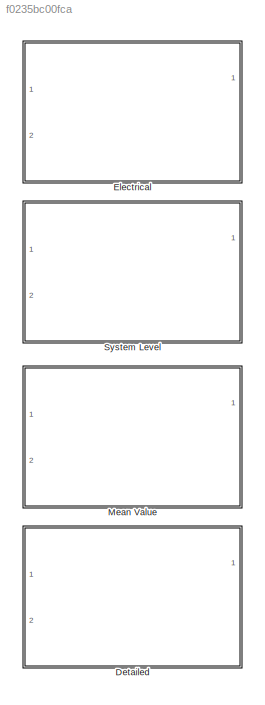
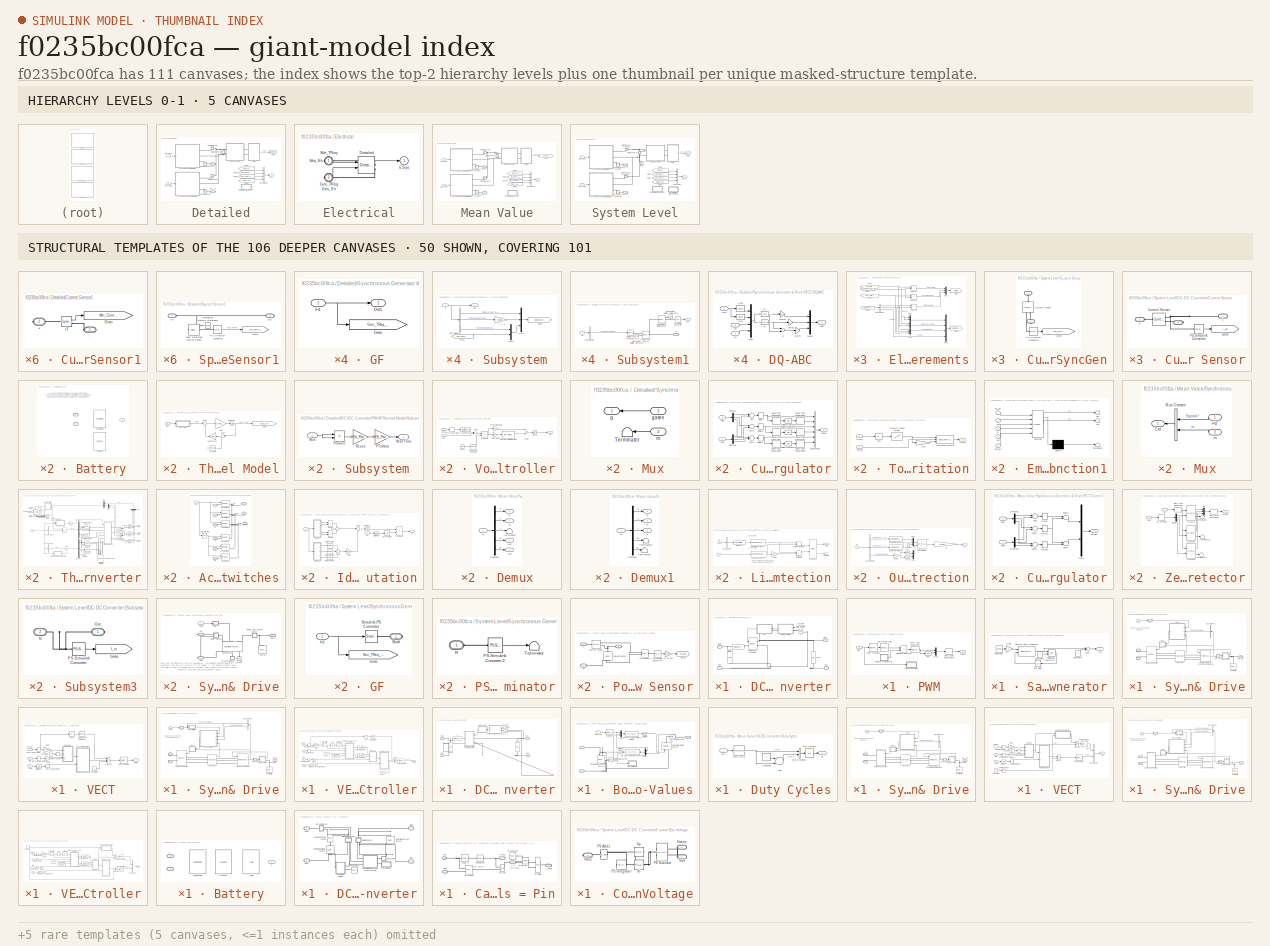
[diagram: thumbnail index - top-2 hierarchy levels (5 canvases) + 50 structural-template representatives of the remaining 106 canvases]
MODEL slx_f0235bc00fca
KIND library
CONFIG AbsTol = auto
CONFIG EnableMultiTasking = off
CONFIG FixedStep = auto
CONFIG MaxStep = 1e-3
CONFIG MinStep = auto
CONFIG RelTol = 1e-3
CONFIG SampleTimeConstraint = Unconstrained
CONFIG Solver = ode23t
CONFIG SolverName = ode23t
CONFIG StartTime = 0.0
CONFIG StopTime = 10.0
BLOCK [SubSystem] Detailed
  Ports = [2, 1, 0, 0, 0, 0, 2]
  RequestExecContextInheritance = off
  ShowPortLabels = none
BLOCK [SubSystem] Detailed/Battery
  LabelModeActiveChoice = Predefined
  Ports = [0, 1, 0, 0, 0, 2]
  RequestExecContextInheritance = off
  Variant = on
  VariantControlMode = Label
BLOCK [PMIOPort] Detailed/Battery/+
  Side = Left
  Tag = PMCPort
BLOCK [PMIOPort] Detailed/Battery/-
  Port = 2
  Side = Left
  Tag = PMCPort
BLOCK [Reference] Detailed/Battery/Generic  REF=HEV_Battery_Det_Lib/Generic
  Ports = [0, 1, 0, 0, 0, 2]
  SourceBlock = HEV_Battery_Det_Lib/Generic
BLOCK [Reference] Detailed/Battery/Predefined  REF=HEV_Battery_Det_Lib/Predefined
  Ports = [0, 1, 0, 0, 0, 2]
  SourceBlock = HEV_Battery_Det_Lib/Predefined
BLOCK [Outport] Detailed/Battery/S
  IconDisplay = Port number
BLOCK [BusCreator] Detailed/Bus Creator
  DisplayOption = bar
  InheritFromInputs = on
  Inputs = 'Batt','Mot_RPM','Gen_RPM','DCDC_Temp'
  Ports = [4, 1]
BLOCK [SubSystem] Detailed/Current Sensor1
  Ports = [0, 0, 0, 0, 0, 1, 1]
  RequestExecContextInheritance = off
BLOCK [PMIOPort] Detailed/Current Sensor1/+
  Port = 2
  Side = Right
  Tag = PMCPort
BLOCK [PMIOPort] Detailed/Current Sensor1/-
  Side = Left
BLOCK [Goto] Detailed/Current Sensor1/Goto
  GotoTag = Mot_Current_SYS
  TagVisibility = global
BLOCK [Reference] Detailed/Current Sensor1/i1  REF=powerlib/Measurements/Current Measurement
  Ports = [0, 1, 0, 0, 0, 1, 1]
  SourceBlock = powerlib/Measurements/Current Measurement
  SourceProductBaseCode = PS
  SourceProductName = Simscape Electrical
  SourceType = Current Measurement
BLOCK [SubSystem] Detailed/Current Sensor2
  Ports = [0, 0, 0, 0, 0, 1, 1]
  RequestExecContextInheritance = off
BLOCK [PMIOPort] Detailed/Current Sensor2/+
  Side = Right
BLOCK [PMIOPort] Detailed/Current Sensor2/-
  Port = 2
  Side = Left
BLOCK [Goto] Detailed/Current Sensor2/Goto
  GotoTag = Gen_Current_SYS
  TagVisibility = global
BLOCK [Reference] Detailed/Current Sensor2/i1  REF=powerlib/Measurements/Current Measurement
  Ports = [0, 1, 0, 0, 0, 1, 1]
  SourceBlock = powerlib/Measurements/Current Measurement
  SourceProductBaseCode = PS
  SourceProductName = Simscape Electrical
  SourceType = Current Measurement
BLOCK [SubSystem] Detailed/DC//DC Converter
  Ports = [0, 0, 0, 0, 0, 2, 2]
  RequestExecContextInheritance = off
  ShowPortLabels = FromPortBlockName
BLOCK [PMIOPort] Detailed/DC//DC Converter/Batt+
  Port = 3
  Side = Left
  Tag = PMCPort
BLOCK [PMIOPort] Detailed/DC//DC Converter/Batt-
  Port = 4
  Side = Left
  Tag = PMCPort
BLOCK [PMIOPort] Detailed/DC//DC Converter/Bus+
  Side = Right
  Tag = PMCPort
BLOCK [PMIOPort] Detailed/DC//DC Converter/Bus-
  Port = 2
  Side = Right
  Tag = PMCPort
BLOCK [Reference] Detailed/DC//DC Converter/CBus  REF=powerlib/Elements/Series RLC Branch
  Ports = [0, 0, 0, 0, 0, 1, 1]
  SourceBlock = powerlib/Elements/Series RLC Branch
  SourceProductBaseCode = PS
  SourceProductName = Simscape Electrical
  SourceType = Series RLC Branch
BLOCK [Reference] Detailed/DC//DC Converter/CBus1  REF=powerlib/Elements/Series RLC Branch
  Ports = [0, 0, 0, 0, 0, 1, 1]
  SourceBlock = powerlib/Elements/Series RLC Branch
  SourceProductBaseCode = PS
  SourceProductName = Simscape Electrical
  SourceType = Series RLC Branch
BLOCK [Reference] Detailed/DC//DC Converter/Detailed Boost converter  REF=powerlib/Power
Electronics/Universal Bridge
  Ports = [1, 0, 0, 0, 0, 1, 2]
  SourceBlock = powerlib/Power\nElectronics/Universal Bridge
  SourceProductBaseCode = PS
  SourceProductName = Simscape Electrical
  SourceType = Universal Bridge
BLOCK [Reference] Detailed/DC//DC Converter/L  REF=powerlib/Elements/Series RLC Branch
  Ports = [0, 0, 0, 0, 0, 1, 1]
  SourceBlock = powerlib/Elements/Series RLC Branch
  SourceProductBaseCode = PS
  SourceProductName = Simscape Electrical
  SourceType = Series RLC Branch
BLOCK [SubSystem] Detailed/DC//DC Converter/PWM
  Ports = [1, 1]
  RequestExecContextInheritance = off
BLOCK [DataTypeConversion] Detailed/DC//DC Converter/PWM/Data Type Conversion
BLOCK [DataTypeConversion] Detailed/DC//DC Converter/PWM/Data Type Conversion1
BLOCK [Mux] Detailed/DC//DC Converter/PWM/Mux
  DisplayOption = bar
  Inputs = 2
  Ports = [2, 1]
BLOCK [Logic] Detailed/DC//DC Converter/PWM/NOT
  AllPortsSameDT = off
  Inputs = 1
  Operator = NOT
  OutDataTypeStr = uint(8)
  Ports = [1, 1]
BLOCK [Outport] Detailed/DC//DC Converter/PWM/Pulses
  IconDisplay = Port number
BLOCK [RateTransition] Detailed/DC//DC Converter/PWM/Rate Transition
BLOCK [Inport] Detailed/DC//DC Converter/PWM/Ref.
  IconDisplay = Port number
BLOCK [RelationalOperator] Detailed/DC//DC Converter/PWM/Relational Operator
  InputSameDT = off
  Operator = >
  Ports = [2, 1]
BLOCK [SubSystem] Detailed/DC//DC Converter/PWM/Sawtooth generator
  Ports = [0, 1]
  RequestExecContextInheritance = off
BLOCK [Gain] Detailed/DC//DC Converter/PWM/Sawtooth generator/1\ib3
  Gain = 2
BLOCK [Constant] Detailed/DC//DC Converter/PWM/Sawtooth generator/Constant1
  Value = 20000
BLOCK [Constant] Detailed/DC//DC Converter/PWM/Sawtooth generator/Constant2
  Value = 2
BLOCK [Constant] Detailed/DC//DC Converter/PWM/Sawtooth generator/Constant3
BLOCK [DiscreteIntegrator] Detailed/DC//DC Converter/PWM/Sawtooth generator/Discrete-Time Integrator
  ExternalReset = rising
  ICPrevOutput = DiscIntNeverNeededParam
  ICPrevScaledInput = DiscIntNeverNeededParam
  IntegratorMethod = Integration: Trapezoidal
  LowerSaturationLimit = -1.5
  Ports = [2, 1]
  SampleTime = Ts
  UpperSaturationLimit = 1.5
BLOCK [Outport] Detailed/DC//DC Converter/PWM/Sawtooth generator/Out
  IconDisplay = Port number
BLOCK [RelationalOperator] Detailed/DC//DC Converter/PWM/Sawtooth generator/Relational Operator1
  InputSameDT = off
  Ports = [2, 1]
BLOCK [Sum] Detailed/DC//DC Converter/PWM/Sawtooth generator/Sum1
  Inputs = +-
  Ports = [2, 1]
BLOCK [UnitDelay] Detailed/DC//DC Converter/PWM/Sawtooth generator/Unit Delay
  HasFrameUpgradeWarning = on
  SampleTime = Ts
BLOCK [SubSystem] Detailed/DC//DC Converter/PWM/Thermal Model
  Ports = [1]
  RequestExecContextInheritance = off
BLOCK [Gain] Detailed/DC//DC Converter/PWM/Thermal Model/1//Mc
  Gain = 1/(HEV_Param.DCDCConv.Thermal_Mass*HEV_Param.DCDCConv.Specific_Heat)
BLOCK [Constant] Detailed/DC//DC Converter/PWM/Thermal Model/Air_Temp
  Value = HEV_Param.DCDCConv.Air_Temperature-273
BLOCK [Goto] Detailed/DC//DC Converter/PWM/Thermal Model/Goto
  GotoTag = DCDC_SYS
  TagVisibility = global
BLOCK [Gain] Detailed/DC//DC Converter/PWM/Thermal Model/Heat Losses
  Gain = HEV_Param.DCDCConv.Convection.Area/HEV_Param.DCDCConv.Convection.HT_Coefficient
BLOCK [Inport] Detailed/DC//DC Converter/PWM/Thermal Model/IBus
  IconDisplay = Port number
BLOCK [Integrator] Detailed/DC//DC Converter/PWM/Thermal Model/Integrator
  InitialCondition = HEV_Param.DCDCConv.Initial_Temperature
  Ports = [1, 1]
BLOCK [SubSystem] Detailed/DC//DC Converter/PWM/Thermal Model/Subsystem
  Ports = [1, 1]
  RequestExecContextInheritance = off
BLOCK [Outport] Detailed/DC//DC Converter/PWM/Thermal Model/Subsystem/Heat Flow
  IconDisplay = Port number
BLOCK [Inport] Detailed/DC//DC Converter/PWM/Thermal Model/Subsystem/IBus
  IconDisplay = Port number
BLOCK [Gain] Detailed/DC//DC Converter/PWM/Thermal Model/Subsystem/PToHeat
  Gain = HEV_Param.DCDCConv.EPower2Heat
BLOCK [Product] Detailed/DC//DC Converter/PWM/Thermal Model/Subsystem/Product
  InputSameDT = off
  OutDataTypeStr = Inherit: Inherit via internal rule
  Ports = [2, 1]
  SaturateOnIntegerOverflow = off
BLOCK [Gain] Detailed/DC//DC Converter/PWM/Thermal Model/Subsystem/RLoss
  Gain = HEV_Param.DCDCConv.Resistance_Losses
BLOCK [Sum] Detailed/DC//DC Converter/PWM/Thermal Model/Sum1
  IconShape = round
  Inputs = |+-
  Ports = [2, 1]
BLOCK [Sum] Detailed/DC//DC Converter/PWM/Thermal Model/Sum2
  IconShape = round
  Inputs = |+-
  Ports = [2, 1]
BLOCK [ZeroOrderHold] Detailed/DC//DC Converter/PWM/Zero-Order Hold
  SampleTime = Ts
BLOCK [Constant] Detailed/DC//DC Converter/Ubus Ref
  Value = HEV_Param.DCDCConv.Output_Voltage
BLOCK [Reference] Detailed/DC//DC Converter/V1  REF=powerlib/Measurements/Voltage Measurement
  Ports = [0, 1, 0, 0, 0, 2]
  SourceBlock = powerlib/Measurements/Voltage Measurement
  SourceProductBaseCode = PS
  SourceProductName = Simscape Electrical
  SourceType = Voltage Measurement
BLOCK [SubSystem] Detailed/DC//DC Converter/Voltage Controller
  Ports = [2, 1]
  RequestExecContextInheritance = off
BLOCK [Clock] Detailed/DC//DC Converter/Voltage Controller/Clock1
BLOCK [Reference] Detailed/DC//DC Converter/Voltage Controller/Compare To Constant1  REF=simulink/Logic and Bit
Operations/Compare
To Constant
  Ports = [1, 1]
  SourceBlock = simulink/Logic and Bit\nOperations/Compare\nTo Constant
  SourceProductBaseCode = SL
  SourceProductName = Simulink
  SourceType = Compare To Constant
BLOCK [Saturate] Detailed/DC//DC Converter/Voltage Controller/Ctrl sat.
  InputPortMap = u0
  LowerLimit = -0.95
  Ports = [1, 1]
  UpperLimit = 0.95
BLOCK [DiscreteIntegrator] Detailed/DC//DC Converter/Voltage Controller/Discrete-Time Integrator
  ICPrevOutput = DiscIntNeverNeededParam
  ICPrevScaledInput = DiscIntNeverNeededParam
  IntegratorMethod = Integration: Trapezoidal
  LimitOutput = on
  LowerSaturationLimit = -1
  Ports = [1, 1]
  SampleTime = Ts
  UpperSaturationLimit = 1
BLOCK [Outport] Detailed/DC//DC Converter/Voltage Controller/Ec
  IconDisplay = Port number
  InitialOutput = 0
BLOCK [Gain] Detailed/DC//DC Converter/Voltage Controller/Integral gain
  Gain = Ki
BLOCK [Product] Detailed/DC//DC Converter/Voltage Controller/Product1
  InputSameDT = off
  OutDataTypeStr = Inherit: Inherit via internal rule
  Ports = [2, 1]
  SaturateOnIntegerOverflow = off
BLOCK [Gain] Detailed/DC//DC Converter/Voltage Controller/Proportional gain
  Gain = Kp
BLOCK [Sum] Detailed/DC//DC Converter/Voltage Controller/Sum1
  Inputs = +-
  Ports = [2, 1]
BLOCK [Sum] Detailed/DC//DC Converter/Voltage Controller/Sum2
  Ports = [2, 1]
BLOCK [TransferFcn] Detailed/DC//DC Converter/Voltage Controller/Transfer Fcn
  Denominator = [.0001 1]
BLOCK [Inport] Detailed/DC//DC Converter/Voltage Controller/UBus
  IconDisplay = Port number
  Port = 2
BLOCK [Inport] Detailed/DC//DC Converter/Voltage Controller/Uref
  IconDisplay = Port number
BLOCK [ZeroOrderHold] Detailed/DC//DC Converter/Voltage Controller/Zero-Order Hold1
  SampleTime = Ts
BLOCK [Outport] Detailed/ESys
  IconDisplay = Port number
BLOCK [SubSystem] Detailed/Electrical Measurements
  Ports = []
  RequestExecContextInheritance = off
BLOCK [BusSelector] Detailed/Electrical Measurements/Bus Selector
  OutputAsBus = off
  OutputSignals = Voltage (V),Current (A),SOC (%)
  Ports = [1, 3]
BLOCK [From] Detailed/Electrical Measurements/From
  GotoTag = DC_Bus_SYS
  TagVisibility = global
BLOCK [From] Detailed/Electrical Measurements/From1
  GotoTag = Batt_Measures
  TagVisibility = global
BLOCK [From] Detailed/Electrical Measurements/From2
  GotoTag = Mot_Current_SYS
  TagVisibility = global
BLOCK [From] Detailed/Electrical Measurements/From3
  GotoTag = Gen_Current_SYS
  TagVisibility = global
BLOCK [Goto] Detailed/Electrical Measurements/Goto
  GotoTag = Power
  TagVisibility = global
BLOCK [Goto] Detailed/Electrical Measurements/Goto1
  GotoTag = Electricals
  TagVisibility = global
BLOCK [Mux] Detailed/Electrical Measurements/Mux
  DisplayOption = bar
  Inputs = 2
  Ports = [2, 1]
BLOCK [Mux] Detailed/Electrical Measurements/Mux1
  DisplayOption = bar
  Inputs = 3
  Ports = [3, 1]
BLOCK [Mux] Detailed/Electrical Measurements/Mux2
  DisplayOption = bar
  Inputs = 3
  Ports = [3, 1]
BLOCK [Mux] Detailed/Electrical Measurements/Mux3
  DisplayOption = bar
  Ports = [4, 1]
BLOCK [Mux] Detailed/Electrical Measurements/Mux4
  DisplayOption = bar
  Inputs = 2
  Ports = [2, 1]
BLOCK [Product] Detailed/Electrical Measurements/Product1
  InputSameDT = off
  OutDataTypeStr = Inherit: Inherit via internal rule
  Ports = [2, 1]
  SaturateOnIntegerOverflow = off
BLOCK [Product] Detailed/Electrical Measurements/Product2
  InputSameDT = off
  OutDataTypeStr = Inherit: Inherit via internal rule
  Ports = [2, 1]
  SaturateOnIntegerOverflow = off
BLOCK [Product] Detailed/Electrical Measurements/Product3
  InputSameDT = off
  OutDataTypeStr = Inherit: Inherit via internal rule
  Ports = [2, 1]
  SaturateOnIntegerOverflow = off
BLOCK [From] Detailed/From1
  GotoTag = Gen_RPM_SYS
  TagVisibility = global
BLOCK [From] Detailed/From2
  GotoTag = Batt_SYS
  TagVisibility = global
BLOCK [From] Detailed/From3
  GotoTag = Mot_RPM_SYS
  TagVisibility = global
BLOCK [From] Detailed/From4
  GotoTag = DCDC_SYS
  TagVisibility = global
BLOCK [PMIOPort] Detailed/Gen_Sh
  Port = 2
  Side = Right
BLOCK [Inport] Detailed/Gen_TReq
  IconDisplay = Port number
  Port = 2
BLOCK [Goto] Detailed/Goto1
  GotoTag = Batt_SYS
  TagVisibility = global
BLOCK [PMIOPort] Detailed/Mot_Sh
  Side = Right
BLOCK [Inport] Detailed/Mot_TReq
  IconDisplay = Port number
BLOCK [SubSystem] Detailed/Speed Sensor1
  Ports = [0, 0, 0, 0, 0, 1, 1]
  RequestExecContextInheritance = off
BLOCK [Goto] Detailed/Speed Sensor1/Goto1
  GotoTag = Mot_RPM_SYS
  TagVisibility = global
BLOCK [Reference] Detailed/Speed Sensor1/Ideal Rotational Motion Sensor  REF=fl_lib/Mechanical/Mechanical Sensors/Ideal Rotational
Motion Sensor
  Ports = [0, 0, 0, 0, 0, 1, 3]
  SourceBlock = fl_lib/Mechanical/Mechanical Sensors/Ideal Rotational\nMotion Sensor
  SourceProductBaseCode = SS
  SourceProductName = Simscape
  SourceType = Ideal Rotational\nMotion Sensor
BLOCK [Reference] Detailed/Speed Sensor1/Mechanical Rotational Reference  REF=fl_lib/Mechanical/Rotational Elements/Mechanical
Rotational Reference
  Ports = [0, 0, 0, 0, 0, 1]
  SourceBlock = fl_lib/Mechanical/Rotational Elements/Mechanical\nRotational Reference
  SourceProductBaseCode = SS
  SourceProductName = Simscape
  SourceType = Mechanical\nRotational Reference
BLOCK [Reference] Detailed/Speed Sensor1/PS-Simulink Converter  REF=nesl_utility/PS-Simulink
Converter
  Ports = [0, 1, 0, 0, 0, 1]
  SourceBlock = nesl_utility/PS-Simulink\nConverter
  SourceProductBaseCode = SS
  SourceProductName = Simscape
  SourceType = PS-Simulink\nConverter
BLOCK [PMIOPort] Detailed/Speed Sensor1/Sh
  Side = Left
BLOCK [PMIOPort] Detailed/Speed Sensor1/Sh1
  Port = 2
  Side = Right
BLOCK [SubSystem] Detailed/Speed Sensor2
  Ports = [0, 0, 0, 0, 0, 1, 1]
  RequestExecContextInheritance = off
BLOCK [Goto] Detailed/Speed Sensor2/Goto1
  GotoTag = Gen_RPM_SYS
  TagVisibility = global
BLOCK [Reference] Detailed/Speed Sensor2/Ideal Rotational Motion Sensor  REF=fl_lib/Mechanical/Mechanical Sensors/Ideal Rotational
Motion Sensor
  Ports = [0, 0, 0, 0, 0, 1, 3]
  SourceBlock = fl_lib/Mechanical/Mechanical Sensors/Ideal Rotational\nMotion Sensor
  SourceProductBaseCode = SS
  SourceProductName = Simscape
  SourceType = Ideal Rotational\nMotion Sensor
BLOCK [Reference] Detailed/Speed Sensor2/Mechanical Rotational Reference  REF=fl_lib/Mechanical/Rotational Elements/Mechanical
Rotational Reference
  Ports = [0, 0, 0, 0, 0, 1]
  SourceBlock = fl_lib/Mechanical/Rotational Elements/Mechanical\nRotational Reference
  SourceProductBaseCode = SS
  SourceProductName = Simscape
  SourceType = Mechanical\nRotational Reference
BLOCK [Reference] Detailed/Speed Sensor2/PS-Simulink Converter  REF=nesl_utility/PS-Simulink
Converter
  Ports = [0, 1, 0, 0, 0, 1]
  SourceBlock = nesl_utility/PS-Simulink\nConverter
  SourceProductBaseCode = SS
  SourceProductName = Simscape
  SourceType = PS-Simulink\nConverter
BLOCK [PMIOPort] Detailed/Speed Sensor2/Sh
  Side = Left
BLOCK [PMIOPort] Detailed/Speed Sensor2/Sh1
  Port = 2
  Side = Right
BLOCK [SubSystem] Detailed/Synchronous Generator & Drive
  Ports = [1, 0, 0, 0, 0, 0, 3]
  RequestExecContextInheritance = off
BLOCK [PMIOPort] Detailed/Synchronous Generator & Drive/+
  Side = Right
BLOCK [PMIOPort] Detailed/Synchronous Generator & Drive/-
  Port = 2
  Side = Right
BLOCK [BusSelector] Detailed/Synchronous Generator & Drive/Bus Selector
  OutputAsBus = off
  OutputSignals = Rotor angle thetam (rad)
  Ports = [1, 1]
BLOCK [SubSystem] Detailed/Synchronous Generator & Drive/GF
  Ports = [1, 1]
  RequestExecContextInheritance = off
BLOCK [Goto] Detailed/Synchronous Generator & Drive/GF/Goto
  GotoTag = Gen_TReq_SYS
  TagVisibility = global
BLOCK [Inport] Detailed/Synchronous Generator & Drive/GF/In1
  IconDisplay = Port number
BLOCK [Outport] Detailed/Synchronous Generator & Drive/GF/Out1
  IconDisplay = Port number
BLOCK [PMIOPort] Detailed/Synchronous Generator & Drive/Gen_Sh
  Port = 3
  Side = Right
BLOCK [Reference] Detailed/Synchronous Generator & Drive/Measures  REF=electricdrivelib/AC drives/PM Synchronous Motor Drive/Measures
  Ports = [0, 1, 0, 0, 0, 3, 3]
  SourceBlock = electricdrivelib/AC drives/PM Synchronous Motor Drive/Measures
  SourceProductBaseCode = PS
  SourceProductName = Simscape Electrical
  SourceType = SubSystem
BLOCK [SubSystem] Detailed/Synchronous Generator & Drive/Mux
  Ports = [2, 1]
  RequestExecContextInheritance = off
BLOCK [Terminator] Detailed/Synchronous Generator & Drive/Mux/Terminator
BLOCK [Outport] Detailed/Synchronous Generator & Drive/Mux/g
  IconDisplay = Port number
BLOCK [Inport] Detailed/Synchronous Generator & Drive/Mux/gates
  IconDisplay = Port number
BLOCK [Inport] Detailed/Synchronous Generator & Drive/Mux/m
  IconDisplay = Port number
  Port = 2
BLOCK [Reference] Detailed/Synchronous Generator & Drive/Permanent Magnet Synchronous Machine  REF=powerlib/Machines/Permanent Magnet
Synchronous Machine
  AttributesFormatString = \n
  Ports = [1, 1, 0, 0, 0, 3]
  SourceBlock = powerlib/Machines/Permanent Magnet\nSynchronous Machine
  SourceProductBaseCode = PS
  SourceProductName = Simscape Electrical
  SourceType = Permanent Magnet Synchronous Machine
BLOCK [Reference] Detailed/Synchronous Generator & Drive/Shaft Inertia  REF=fl_lib/Mechanical/Rotational Elements/Inertia
  Ports = [0, 0, 0, 0, 0, 1]
  SourceBlock = fl_lib/Mechanical/Rotational Elements/Inertia
  SourceProductBaseCode = SS
  SourceProductName = Simscape
  SourceType = Inertia
BLOCK [SubSystem] Detailed/Synchronous Generator & Drive/Subsystem
  Ports = [1, 1]
  RequestExecContextInheritance = off
BLOCK [Gain] Detailed/Synchronous Generator & Drive/Subsystem/+ -> -1
  Gain = 30/pi
  OutDataTypeStr = Inherit: Inherit via internal rule
  ParamDataTypeStr = Inherit: Inherit via internal rule
  SaturateOnIntegerOverflow = off
BLOCK [BusSelector] Detailed/Synchronous Generator & Drive/Subsystem/Bus Selector
  OutputAsBus = off
  OutputSignals = Stator current is_a (A),Rotor speed wm (rad/s),Electromagnetic torque Te (N*m)
  Ports = [1, 3]
BLOCK [From] Detailed/Synchronous Generator & Drive/Subsystem/From
  GotoTag = Gen_TReq_SYS
  TagVisibility = global
BLOCK [Goto] Detailed/Synchronous Generator & Drive/Subsystem/Goto
  GotoTag = GeneratorDrive
  TagVisibility = global
BLOCK [Inport] Detailed/Synchronous Generator & Drive/Subsystem/In
  IconDisplay = Port number
BLOCK [Mux] Detailed/Synchronous Generator & Drive/Subsystem/Mux1
  DisplayOption = bar
  Inputs = 2
  Ports = [2, 1]
BLOCK [Mux] Detailed/Synchronous Generator & Drive/Subsystem/Mux2
  DisplayOption = bar
  Inputs = 3
  Ports = [3, 1]
BLOCK [Outport] Detailed/Synchronous Generator & Drive/Subsystem/Out
  IconDisplay = Port number
BLOCK [SubSystem] Detailed/Synchronous Generator & Drive/Subsystem1
  Ports = [1, 1, 0, 0, 0, 0, 1]
  RequestExecContextInheritance = off
BLOCK [BusSelector] Detailed/Synchronous Generator & Drive/Subsystem1/Bus Selector
  OutputAsBus = off
  OutputSignals = Electromagnetic torque Te (N*m)
  Ports = [1, 1]
BLOCK [Reference] Detailed/Synchronous Generator & Drive/Subsystem1/Ideal Rotational Motion Sensor  REF=fl_lib/Mechanical/Mechanical Sensors/Ideal Rotational
Motion Sensor
  Ports = [0, 0, 0, 0, 0, 1, 3]
  SourceBlock = fl_lib/Mechanical/Mechanical Sensors/Ideal Rotational\nMotion Sensor
  SourceProductBaseCode = SS
  SourceProductName = Simscape
  SourceType = Ideal Rotational\nMotion Sensor
BLOCK [Reference] Detailed/Synchronous Generator & Drive/Subsystem1/Ideal Torque Source  REF=fl_lib/Mechanical/Mechanical Sources/Ideal Torque Source
  Ports = [0, 0, 0, 0, 0, 1, 2]
  SourceBlock = fl_lib/Mechanical/Mechanical Sources/Ideal Torque Source
  SourceProductBaseCode = SS
  SourceProductName = Simscape
  SourceType = Ideal Torque Source
BLOCK [Reference] Detailed/Synchronous Generator & Drive/Subsystem1/Mechanical Rotational Reference  REF=fl_lib/Mechanical/Rotational Elements/Mechanical
Rotational Reference
  Ports = [0, 0, 0, 0, 0, 1]
  SourceBlock = fl_lib/Mechanical/Rotational Elements/Mechanical\nRotational Reference
  SourceProductBaseCode = SS
  SourceProductName = Simscape
  SourceType = Mechanical\nRotational Reference
BLOCK [Reference] Detailed/Synchronous Generator & Drive/Subsystem1/Mechanical Rotational Reference1  REF=fl_lib/Mechanical/Rotational Elements/Mechanical
Rotational Reference
  Ports = [0, 0, 0, 0, 0, 1]
  SourceBlock = fl_lib/Mechanical/Rotational Elements/Mechanical\nRotational Reference
  SourceProductBaseCode = SS
  SourceProductName = Simscape
  SourceType = Mechanical\nRotational Reference
BLOCK [Reference] Detailed/Synchronous Generator & Drive/Subsystem1/PS-Simulink Converter  REF=nesl_utility/PS-Simulink
Converter
  Ports = [0, 1, 0, 0, 0, 1]
  SourceBlock = nesl_utility/PS-Simulink\nConverter
  SourceProductBaseCode = SS
  SourceProductName = Simscape
  SourceType = PS-Simulink\nConverter
BLOCK [PMIOPort] Detailed/Synchronous Generator & Drive/Subsystem1/Sh
  Side = Right
BLOCK [Inport] Detailed/Synchronous Generator & Drive/Subsystem1/Sig
  IconDisplay = Port number
BLOCK [Reference] Detailed/Synchronous Generator & Drive/Subsystem1/Simulink-PS Converter  REF=nesl_utility/Simulink-PS
Converter
  Ports = [1, 0, 0, 0, 0, 0, 1]
  SourceBlock = nesl_utility/Simulink-PS\nConverter
  SourceProductBaseCode = SS
  SourceProductName = Simscape
  SourceType = Simulink-PS\nConverter
BLOCK [Outport] Detailed/Synchronous Generator & Drive/Subsystem1/Spd
  IconDisplay = Port number
BLOCK [Inport] Detailed/Synchronous Generator & Drive/TReq
  IconDisplay = Port number
BLOCK [Reference] Detailed/Synchronous Generator & Drive/Three-phase Inverter  REF=powerlib/Power
Electronics/Universal Bridge
  Ports = [1, 0, 0, 0, 0, 3, 2]
  SourceBlock = powerlib/Power\nElectronics/Universal Bridge
  SourceProductBaseCode = PS
  SourceProductName = Simscape Electrical
  SourceType = Universal Bridge
BLOCK [SubSystem] Detailed/Synchronous Generator & Drive/VECT
  Ports = [3, 1]
  RequestExecContextInheritance = off
BLOCK [Abs] Detailed/Synchronous Generator & Drive/VECT/Abs1
  SaturateOnIntegerOverflow = off
BLOCK [Reference] Detailed/Synchronous Generator & Drive/VECT/Compare To Constant  REF=simulink/Logic and Bit
Operations/Compare
To Constant
  Ports = [1, 1]
  SourceBlock = simulink/Logic and Bit\nOperations/Compare\nTo Constant
  SourceProductBaseCode = SL
  SourceProductName = Simulink
  SourceType = Compare To Constant
BLOCK [Constant] Detailed/Synchronous Generator & Drive/VECT/Constant1
  Value = 0
BLOCK [Constant] Detailed/Synchronous Generator & Drive/VECT/Constant2
BLOCK [SubSystem] Detailed/Synchronous Generator & Drive/VECT/Current Regulator
  Ports = [2, 1]
  RequestExecContextInheritance = off
BLOCK [BusCreator] Detailed/Synchronous Generator & Drive/VECT/Current Regulator/BusCreator
  InheritFromInputs = on
  Inputs = 6
  Ports = [6, 1]
BLOCK [DataTypeConversion] Detailed/Synchronous Generator & Drive/VECT/Current Regulator/Data Type Conversion
BLOCK [DataTypeConversion] Detailed/Synchronous Generator & Drive/VECT/Current Regulator/Data Type Conversion1
BLOCK [DataTypeConversion] Detailed/Synchronous Generator & Drive/VECT/Current Regulator/Data Type Conversion2
BLOCK [DataTypeConversion] Detailed/Synchronous Generator & Drive/VECT/Current Regulator/Data Type Conversion3
BLOCK [DataTypeConversion] Detailed/Synchronous Generator & Drive/VECT/Current Regulator/Data Type Conversion4
BLOCK [DataTypeConversion] Detailed/Synchronous Generator & Drive/VECT/Current Regulator/Data Type Conversion5
BLOCK [Demux] Detailed/Synchronous Generator & Drive/VECT/Current Regulator/Demux1
  Outputs = 3
  Ports = [1, 3]
BLOCK [Demux] Detailed/Synchronous Generator & Drive/VECT/Current Regulator/Demux2
  Outputs = 3
  Ports = [1, 3]
BLOCK [Inport] Detailed/Synchronous Generator & Drive/VECT/Current Regulator/Iabc
  IconDisplay = Port number
  Port = 2
BLOCK [Inport] Detailed/Synchronous Generator & Drive/VECT/Current Regulator/Iabc*
  IconDisplay = Port number
BLOCK [Logic] Detailed/Synchronous Generator & Drive/VECT/Current Regulator/Logical Operator
  Operator = NOT
  Ports = [1, 1]
BLOCK [Logic] Detailed/Synchronous Generator & Drive/VECT/Current Regulator/Logical Operator1
  Operator = NOT
  Ports = [1, 1]
BLOCK [Logic] Detailed/Synchronous Generator & Drive/VECT/Current Regulator/Logical Operator2
  Operator = NOT
  Ports = [1, 1]
BLOCK [Outport] Detailed/Synchronous Generator & Drive/VECT/Current Regulator/Pulses
  IconDisplay = Port number
  InitialOutput = 0
BLOCK [Relay] Detailed/Synchronous Generator & Drive/VECT/Current Regulator/Relay
  OffSwitchValue = -h/2
  OnSwitchValue = h/2
BLOCK [Relay] Detailed/Synchronous Generator & Drive/VECT/Current Regulator/Relay1
  OffSwitchValue = -h/2
  OnSwitchValue = h/2
BLOCK [Relay] Detailed/Synchronous Generator & Drive/VECT/Current Regulator/Relay2
  OffSwitchValue = -h/2
  OnSwitchValue = h/2
BLOCK [Sum] Detailed/Synchronous Generator & Drive/VECT/Current Regulator/Sum
  Inputs = -+
  Ports = [2, 1]
BLOCK [Sum] Detailed/Synchronous Generator & Drive/VECT/Current Regulator/Sum1
  Inputs = -+
  Ports = [2, 1]
BLOCK [Sum] Detailed/Synchronous Generator & Drive/VECT/Current Regulator/Sum2
  Inputs = -+
  Ports = [2, 1]
BLOCK [SubSystem] Detailed/Synchronous Generator & Drive/VECT/DQ-ABC
  Ports = [3, 1]
  RequestExecContextInheritance = off
BLOCK [Fcn] Detailed/Synchronous Generator & Drive/VECT/DQ-ABC/Fcn
  Expr = sin(u)
BLOCK [Fcn] Detailed/Synchronous Generator & Drive/VECT/DQ-ABC/Fcn1
  Expr = cos(u)
BLOCK [Gain] Detailed/Synchronous Generator & Drive/VECT/DQ-ABC/Gain2
BLOCK [Gain] Detailed/Synchronous Generator & Drive/VECT/DQ-ABC/Gain3
BLOCK [Gain] Detailed/Synchronous Generator & Drive/VECT/DQ-ABC/Gain4
BLOCK [Outport] Detailed/Synchronous Generator & Drive/VECT/DQ-ABC/Iabc*
  IconDisplay = Port number
  InitialOutput = 0
BLOCK [Inport] Detailed/Synchronous Generator & Drive/VECT/DQ-ABC/Id* 
  IconDisplay = Port number
  Port = 2
BLOCK [Inport] Detailed/Synchronous Generator & Drive/VECT/DQ-ABC/Iq* 
  IconDisplay = Port number
BLOCK [Mux] Detailed/Synchronous Generator & Drive/VECT/DQ-ABC/Mux
  Ports = [4, 1]
BLOCK [Mux] Detailed/Synchronous Generator & Drive/VECT/DQ-ABC/Mux2
  Inputs = 3
  Ports = [3, 1]
BLOCK [Inport] Detailed/Synchronous Generator & Drive/VECT/DQ-ABC/Teta
  IconDisplay = Port number
  Port = 3
BLOCK [Fcn] Detailed/Synchronous Generator & Drive/VECT/DQ-ABC/ia
  Expr = -u[3]*u[2] + u[4]*u[1]
BLOCK [Fcn] Detailed/Synchronous Generator & Drive/VECT/DQ-ABC/ib
  Expr = (-u[1]+1.7320508*u[2])*u[4]*0.5+(u[2]+1.7320508*u[1])*u[3]*0.5
BLOCK [Sum] Detailed/Synchronous Generator & Drive/VECT/DQ-ABC/ic
  Inputs = --
  Ports = [2, 1]
BLOCK [Gain] Detailed/Synchronous Generator & Drive/VECT/Gain1
  Gain = nb_p
BLOCK [Inport] Detailed/Synchronous Generator & Drive/VECT/I_abc
  IconDisplay = Port number
  Port = 3
BLOCK [Product] Detailed/Synchronous Generator & Drive/VECT/Product
  InputSameDT = off
  Inputs = 3
  OutDataTypeStr = Inherit: Inherit via internal rule
  Ports = [3, 1]
  SaturateOnIntegerOverflow = off
BLOCK [RateTransition] Detailed/Synchronous Generator & Drive/VECT/Rate Transition2
BLOCK [Inport] Detailed/Synchronous Generator & Drive/VECT/Torque*
  IconDisplay = Port number
BLOCK [UnitDelay] Detailed/Synchronous Generator & Drive/VECT/Unit Delay2
  HasFrameUpgradeWarning = on
  SampleTime = -1
BLOCK [ZeroOrderHold] Detailed/Synchronous Generator & Drive/VECT/Zero-Order Hold1
  SampleTime = Ts_vect
BLOCK [ZeroOrderHold] Detailed/Synchronous Generator & Drive/VECT/Zero-Order Hold2
  SampleTime = Ts_vect
BLOCK [ZeroOrderHold] Detailed/Synchronous Generator & Drive/VECT/Zero-Order Hold3
  SampleTime = Ts_vect
BLOCK [ZeroOrderHold] Detailed/Synchronous Generator & Drive/VECT/Zero-Order Hold4
  SampleTime = Ts_vect
BLOCK [Outport] Detailed/Synchronous Generator & Drive/VECT/gates
  IconDisplay = Port number
BLOCK [Gain] Detailed/Synchronous Generator & Drive/VECT/te2iq
  Gain = 2/(3*nb_p*lambda)
BLOCK [Inport] Detailed/Synchronous Generator & Drive/VECT/teta
  IconDisplay = Port number
  Port = 2
BLOCK [SubSystem] Detailed/Synchronous Motor & Drive
  Ports = [1, 0, 0, 0, 0, 0, 3]
  RequestExecContextInheritance = off
BLOCK [PMIOPort] Detailed/Synchronous Motor & Drive/+
  Side = Right
BLOCK [PMIOPort] Detailed/Synchronous Motor & Drive/-
  Port = 2
  Side = Right
BLOCK [Reference] Detailed/Synchronous Motor & Drive/500 Vdc 50kW PMSM  REF=powerlib/Machines/Permanent Magnet
Synchronous Machine
  AttributesFormatString = \n
  Ports = [1, 1, 0, 0, 0, 3]
  SourceBlock = powerlib/Machines/Permanent Magnet\nSynchronous Machine
  SourceProductBaseCode = PS
  SourceProductName = Simscape Electrical
  SourceType = Permanent Magnet Synchronous Machine
BLOCK [BusSelector] Detailed/Synchronous Motor & Drive/Bus Selector
  OutputAsBus = off
  OutputSignals = Rotor speed wm (rad/s),Rotor angle thetam (rad)
  Ports = [1, 2]
BLOCK [SubSystem] Detailed/Synchronous Motor & Drive/GF
  Ports = [1, 1]
  RequestExecContextInheritance = off
BLOCK [Goto] Detailed/Synchronous Motor & Drive/GF/Goto
  GotoTag = Mot_TReq_SYS
  TagVisibility = global
BLOCK [Inport] Detailed/Synchronous Motor & Drive/GF/In1
  IconDisplay = Port number
BLOCK [Outport] Detailed/Synchronous Motor & Drive/GF/Out1
  IconDisplay = Port number
BLOCK [Reference] Detailed/Synchronous Motor & Drive/Measures  REF=electricdrivelib/AC drives/PM Synchronous Motor Drive/Measures
  Ports = [0, 1, 0, 0, 0, 3, 3]
  SourceBlock = electricdrivelib/AC drives/PM Synchronous Motor Drive/Measures
  SourceProductBaseCode = PS
  SourceProductName = Simscape Electrical
  SourceType = SubSystem
BLOCK [PMIOPort] Detailed/Synchronous Motor & Drive/Mot_Sh
  Port = 3
  Side = Right
BLOCK [SubSystem] Detailed/Synchronous Motor & Drive/Mux
  Ports = [2, 1]
  RequestExecContextInheritance = off
BLOCK [Terminator] Detailed/Synchronous Motor & Drive/Mux/Terminator
BLOCK [Outport] Detailed/Synchronous Motor & Drive/Mux/g
  IconDisplay = Port number
BLOCK [Inport] Detailed/Synchronous Motor & Drive/Mux/gates
  IconDisplay = Port number
BLOCK [Inport] Detailed/Synchronous Motor & Drive/Mux/m
  IconDisplay = Port number
  Port = 2
BLOCK [Reference] Detailed/Synchronous Motor & Drive/Shaft Inertia  REF=fl_lib/Mechanical/Rotational Elements/Inertia
  Ports = [0, 0, 0, 0, 0, 1]
  SourceBlock = fl_lib/Mechanical/Rotational Elements/Inertia
  SourceProductBaseCode = SS
  SourceProductName = Simscape
  SourceType = Inertia
BLOCK [SubSystem] Detailed/Synchronous Motor & Drive/Subsystem
  Ports = [1, 1]
  RequestExecContextInheritance = off
BLOCK [Gain] Detailed/Synchronous Motor & Drive/Subsystem/+ -> -1
  Gain = 30/pi
  OutDataTypeStr = Inherit: Inherit via internal rule
  ParamDataTypeStr = Inherit: Inherit via internal rule
  SaturateOnIntegerOverflow = off
BLOCK [BusSelector] Detailed/Synchronous Motor & Drive/Subsystem/Bus Selector
  OutputAsBus = off
  OutputSignals = Stator current is_a (A),Rotor speed wm (rad/s),Electromagnetic torque Te (N*m)
  Ports = [1, 3]
BLOCK [From] Detailed/Synchronous Motor & Drive/Subsystem/From
  GotoTag = Mot_TReq_SYS
  TagVisibility = global
BLOCK [Goto] Detailed/Synchronous Motor & Drive/Subsystem/Goto
  GotoTag = MotorDrive
  TagVisibility = global
BLOCK [Inport] Detailed/Synchronous Motor & Drive/Subsystem/In
  IconDisplay = Port number
BLOCK [Mux] Detailed/Synchronous Motor & Drive/Subsystem/Mux1
  DisplayOption = bar
  Inputs = 2
  Ports = [2, 1]
BLOCK [Mux] Detailed/Synchronous Motor & Drive/Subsystem/Mux2
  DisplayOption = bar
  Inputs = 3
  Ports = [3, 1]
BLOCK [Outport] Detailed/Synchronous Motor & Drive/Subsystem/Out
  IconDisplay = Port number
BLOCK [SubSystem] Detailed/Synchronous Motor & Drive/Subsystem1
  Ports = [1, 1, 0, 0, 0, 0, 1]
  RequestExecContextInheritance = off
BLOCK [BusSelector] Detailed/Synchronous Motor & Drive/Subsystem1/Bus Selector
  OutputAsBus = off
  OutputSignals = Electromagnetic torque Te (N*m)
  Ports = [1, 1]
BLOCK [Reference] Detailed/Synchronous Motor & Drive/Subsystem1/Ideal Rotational Motion Sensor  REF=fl_lib/Mechanical/Mechanical Sensors/Ideal Rotational
Motion Sensor
  Ports = [0, 0, 0, 0, 0, 1, 3]
  SourceBlock = fl_lib/Mechanical/Mechanical Sensors/Ideal Rotational\nMotion Sensor
  SourceProductBaseCode = SS
  SourceProductName = Simscape
  SourceType = Ideal Rotational\nMotion Sensor
BLOCK [Reference] Detailed/Synchronous Motor & Drive/Subsystem1/Ideal Torque Source  REF=fl_lib/Mechanical/Mechanical Sources/Ideal Torque Source
  Ports = [0, 0, 0, 0, 0, 1, 2]
  SourceBlock = fl_lib/Mechanical/Mechanical Sources/Ideal Torque Source
  SourceProductBaseCode = SS
  SourceProductName = Simscape
  SourceType = Ideal Torque Source
BLOCK [Reference] Detailed/Synchronous Motor & Drive/Subsystem1/Mechanical Rotational Reference  REF=fl_lib/Mechanical/Rotational Elements/Mechanical
Rotational Reference
  Ports = [0, 0, 0, 0, 0, 1]
  SourceBlock = fl_lib/Mechanical/Rotational Elements/Mechanical\nRotational Reference
  SourceProductBaseCode = SS
  SourceProductName = Simscape
  SourceType = Mechanical\nRotational Reference
BLOCK [Reference] Detailed/Synchronous Motor & Drive/Subsystem1/Mechanical Rotational Reference1  REF=fl_lib/Mechanical/Rotational Elements/Mechanical
Rotational Reference
  Ports = [0, 0, 0, 0, 0, 1]
  SourceBlock = fl_lib/Mechanical/Rotational Elements/Mechanical\nRotational Reference
  SourceProductBaseCode = SS
  SourceProductName = Simscape
  SourceType = Mechanical\nRotational Reference
BLOCK [Reference] Detailed/Synchronous Motor & Drive/Subsystem1/PS-Simulink Converter  REF=nesl_utility/PS-Simulink
Converter
  Ports = [0, 1, 0, 0, 0, 1]
  SourceBlock = nesl_utility/PS-Simulink\nConverter
  SourceProductBaseCode = SS
  SourceProductName = Simscape
  SourceType = PS-Simulink\nConverter
BLOCK [PMIOPort] Detailed/Synchronous Motor & Drive/Subsystem1/Sh
  Side = Right
BLOCK [Inport] Detailed/Synchronous Motor & Drive/Subsystem1/Sig
  IconDisplay = Port number
BLOCK [Reference] Detailed/Synchronous Motor & Drive/Subsystem1/Simulink-PS Converter  REF=nesl_utility/Simulink-PS
Converter
  Ports = [1, 0, 0, 0, 0, 0, 1]
  SourceBlock = nesl_utility/Simulink-PS\nConverter
  SourceProductBaseCode = SS
  SourceProductName = Simscape
  SourceType = Simulink-PS\nConverter
BLOCK [Outport] Detailed/Synchronous Motor & Drive/Subsystem1/Spd
  IconDisplay = Port number
BLOCK [Inport] Detailed/Synchronous Motor & Drive/TReq
  IconDisplay = Port number
BLOCK [Reference] Detailed/Synchronous Motor & Drive/Three-Phase Inverter  REF=powerlib/Power
Electronics/Universal Bridge
  Ports = [1, 0, 0, 0, 0, 3, 2]
  SourceBlock = powerlib/Power\nElectronics/Universal Bridge
  SourceProductBaseCode = PS
  SourceProductName = Simscape Electrical
  SourceType = Universal Bridge
BLOCK [SubSystem] Detailed/Synchronous Motor & Drive/Torque limitation
  Ports = [2, 1]
  RequestExecContextInheritance = off
BLOCK [Abs] Detailed/Synchronous Motor & Drive/Torque limitation/Abs1
BLOCK [Gain] Detailed/Synchronous Motor & Drive/Torque limitation/Gain
  Gain = -1
  OutDataTypeStr = Inherit: Inherit via internal rule
  ParamDataTypeStr = Inherit: Inherit via internal rule
  SaturateOnIntegerOverflow = off
BLOCK [Inport] Detailed/Synchronous Motor & Drive/Torque limitation/N rad//s
  IconDisplay = Port number
BLOCK [Reference] Detailed/Synchronous Motor & Drive/Torque limitation/Saturation Dynamic  REF=simulink/Discontinuities/Saturation
Dynamic
  Ports = [3, 1]
  SourceBlock = simulink/Discontinuities/Saturation\nDynamic
  SourceProductBaseCode = SL
  SourceProductName = Simulink
  SourceType = Saturation Dynamic
BLOCK [Inport] Detailed/Synchronous Motor & Drive/Torque limitation/Torque
  IconDisplay = Port number
  Port = 2
BLOCK [Lookup] Detailed/Synchronous Motor & Drive/Torque limitation/Torque vs speed profile
  InputValues = [0 1200 2000 3000 4000 5000 6000]*pi/30
  SaturateOnIntegerOverflow = off
  Table = [400 400 225 150 100 80 70]
BLOCK [Outport] Detailed/Synchronous Motor & Drive/Torque limitation/torque
  IconDisplay = Port number
BLOCK [SubSystem] Detailed/Synchronous Motor & Drive/VECT Controller
  Ports = [4, 1]
  RequestExecContextInheritance = off
BLOCK [Abs] Detailed/Synchronous Motor & Drive/VECT Controller/Abs
  SaturateOnIntegerOverflow = off
BLOCK [Abs] Detailed/Synchronous Motor & Drive/VECT Controller/Abs1
  SaturateOnIntegerOverflow = off
BLOCK [Reference] Detailed/Synchronous Motor & Drive/VECT Controller/Compare To Constant  REF=simulink/Logic and Bit
Operations/Compare
To Constant
  Ports = [1, 1]
  SourceBlock = simulink/Logic and Bit\nOperations/Compare\nTo Constant
  SourceProductBaseCode = SL
  SourceProductName = Simulink
  SourceType = Compare To Constant
BLOCK [SubSystem] Detailed/Synchronous Motor & Drive/VECT Controller/Current Regulator1
  Ports = [2, 1]
  RequestExecContextInheritance = off
BLOCK [BusCreator] Detailed/Synchronous Motor & Drive/VECT Controller/Current Regulator1/BusCreator
  InheritFromInputs = on
  Inputs = 6
  Ports = [6, 1]
BLOCK [DataTypeConversion] Detailed/Synchronous Motor & Drive/VECT Controller/Current Regulator1/Data Type Conversion
BLOCK [DataTypeConversion] Detailed/Synchronous Motor & Drive/VECT Controller/Current Regulator1/Data Type Conversion1
BLOCK [DataTypeConversion] Detailed/Synchronous Motor & Drive/VECT Controller/Current Regulator1/Data Type Conversion2
BLOCK [DataTypeConversion] Detailed/Synchronous Motor & Drive/VECT Controller/Current Regulator1/Data Type Conversion3
BLOCK [DataTypeConversion] Detailed/Synchronous Motor & Drive/VECT Controller/Current Regulator1/Data Type Conversion4
BLOCK [DataTypeConversion] Detailed/Synchronous Motor & Drive/VECT Controller/Current Regulator1/Data Type Conversion5
BLOCK [Demux] Detailed/Synchronous Motor & Drive/VECT Controller/Current Regulator1/Demux1
  Outputs = 3
  Ports = [1, 3]
BLOCK [Demux] Detailed/Synchronous Motor & Drive/VECT Controller/Current Regulator1/Demux2
  Outputs = 3
  Ports = [1, 3]
BLOCK [Inport] Detailed/Synchronous Motor & Drive/VECT Controller/Current Regulator1/Iabc
  IconDisplay = Port number
  Port = 2
BLOCK [Inport] Detailed/Synchronous Motor & Drive/VECT Controller/Current Regulator1/Iabc*
  IconDisplay = Port number
BLOCK [Logic] Detailed/Synchronous Motor & Drive/VECT Controller/Current Regulator1/Logical Operator
  Operator = NOT
  Ports = [1, 1]
BLOCK [Logic] Detailed/Synchronous Motor & Drive/VECT Controller/Current Regulator1/Logical Operator1
  Operator = NOT
  Ports = [1, 1]
BLOCK [Logic] Detailed/Synchronous Motor & Drive/VECT Controller/Current Regulator1/Logical Operator2
  Operator = NOT
  Ports = [1, 1]
BLOCK [Outport] Detailed/Synchronous Motor & Drive/VECT Controller/Current Regulator1/Pulses
  IconDisplay = Port number
  InitialOutput = 0
BLOCK [Relay] Detailed/Synchronous Motor & Drive/VECT Controller/Current Regulator1/Relay
  OffSwitchValue = -h/2
  OnSwitchValue = h/2
BLOCK [Relay] Detailed/Synchronous Motor & Drive/VECT Controller/Current Regulator1/Relay1
  OffSwitchValue = -h/2
  OnSwitchValue = h/2
BLOCK [Relay] Detailed/Synchronous Motor & Drive/VECT Controller/Current Regulator1/Relay2
  OffSwitchValue = -h/2
  OnSwitchValue = h/2
BLOCK [Sum] Detailed/Synchronous Motor & Drive/VECT Controller/Current Regulator1/Sum
  Inputs = -+
  Ports = [2, 1]
BLOCK [Sum] Detailed/Synchronous Motor & Drive/VECT Controller/Current Regulator1/Sum1
  Inputs = -+
  Ports = [2, 1]
BLOCK [Sum] Detailed/Synchronous Motor & Drive/VECT Controller/Current Regulator1/Sum2
  Inputs = -+
  Ports = [2, 1]
BLOCK [SubSystem] Detailed/Synchronous Motor & Drive/VECT Controller/DQ-ABC
  Ports = [3, 1]
  RequestExecContextInheritance = off
BLOCK [Fcn] Detailed/Synchronous Motor & Drive/VECT Controller/DQ-ABC/Fcn
  Expr = sin(u)
BLOCK [Fcn] Detailed/Synchronous Motor & Drive/VECT Controller/DQ-ABC/Fcn1
  Expr = cos(u)
BLOCK [Gain] Detailed/Synchronous Motor & Drive/VECT Controller/DQ-ABC/Gain2
BLOCK [Gain] Detailed/Synchronous Motor & Drive/VECT Controller/DQ-ABC/Gain3
BLOCK [Gain] Detailed/Synchronous Motor & Drive/VECT Controller/DQ-ABC/Gain4
BLOCK [Outport] Detailed/Synchronous Motor & Drive/VECT Controller/DQ-ABC/Iabc*
  IconDisplay = Port number
  InitialOutput = 0
BLOCK [Inport] Detailed/Synchronous Motor & Drive/VECT Controller/DQ-ABC/Id* 
  IconDisplay = Port number
  Port = 2
BLOCK [Inport] Detailed/Synchronous Motor & Drive/VECT Controller/DQ-ABC/Iq* 
  IconDisplay = Port number
BLOCK [Mux] Detailed/Synchronous Motor & Drive/VECT Controller/DQ-ABC/Mux
  Ports = [4, 1]
BLOCK [Mux] Detailed/Synchronous Motor & Drive/VECT Controller/DQ-ABC/Mux2
  Inputs = 3
  Ports = [3, 1]
BLOCK [Inport] Detailed/Synchronous Motor & Drive/VECT Controller/DQ-ABC/Teta
  IconDisplay = Port number
  Port = 3
BLOCK [Fcn] Detailed/Synchronous Motor & Drive/VECT Controller/DQ-ABC/ia
  Expr = -u[3]*u[2] + u[4]*u[1]
BLOCK [Fcn] Detailed/Synchronous Motor & Drive/VECT Controller/DQ-ABC/ib
  Expr = (-u[1]+1.7320508*u[2])*u[4]*0.5+(u[2]+1.7320508*u[1])*u[3]*0.5
BLOCK [Sum] Detailed/Synchronous Motor & Drive/VECT Controller/DQ-ABC/ic
  Inputs = --
  Ports = [2, 1]
BLOCK [SubSystem] Detailed/Synchronous Motor & Drive/VECT Controller/Embedded MATLAB Function1
  ErrorFcn = Stateflow.Translate.translate
  PermitHierarchicalResolution = ExplicitOnly
  Ports = [5, 2]
  RequestExecContextInheritance = off
  SFBlockType = MATLAB Function
  SystemSampleTime = Ts_vect
  TreatAsAtomicUnit = on
BLOCK [Demux] Detailed/Synchronous Motor & Drive/VECT Controller/Embedded MATLAB Function1/ Demux 
  Outputs = 1
  Ports = [1, 1]
BLOCK [S-Function] Detailed/Synchronous Motor & Drive/VECT Controller/Embedded MATLAB Function1/ SFunction 
  EnableBusSupport = off
  FunctionName = sf_sfun
  PortCounts = [5 3]
  Ports = [5, 3]
  SFcnIsStateOwnerBlock = off
  SFunctionDeploymentMode = off
  Tag = Stateflow S-Function 4
BLOCK [Terminator] Detailed/Synchronous Motor & Drive/VECT Controller/Embedded MATLAB Function1/ Terminator 
BLOCK [Inport] Detailed/Synchronous Motor & Drive/VECT Controller/Embedded MATLAB Function1/Ten
  IconDisplay = Port number
  Port = 2
BLOCK [Inport] Detailed/Synchronous Motor & Drive/VECT Controller/Embedded MATLAB Function1/Vdc
  IconDisplay = Port number
  Port = 4
BLOCK [Outport] Detailed/Synchronous Motor & Drive/VECT Controller/Embedded MATLAB Function1/idn
  IconDisplay = Port number
  Port = 2
BLOCK [Outport] Detailed/Synchronous Motor & Drive/VECT Controller/Embedded MATLAB Function1/iqn
  IconDisplay = Port number
BLOCK [Inport] Detailed/Synchronous Motor & Drive/VECT Controller/Embedded MATLAB Function1/iqn_opt
  IconDisplay = Port number
BLOCK [Inport] Detailed/Synchronous Motor & Drive/VECT Controller/Embedded MATLAB Function1/params
  IconDisplay = Port number
  Port = 5
BLOCK [Inport] Detailed/Synchronous Motor & Drive/VECT Controller/Embedded MATLAB Function1/w
  IconDisplay = Port number
  Port = 3
BLOCK [Constant] Detailed/Synchronous Motor & Drive/VECT Controller/En
BLOCK [Gain] Detailed/Synchronous Motor & Drive/VECT Controller/Gain2
  Gain = nb_p
BLOCK [Gain] Detailed/Synchronous Motor & Drive/VECT Controller/Gain3
  Gain = 1/Teb
BLOCK [Gain] Detailed/Synchronous Motor & Drive/VECT Controller/Gain4
  Gain = ib
BLOCK [Gain] Detailed/Synchronous Motor & Drive/VECT Controller/Gain6
  Gain = -ib
BLOCK [Inport] Detailed/Synchronous Motor & Drive/VECT Controller/I_abc
  IconDisplay = Port number
  Port = 4
BLOCK [Constant] Detailed/Synchronous Motor & Drive/VECT Controller/Ld Lq lam p ib
  Value = [Ld, Lq, lam, p, lam/(Lq-Ld)]
BLOCK [Lookup] Detailed/Synchronous Motor & Drive/VECT Controller/Optimal iqn
  InputValues = ten
  SaturateOnIntegerOverflow = off
  Table = iqn
BLOCK [Product] Detailed/Synchronous Motor & Drive/VECT Controller/Product
  InputSameDT = off
  Inputs = 3
  OutDataTypeStr = Inherit: Inherit via internal rule
  Ports = [3, 1]
  SaturateOnIntegerOverflow = off
BLOCK [RateLimiter] Detailed/Synchronous Motor & Drive/VECT Controller/Rate Limiter
  FallingSlewLimit = -10
  LinearizeAsGain = off
  RisingSlewLimit = 10
BLOCK [RateLimiter] Detailed/Synchronous Motor & Drive/VECT Controller/Rate Limiter1
  FallingSlewLimit = -100
  RisingSlewLimit = 100
  SampleTimeMode = inherited
BLOCK [RateLimiter] Detailed/Synchronous Motor & Drive/VECT Controller/Rate Limiter2
  FallingSlewLimit = -100
  RisingSlewLimit = 100
  SampleTimeMode = inherited
BLOCK [RateTransition] Detailed/Synchronous Motor & Drive/VECT Controller/Rate Transition3
BLOCK [Inport] Detailed/Synchronous Motor & Drive/VECT Controller/Torque*
  IconDisplay = Port number
BLOCK [UnitDelay] Detailed/Synchronous Motor & Drive/VECT Controller/Unit Delay1
  HasFrameUpgradeWarning = on
  SampleTime = -1
BLOCK [Constant] Detailed/Synchronous Motor & Drive/VECT Controller/Vdc
  Value = 500
BLOCK [ZeroOrderHold] Detailed/Synchronous Motor & Drive/VECT Controller/Zero-Order Hold5
  SampleTime = Ts_vect
BLOCK [ZeroOrderHold] Detailed/Synchronous Motor & Drive/VECT Controller/Zero-Order Hold6
  SampleTime = Ts_vect
BLOCK [ZeroOrderHold] Detailed/Synchronous Motor & Drive/VECT Controller/Zero-Order Hold7
  SampleTime = Ts_vect
BLOCK [ZeroOrderHold] Detailed/Synchronous Motor & Drive/VECT Controller/Zero-Order Hold8
  SampleTime = Ts_vect
BLOCK [Outport] Detailed/Synchronous Motor & Drive/VECT Controller/gates
  IconDisplay = Port number
BLOCK [Inport] Detailed/Synchronous Motor & Drive/VECT Controller/teta
  IconDisplay = Port number
  Port = 3
BLOCK [Inport] Detailed/Synchronous Motor & Drive/VECT Controller/w
  IconDisplay = Port number
  Port = 2
BLOCK [SubSystem] Detailed/Voltage Sensor1
  Ports = [0, 0, 0, 0, 0, 1, 1]
  RequestExecContextInheritance = off
BLOCK [PMIOPort] Detailed/Voltage Sensor1/+
  Side = Right
  Tag = PMCPort
BLOCK [PMIOPort] Detailed/Voltage Sensor1/-
  Port = 2
  Side = Left
BLOCK [Goto] Detailed/Voltage Sensor1/Goto1
  GotoTag = DC_Bus_SYS
  TagVisibility = global
BLOCK [Reference] Detailed/Voltage Sensor1/V1  REF=powerlib/Measurements/Voltage Measurement
  Ports = [0, 1, 0, 0, 0, 2]
  SourceBlock = powerlib/Measurements/Voltage Measurement
  SourceProductBaseCode = PS
  SourceProductName = Simscape Electrical
  SourceType = Voltage Measurement
BLOCK [SubSystem] Electrical
  BlockChoice = Detailed
  MemberBlocks = Detailed,Mean Value,System Level
  Ports = [2, 1, 0, 0, 0, 0, 2]
  RequestExecContextInheritance = off
  ShowPortLabels = none
  TemplateBlock = self
BLOCK [Reference] Electrical/Detailed  REF=$bdroot/Detailed
  Ports = [2, 1, 0, 0, 0, 0, 2]
  SourceBlock = $bdroot/Detailed
BLOCK [Outport] Electrical/ESys
  IconDisplay = Port number
BLOCK [PMIOPort] Electrical/Gen_Sh
  Port = 2
  Side = Right
BLOCK [Inport] Electrical/Gen_TReq
  IconDisplay = Port number
  Port = 2
BLOCK [PMIOPort] Electrical/Mot_Sh
  Side = Right
BLOCK [Inport] Electrical/Mot_TReq
  IconDisplay = Port number
BLOCK [SubSystem] Mean Value
  Ports = [2, 1, 0, 0, 0, 0, 2]
  RequestExecContextInheritance = off
  ShowPortLabels = none
BLOCK [SubSystem] Mean Value/Battery
  LabelModeActiveChoice = Predefined
  Ports = [0, 1, 0, 0, 0, 2]
  RequestExecContextInheritance = off
  Variant = on
  VariantControlMode = Label
BLOCK [PMIOPort] Mean Value/Battery/+
  Side = Left
  Tag = PMCPort
BLOCK [PMIOPort] Mean Value/Battery/-
  Port = 2
  Side = Left
  Tag = PMCPort
BLOCK [Reference] Mean Value/Battery/Generic  REF=HEV_Battery_Det_Lib/Generic
  Ports = [0, 1, 0, 0, 0, 2]
  SourceBlock = HEV_Battery_Det_Lib/Generic
BLOCK [Reference] Mean Value/Battery/Predefined  REF=HEV_Battery_Det_Lib/Predefined
  Ports = [0, 1, 0, 0, 0, 2]
  SourceBlock = HEV_Battery_Det_Lib/Predefined
BLOCK [Outport] Mean Value/Battery/S
  IconDisplay = Port number
BLOCK [BusCreator] Mean Value/Bus Creator
  DisplayOption = bar
  InheritFromInputs = on
  Inputs = 'Batt','Mot_RPM','Gen_RPM','DCDC_Temp'
  Ports = [4, 1]
BLOCK [SubSystem] Mean Value/Current Sensor1
  Ports = [0, 0, 0, 0, 0, 1, 1]
  RequestExecContextInheritance = off
BLOCK [PMIOPort] Mean Value/Current Sensor1/+
  Port = 2
  Side = Right
  Tag = PMCPort
BLOCK [PMIOPort] Mean Value/Current Sensor1/-
  Side = Left
BLOCK [Goto] Mean Value/Current Sensor1/Goto
  GotoTag = Mot_Current_SYS
  TagVisibility = global
BLOCK [Reference] Mean Value/Current Sensor1/i1  REF=powerlib/Measurements/Current Measurement
  Ports = [0, 1, 0, 0, 0, 1, 1]
  SourceBlock = powerlib/Measurements/Current Measurement
  SourceProductBaseCode = PS
  SourceProductName = Simscape Electrical
  SourceType = Current Measurement
BLOCK [SubSystem] Mean Value/Current Sensor2
  Ports = [0, 0, 0, 0, 0, 1, 1]
  RequestExecContextInheritance = off
BLOCK [PMIOPort] Mean Value/Current Sensor2/+
  Side = Right
BLOCK [PMIOPort] Mean Value/Current Sensor2/-
  Port = 2
  Side = Left
BLOCK [Goto] Mean Value/Current Sensor2/Goto
  GotoTag = Gen_Current_SYS
  TagVisibility = global
BLOCK [Reference] Mean Value/Current Sensor2/i1  REF=powerlib/Measurements/Current Measurement
  Ports = [0, 1, 0, 0, 0, 1, 1]
  SourceBlock = powerlib/Measurements/Current Measurement
  SourceProductBaseCode = PS
  SourceProductName = Simscape Electrical
  SourceType = Current Measurement
BLOCK [SubSystem] Mean Value/DC//DC Converter
  Ports = [0, 0, 0, 0, 0, 2, 2]
  RequestExecContextInheritance = off
BLOCK [PMIOPort] Mean Value/DC//DC Converter/Batt+
  Port = 3
  Side = Left
  Tag = PMCPort
BLOCK [PMIOPort] Mean Value/DC//DC Converter/Batt-
  Port = 4
  Side = Left
  Tag = PMCPort
BLOCK [SubSystem] Mean Value/DC//DC Converter/Boost Converter Average-Values
  Ports = [1, 0, 0, 0, 0, 2, 1]
  RequestExecContextInheritance = off
BLOCK [PMIOPort] Mean Value/DC//DC Converter/Boost Converter Average-Values/+
  Port = 2
  Side = Left
BLOCK [PMIOPort] Mean Value/DC//DC Converter/Boost Converter Average-Values/-
  Port = 3
  Side = Left
BLOCK [PMIOPort] Mean Value/DC//DC Converter/Boost Converter Average-Values/A
  Side = Right
BLOCK [Fcn] Mean Value/DC//DC Converter/Boost Converter Average-Values/Average-value armature voltage
  Expr = u(1)*u(2)
BLOCK [Fcn] Mean Value/DC//DC Converter/Boost Converter Average-Values/Average-value source current
  Expr = u(1)*u(2)
BLOCK [Reference] Mean Value/DC//DC Converter/Boost Converter Average-Values/Controlled Current Source  REF=powerlib/Electrical
Sources/Controlled Current Source
  Ports = [1, 0, 0, 0, 0, 1, 1]
  SourceBlock = powerlib/Electrical\nSources/Controlled Current Source
  SourceProductBaseCode = PS
  SourceProductName = Simscape Electrical
  SourceType = Controlled Current Source
BLOCK [Reference] Mean Value/DC//DC Converter/Boost Converter Average-Values/Controlled Voltage Source  REF=powerlib/Electrical
Sources/Controlled Voltage Source
  Ports = [1, 0, 0, 0, 0, 1, 1]
  SourceBlock = powerlib/Electrical\nSources/Controlled Voltage Source
  SourceProductBaseCode = PS
  SourceProductName = Simscape Electrical
  SourceType = Controlled Voltage Source
BLOCK [Reference] Mean Value/DC//DC Converter/Boost Converter Average-Values/Current Measurement  REF=powerlib/Measurements/Current Measurement
  AttributesFormatString = \n
  Ports = [0, 1, 0, 0, 0, 1, 1]
  SourceBlock = powerlib/Measurements/Current Measurement
  SourceProductBaseCode = PS
  SourceProductName = Simscape Electrical
  SourceType = Current Measurement
  Tag = PoWeRsYsTeMmEaSuReMeNt
BLOCK [Inport] Mean Value/DC//DC Converter/Boost Converter Average-Values/Duty Cycle
  IconDisplay = Port number
BLOCK [Mux] Mean Value/DC//DC Converter/Boost Converter Average-Values/Mux
  DisplayOption = bar
  Inputs = 2
  Ports = [2, 1]
BLOCK [Mux] Mean Value/DC//DC Converter/Boost Converter Average-Values/Mux1
  DisplayOption = bar
  Inputs = 2
  Ports = [2, 1]
BLOCK [Selector] Mean Value/DC//DC Converter/Boost Converter Average-Values/Selector
  IndexOptions = Index vector (dialog)
  Indices = [1]
  InputPortWidth = 2
  OutputSizes = 1
  Ports = [1, 1]
BLOCK [SubSystem] Mean Value/DC//DC Converter/Boost Converter Average-Values/Thermal Model
  Ports = [1]
  RequestExecContextInheritance = off
BLOCK [Gain] Mean Value/DC//DC Converter/Boost Converter Average-Values/Thermal Model/1//Mc
  Gain = 1/(HEV_Param.DCDCConv.Thermal_Mass*HEV_Param.DCDCConv.Specific_Heat)
BLOCK [Constant] Mean Value/DC//DC Converter/Boost Converter Average-Values/Thermal Model/Air_Temp
  Value = HEV_Param.DCDCConv.Air_Temperature-273
BLOCK [Goto] Mean Value/DC//DC Converter/Boost Converter Average-Values/Thermal Model/Goto
  GotoTag = DCDC_SYS
  TagVisibility = global
BLOCK [Gain] Mean Value/DC//DC Converter/Boost Converter Average-Values/Thermal Model/Heat Losses
  Gain = HEV_Param.DCDCConv.Convection.Area/HEV_Param.DCDCConv.Convection.HT_Coefficient
BLOCK [Inport] Mean Value/DC//DC Converter/Boost Converter Average-Values/Thermal Model/IBus
  IconDisplay = Port number
BLOCK [Integrator] Mean Value/DC//DC Converter/Boost Converter Average-Values/Thermal Model/Integrator
  InitialCondition = HEV_Param.DCDCConv.Initial_Temperature
  Ports = [1, 1]
BLOCK [SubSystem] Mean Value/DC//DC Converter/Boost Converter Average-Values/Thermal Model/Subsystem
  Ports = [1, 1]
  RequestExecContextInheritance = off
BLOCK [Outport] Mean Value/DC//DC Converter/Boost Converter Average-Values/Thermal Model/Subsystem/Heat Flow
  IconDisplay = Port number
BLOCK [Inport] Mean Value/DC//DC Converter/Boost Converter Average-Values/Thermal Model/Subsystem/IBus
  IconDisplay = Port number
BLOCK [Gain] Mean Value/DC//DC Converter/Boost Converter Average-Values/Thermal Model/Subsystem/PToHeat
  Gain = HEV_Param.DCDCConv.EPower2Heat
BLOCK [Product] Mean Value/DC//DC Converter/Boost Converter Average-Values/Thermal Model/Subsystem/Product
  InputSameDT = off
  OutDataTypeStr = Inherit: Inherit via internal rule
  Ports = [2, 1]
  SaturateOnIntegerOverflow = off
BLOCK [Gain] Mean Value/DC//DC Converter/Boost Converter Average-Values/Thermal Model/Subsystem/RLoss
  Gain = HEV_Param.DCDCConv.Resistance_Losses
BLOCK [Sum] Mean Value/DC//DC Converter/Boost Converter Average-Values/Thermal Model/Sum1
  IconShape = round
  Inputs = |+-
  Ports = [2, 1]
BLOCK [Sum] Mean Value/DC//DC Converter/Boost Converter Average-Values/Thermal Model/Sum2
  IconShape = round
  Inputs = |+-
  Ports = [2, 1]
BLOCK [UnitDelay] Mean Value/DC//DC Converter/Boost Converter Average-Values/Unit Delay
  HasFrameUpgradeWarning = on
  SampleTime = Ts
BLOCK [UnitDelay] Mean Value/DC//DC Converter/Boost Converter Average-Values/Unit Delay1
  HasFrameUpgradeWarning = on
  SampleTime = Ts
BLOCK [Reference] Mean Value/DC//DC Converter/Boost Converter Average-Values/Voltage Measurement1  REF=powerlib/Measurements/Voltage Measurement
  AttributesFormatString = \n
  Ports = [0, 1, 0, 0, 0, 2]
  SourceBlock = powerlib/Measurements/Voltage Measurement
  SourceProductBaseCode = PS
  SourceProductName = Simscape Electrical
  SourceType = Voltage Measurement
  Tag = PoWeRsYsTeMmEaSuReMeNt
BLOCK [PMIOPort] Mean Value/DC//DC Converter/Bus+
  Side = Right
  Tag = PMCPort
BLOCK [PMIOPort] Mean Value/DC//DC Converter/Bus-
  Port = 2
  Side = Right
  Tag = PMCPort
BLOCK [Reference] Mean Value/DC//DC Converter/CBus  REF=powerlib/Elements/Series RLC Branch
  Ports = [0, 0, 0, 0, 0, 1, 1]
  SourceBlock = powerlib/Elements/Series RLC Branch
  SourceProductBaseCode = PS
  SourceProductName = Simscape Electrical
  SourceType = Series RLC Branch
BLOCK [Reference] Mean Value/DC//DC Converter/CBus1  REF=powerlib/Elements/Series RLC Branch
  Ports = [0, 0, 0, 0, 0, 1, 1]
  SourceBlock = powerlib/Elements/Series RLC Branch
  SourceProductBaseCode = PS
  SourceProductName = Simscape Electrical
  SourceType = Series RLC Branch
BLOCK [SubSystem] Mean Value/DC//DC Converter/Current controller DISCRETE3
  Ports = [2, 1]
  RequestExecContextInheritance = off
BLOCK [Clock] Mean Value/DC//DC Converter/Current controller DISCRETE3/Clock1
BLOCK [Reference] Mean Value/DC//DC Converter/Current controller DISCRETE3/Compare To Constant1  REF=simulink/Logic and Bit
Operations/Compare
To Constant
  Ports = [1, 1]
  SourceBlock = simulink/Logic and Bit\nOperations/Compare\nTo Constant
  SourceProductBaseCode = SL
  SourceProductName = Simulink
  SourceType = Compare To Constant
BLOCK [Saturate] Mean Value/DC//DC Converter/Current controller DISCRETE3/Ctrl sat.
  InputPortMap = u0
  LowerLimit = -0.95
  Ports = [1, 1]
  UpperLimit = 0.95
BLOCK [DiscreteIntegrator] Mean Value/DC//DC Converter/Current controller DISCRETE3/Discrete-Time Integrator
  ICPrevOutput = DiscIntNeverNeededParam
  ICPrevScaledInput = DiscIntNeverNeededParam
  IntegratorMethod = Integration: Trapezoidal
  LimitOutput = on
  LowerSaturationLimit = -1
  Ports = [1, 1]
  SampleTime = Ts
  UpperSaturationLimit = 1
BLOCK [Outport] Mean Value/DC//DC Converter/Current controller DISCRETE3/Ec
  IconDisplay = Port number
  InitialOutput = 0
BLOCK [Gain] Mean Value/DC//DC Converter/Current controller DISCRETE3/Integral gain
  Gain = Ki
BLOCK [Product] Mean Value/DC//DC Converter/Current controller DISCRETE3/Product1
  InputSameDT = off
  OutDataTypeStr = Inherit: Inherit via internal rule
  Ports = [2, 1]
  SaturateOnIntegerOverflow = off
BLOCK [Gain] Mean Value/DC//DC Converter/Current controller DISCRETE3/Proportional gain
  Gain = Kp
BLOCK [Sum] Mean Value/DC//DC Converter/Current controller DISCRETE3/Sum1
  Inputs = +-
  Ports = [2, 1]
BLOCK [Sum] Mean Value/DC//DC Converter/Current controller DISCRETE3/Sum2
  Ports = [2, 1]
BLOCK [TransferFcn] Mean Value/DC//DC Converter/Current controller DISCRETE3/Transfer Fcn
  Denominator = [.0001 1]
BLOCK [Inport] Mean Value/DC//DC Converter/Current controller DISCRETE3/UBus
  IconDisplay = Port number
  Port = 2
BLOCK [Inport] Mean Value/DC//DC Converter/Current controller DISCRETE3/Uref
  IconDisplay = Port number
BLOCK [ZeroOrderHold] Mean Value/DC//DC Converter/Current controller DISCRETE3/Zero-Order Hold1
  SampleTime = Ts
BLOCK [SubSystem] Mean Value/DC//DC Converter/Duty Cycles
  Ports = [1, 1]
  RequestExecContextInheritance = off
BLOCK [Sum] Mean Value/DC//DC Converter/Duty Cycles/Add
  InputSameDT = off
  Inputs = +-
  OutDataTypeStr = Inherit: Inherit via internal rule
  Ports = [2, 1]
  SaturateOnIntegerOverflow = off
BLOCK [BusCreator] Mean Value/DC//DC Converter/Duty Cycles/Bus Creator2
  DisplayOption = bar
  InheritFromInputs = on
  Inputs = 2
  Ports = [2, 1]
BLOCK [Constant] Mean Value/DC//DC Converter/Duty Cycles/Constant
BLOCK [Fcn] Mean Value/DC//DC Converter/Duty Cycles/Duty Cycle
  Expr = 0.5*(u[1]+1)
BLOCK [Inport] Mean Value/DC//DC Converter/Duty Cycles/Ec
  IconDisplay = Port number
BLOCK [UnitDelay] Mean Value/DC//DC Converter/Duty Cycles/Unit Delay2
  HasFrameUpgradeWarning = on
  InitialCondition = .5
  SampleTime = Ts
BLOCK [Outport] Mean Value/DC//DC Converter/Duty Cycles/dc
  IconDisplay = Port number
BLOCK [Reference] Mean Value/DC//DC Converter/L  REF=powerlib/Elements/Series RLC Branch
  Ports = [0, 0, 0, 0, 0, 1, 1]
  SourceBlock = powerlib/Elements/Series RLC Branch
  SourceProductBaseCode = PS
  SourceProductName = Simscape Electrical
  SourceType = Series RLC Branch
BLOCK [Constant] Mean Value/DC//DC Converter/Ubus Ref
  Value = HEV_Param.DCDCConv.Output_Voltage
BLOCK [Reference] Mean Value/DC//DC Converter/V1  REF=powerlib/Measurements/Voltage Measurement
  Ports = [0, 1, 0, 0, 0, 2]
  SourceBlock = powerlib/Measurements/Voltage Measurement
  SourceProductBaseCode = PS
  SourceProductName = Simscape Electrical
  SourceType = Voltage Measurement
BLOCK [Outport] Mean Value/ESys
  IconDisplay = Port number
BLOCK [SubSystem] Mean Value/Electrical Measurements
  Ports = []
  RequestExecContextInheritance = off
BLOCK [BusSelector] Mean Value/Electrical Measurements/Bus Selector
  OutputAsBus = off
  OutputSignals = Voltage (V),Current (A),SOC (%)
  Ports = [1, 3]
BLOCK [From] Mean Value/Electrical Measurements/From
  GotoTag = DC_Bus_SYS
  TagVisibility = global
BLOCK [From] Mean Value/Electrical Measurements/From1
  GotoTag = Batt_Measures
  TagVisibility = global
BLOCK [From] Mean Value/Electrical Measurements/From2
  GotoTag = Mot_Current_SYS
  TagVisibility = global
BLOCK [From] Mean Value/Electrical Measurements/From3
  GotoTag = Gen_Current_SYS
  TagVisibility = global
BLOCK [Goto] Mean Value/Electrical Measurements/Goto
  GotoTag = Power
  TagVisibility = global
BLOCK [Goto] Mean Value/Electrical Measurements/Goto1
  GotoTag = Electricals
  TagVisibility = global
BLOCK [Mux] Mean Value/Electrical Measurements/Mux
  DisplayOption = bar
  Inputs = 2
  Ports = [2, 1]
BLOCK [Mux] Mean Value/Electrical Measurements/Mux1
  DisplayOption = bar
  Inputs = 3
  Ports = [3, 1]
BLOCK [Mux] Mean Value/Electrical Measurements/Mux2
  DisplayOption = bar
  Inputs = 3
  Ports = [3, 1]
BLOCK [Mux] Mean Value/Electrical Measurements/Mux3
  DisplayOption = bar
  Ports = [4, 1]
BLOCK [Mux] Mean Value/Electrical Measurements/Mux4
  DisplayOption = bar
  Inputs = 2
  Ports = [2, 1]
BLOCK [Product] Mean Value/Electrical Measurements/Product1
  InputSameDT = off
  OutDataTypeStr = Inherit: Inherit via internal rule
  Ports = [2, 1]
  SaturateOnIntegerOverflow = off
BLOCK [Product] Mean Value/Electrical Measurements/Product2
  InputSameDT = off
  OutDataTypeStr = Inherit: Inherit via internal rule
  Ports = [2, 1]
  SaturateOnIntegerOverflow = off
BLOCK [Product] Mean Value/Electrical Measurements/Product3
  InputSameDT = off
  OutDataTypeStr = Inherit: Inherit via internal rule
  Ports = [2, 1]
  SaturateOnIntegerOverflow = off
BLOCK [From] Mean Value/From1
  GotoTag = Gen_RPM_SYS
  TagVisibility = global
BLOCK [From] Mean Value/From2
  GotoTag = Batt_SYS
  TagVisibility = global
BLOCK [From] Mean Value/From3
  GotoTag = Mot_RPM_SYS
  TagVisibility = global
BLOCK [From] Mean Value/From4
  GotoTag = DCDC_SYS
  TagVisibility = global
BLOCK [PMIOPort] Mean Value/Gen_Sh
  Port = 2
  Side = Right
BLOCK [Inport] Mean Value/Gen_TReq
  IconDisplay = Port number
  Port = 2
BLOCK [Goto] Mean Value/Goto1
  GotoTag = Batt_SYS
  TagVisibility = global
BLOCK [PMIOPort] Mean Value/Mot_Sh
  Side = Right
BLOCK [Inport] Mean Value/Mot_TReq
  IconDisplay = Port number
BLOCK [SubSystem] Mean Value/Speed Sensor SyncGen
  Ports = [0, 0, 0, 0, 0, 1, 1]
  RequestExecContextInheritance = off
BLOCK [Goto] Mean Value/Speed Sensor SyncGen/Goto1
  GotoTag = Gen_RPM_SYS
  TagVisibility = global
BLOCK [Reference] Mean Value/Speed Sensor SyncGen/Ideal Rotational Motion Sensor  REF=fl_lib/Mechanical/Mechanical Sensors/Ideal Rotational
Motion Sensor
  Ports = [0, 0, 0, 0, 0, 1, 3]
  SourceBlock = fl_lib/Mechanical/Mechanical Sensors/Ideal Rotational\nMotion Sensor
  SourceProductBaseCode = SS
  SourceProductName = Simscape
  SourceType = Ideal Rotational\nMotion Sensor
BLOCK [Reference] Mean Value/Speed Sensor SyncGen/Mechanical Rotational Reference  REF=fl_lib/Mechanical/Rotational Elements/Mechanical
Rotational Reference
  Ports = [0, 0, 0, 0, 0, 1]
  SourceBlock = fl_lib/Mechanical/Rotational Elements/Mechanical\nRotational Reference
  SourceProductBaseCode = SS
  SourceProductName = Simscape
  SourceType = Mechanical\nRotational Reference
BLOCK [Reference] Mean Value/Speed Sensor SyncGen/PS-Simulink Converter  REF=nesl_utility/PS-Simulink
Converter
  Ports = [0, 1, 0, 0, 0, 1]
  SourceBlock = nesl_utility/PS-Simulink\nConverter
  SourceProductBaseCode = SS
  SourceProductName = Simscape
  SourceType = PS-Simulink\nConverter
BLOCK [PMIOPort] Mean Value/Speed Sensor SyncGen/Sh
  Side = Left
BLOCK [PMIOPort] Mean Value/Speed Sensor SyncGen/Sh1
  Port = 2
  Side = Right
BLOCK [SubSystem] Mean Value/Speed Sensor SyncMot
  Ports = [0, 0, 0, 0, 0, 1, 1]
  RequestExecContextInheritance = off
BLOCK [Goto] Mean Value/Speed Sensor SyncMot/Goto1
  GotoTag = Mot_RPM_SYS
  TagVisibility = global
BLOCK [Reference] Mean Value/Speed Sensor SyncMot/Ideal Rotational Motion Sensor  REF=fl_lib/Mechanical/Mechanical Sensors/Ideal Rotational
Motion Sensor
  Ports = [0, 0, 0, 0, 0, 1, 3]
  SourceBlock = fl_lib/Mechanical/Mechanical Sensors/Ideal Rotational\nMotion Sensor
  SourceProductBaseCode = SS
  SourceProductName = Simscape
  SourceType = Ideal Rotational\nMotion Sensor
BLOCK [Reference] Mean Value/Speed Sensor SyncMot/Mechanical Rotational Reference  REF=fl_lib/Mechanical/Rotational Elements/Mechanical
Rotational Reference
  Ports = [0, 0, 0, 0, 0, 1]
  SourceBlock = fl_lib/Mechanical/Rotational Elements/Mechanical\nRotational Reference
  SourceProductBaseCode = SS
  SourceProductName = Simscape
  SourceType = Mechanical\nRotational Reference
BLOCK [Reference] Mean Value/Speed Sensor SyncMot/PS-Simulink Converter  REF=nesl_utility/PS-Simulink
Converter
  Ports = [0, 1, 0, 0, 0, 1]
  SourceBlock = nesl_utility/PS-Simulink\nConverter
  SourceProductBaseCode = SS
  SourceProductName = Simscape
  SourceType = PS-Simulink\nConverter
BLOCK [PMIOPort] Mean Value/Speed Sensor SyncMot/Sh
  Side = Left
BLOCK [PMIOPort] Mean Value/Speed Sensor SyncMot/Sh1
  Port = 2
  Side = Right
BLOCK [SubSystem] Mean Value/Synchronous Generator & Drive
  Ports = [1, 0, 0, 0, 0, 0, 3]
  RequestExecContextInheritance = off
BLOCK [PMIOPort] Mean Value/Synchronous Generator & Drive/+
  Side = Right
BLOCK [PMIOPort] Mean Value/Synchronous Generator & Drive/-
  Port = 2
  Side = Right
BLOCK [BusSelector] Mean Value/Synchronous Generator & Drive/Bus Selector
  OutputAsBus = off
  OutputSignals = Rotor angle thetam (rad)
  Ports = [1, 1]
BLOCK [SubSystem] Mean Value/Synchronous Generator & Drive/GF
  Ports = [1, 1]
  RequestExecContextInheritance = off
BLOCK [Goto] Mean Value/Synchronous Generator & Drive/GF/Goto
  GotoTag = Gen_TReq_SYS
  TagVisibility = global
BLOCK [Inport] Mean Value/Synchronous Generator & Drive/GF/In1
  IconDisplay = Port number
BLOCK [Outport] Mean Value/Synchronous Generator & Drive/GF/Out1
  IconDisplay = Port number
BLOCK [PMIOPort] Mean Value/Synchronous Generator & Drive/Gen_Sh
  Port = 3
  Side = Right
BLOCK [Reference] Mean Value/Synchronous Generator & Drive/Measures  REF=electricdrivelib/AC drives/PM Synchronous Motor Drive/Measures
  Ports = [0, 1, 0, 0, 0, 3, 3]
  SourceBlock = electricdrivelib/AC drives/PM Synchronous Motor Drive/Measures
  SourceProductBaseCode = PS
  SourceProductName = Simscape Electrical
  SourceType = SubSystem
BLOCK [SubSystem] Mean Value/Synchronous Generator & Drive/Mux
  Ports = [2, 1]
  RequestExecContextInheritance = off
BLOCK [BusCreator] Mean Value/Synchronous Generator & Drive/Mux/Bus Creator
  DisplayOption = bar
  InheritFromInputs = on
  Inputs = 2
  Ports = [2, 1]
BLOCK [Outport] Mean Value/Synchronous Generator & Drive/Mux/Ctrl
  IconDisplay = Port number
BLOCK [Inport] Mean Value/Synchronous Generator & Drive/Mux/m
  IconDisplay = Port number
  Port = 2
BLOCK [Inport] Mean Value/Synchronous Generator & Drive/Mux/sig*
  IconDisplay = Port number
BLOCK [Reference] Mean Value/Synchronous Generator & Drive/Permanent Magnet Synchronous Machine  REF=powerlib/Machines/Permanent Magnet
Synchronous Machine
  AttributesFormatString = \n
  Ports = [1, 1, 0, 0, 0, 3]
  SourceBlock = powerlib/Machines/Permanent Magnet\nSynchronous Machine
  SourceProductBaseCode = PS
  SourceProductName = Simscape Electrical
  SourceType = Permanent Magnet Synchronous Machine
BLOCK [Reference] Mean Value/Synchronous Generator & Drive/Shaft Inertia  REF=fl_lib/Mechanical/Rotational Elements/Inertia
  Ports = [0, 0, 0, 0, 0, 1]
  SourceBlock = fl_lib/Mechanical/Rotational Elements/Inertia
  SourceProductBaseCode = SS
  SourceProductName = Simscape
  SourceType = Inertia
BLOCK [SubSystem] Mean Value/Synchronous Generator & Drive/Subsystem
  Ports = [1, 1]
  RequestExecContextInheritance = off
BLOCK [Gain] Mean Value/Synchronous Generator & Drive/Subsystem/+ -> -1
  Gain = 30/pi
  OutDataTypeStr = Inherit: Inherit via internal rule
  ParamDataTypeStr = Inherit: Inherit via internal rule
  SaturateOnIntegerOverflow = off
BLOCK [BusSelector] Mean Value/Synchronous Generator & Drive/Subsystem/Bus Selector
  OutputAsBus = off
  OutputSignals = Stator current is_a (A),Rotor speed wm (rad/s),Electromagnetic torque Te (N*m)
  Ports = [1, 3]
BLOCK [From] Mean Value/Synchronous Generator & Drive/Subsystem/From
  GotoTag = Gen_TReq_SYS
  TagVisibility = global
BLOCK [Goto] Mean Value/Synchronous Generator & Drive/Subsystem/Goto
  GotoTag = GeneratorDrive
  TagVisibility = global
BLOCK [Inport] Mean Value/Synchronous Generator & Drive/Subsystem/In
  IconDisplay = Port number
BLOCK [Mux] Mean Value/Synchronous Generator & Drive/Subsystem/Mux1
  DisplayOption = bar
  Inputs = 2
  Ports = [2, 1]
BLOCK [Mux] Mean Value/Synchronous Generator & Drive/Subsystem/Mux2
  DisplayOption = bar
  Inputs = 3
  Ports = [3, 1]
BLOCK [Outport] Mean Value/Synchronous Generator & Drive/Subsystem/Out
  IconDisplay = Port number
BLOCK [SubSystem] Mean Value/Synchronous Generator & Drive/Subsystem1
  Ports = [1, 1, 0, 0, 0, 0, 1]
  RequestExecContextInheritance = off
BLOCK [BusSelector] Mean Value/Synchronous Generator & Drive/Subsystem1/Bus Selector
  OutputAsBus = off
  OutputSignals = Electromagnetic torque Te (N*m)
  Ports = [1, 1]
BLOCK [Reference] Mean Value/Synchronous Generator & Drive/Subsystem1/Ideal Rotational Motion Sensor  REF=fl_lib/Mechanical/Mechanical Sensors/Ideal Rotational
Motion Sensor
  Ports = [0, 0, 0, 0, 0, 1, 3]
  SourceBlock = fl_lib/Mechanical/Mechanical Sensors/Ideal Rotational\nMotion Sensor
  SourceProductBaseCode = SS
  SourceProductName = Simscape
  SourceType = Ideal Rotational\nMotion Sensor
BLOCK [Reference] Mean Value/Synchronous Generator & Drive/Subsystem1/Ideal Torque Source  REF=fl_lib/Mechanical/Mechanical Sources/Ideal Torque Source
  Ports = [0, 0, 0, 0, 0, 1, 2]
  SourceBlock = fl_lib/Mechanical/Mechanical Sources/Ideal Torque Source
  SourceProductBaseCode = SS
  SourceProductName = Simscape
  SourceType = Ideal Torque Source
BLOCK [Reference] Mean Value/Synchronous Generator & Drive/Subsystem1/Mechanical Rotational Reference  REF=fl_lib/Mechanical/Rotational Elements/Mechanical
Rotational Reference
  Ports = [0, 0, 0, 0, 0, 1]
  SourceBlock = fl_lib/Mechanical/Rotational Elements/Mechanical\nRotational Reference
  SourceProductBaseCode = SS
  SourceProductName = Simscape
  SourceType = Mechanical\nRotational Reference
BLOCK [Reference] Mean Value/Synchronous Generator & Drive/Subsystem1/Mechanical Rotational Reference1  REF=fl_lib/Mechanical/Rotational Elements/Mechanical
Rotational Reference
  Ports = [0, 0, 0, 0, 0, 1]
  SourceBlock = fl_lib/Mechanical/Rotational Elements/Mechanical\nRotational Reference
  SourceProductBaseCode = SS
  SourceProductName = Simscape
  SourceType = Mechanical\nRotational Reference
BLOCK [Reference] Mean Value/Synchronous Generator & Drive/Subsystem1/PS-Simulink Converter  REF=nesl_utility/PS-Simulink
Converter
  Ports = [0, 1, 0, 0, 0, 1]
  SourceBlock = nesl_utility/PS-Simulink\nConverter
  SourceProductBaseCode = SS
  SourceProductName = Simscape
  SourceType = PS-Simulink\nConverter
BLOCK [PMIOPort] Mean Value/Synchronous Generator & Drive/Subsystem1/Sh
  Side = Right
BLOCK [Inport] Mean Value/Synchronous Generator & Drive/Subsystem1/Sig
  IconDisplay = Port number
BLOCK [Reference] Mean Value/Synchronous Generator & Drive/Subsystem1/Simulink-PS Converter  REF=nesl_utility/Simulink-PS
Converter
  Ports = [1, 0, 0, 0, 0, 0, 1]
  SourceBlock = nesl_utility/Simulink-PS\nConverter
  SourceProductBaseCode = SS
  SourceProductName = Simscape
  SourceType = Simulink-PS\nConverter
BLOCK [Outport] Mean Value/Synchronous Generator & Drive/Subsystem1/Spd
  IconDisplay = Port number
BLOCK [Inport] Mean Value/Synchronous Generator & Drive/TReq
  IconDisplay = Port number
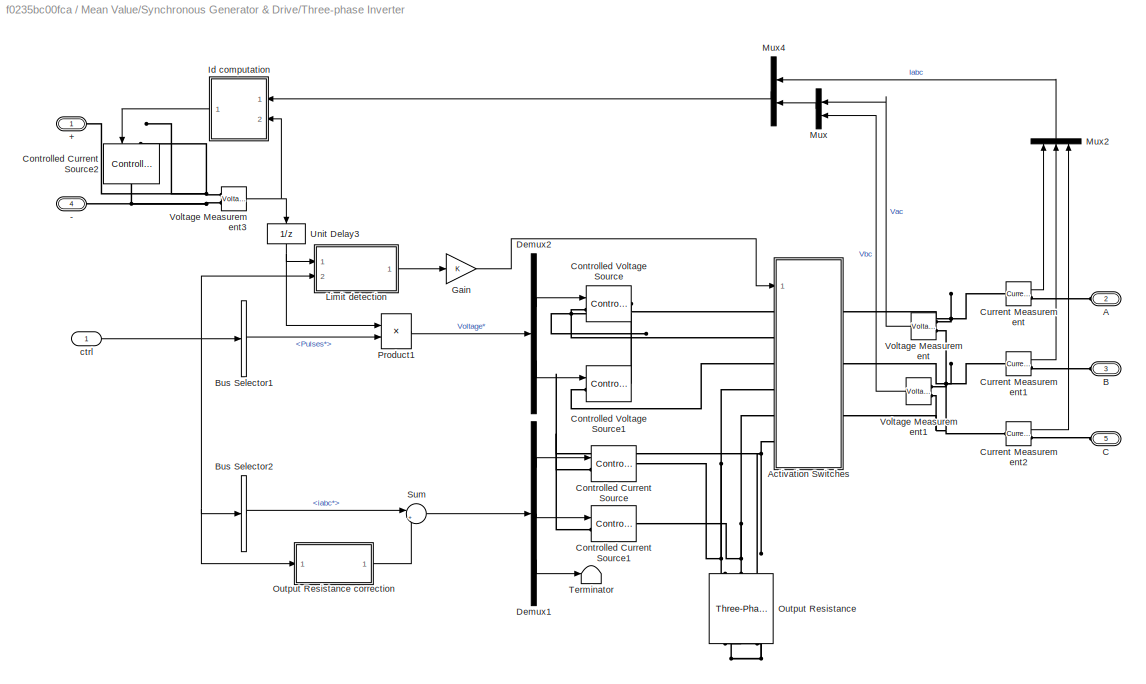
BLOCK [SubSystem] Mean Value/Synchronous Generator & Drive/Three-phase Inverter
  OpenFcn = power_openblockproxy();
  Ports = [1, 0, 0, 0, 0, 3, 2]
  RequestExecContextInheritance = off
BLOCK [PMIOPort] Mean Value/Synchronous Generator & Drive/Three-phase Inverter/+
  Side = Right
BLOCK [PMIOPort] Mean Value/Synchronous Generator & Drive/Three-phase Inverter/-
  Port = 4
  Side = Right
BLOCK [PMIOPort] Mean Value/Synchronous Generator & Drive/Three-phase Inverter/A
  Port = 2
  Side = Left
BLOCK [SubSystem] Mean Value/Synchronous Generator & Drive/Three-phase Inverter/Activation Switches
  Ports = [1, 0, 0, 0, 0, 6, 3]
  RequestExecContextInheritance = off
BLOCK [PMIOPort] Mean Value/Synchronous Generator & Drive/Three-phase Inverter/Activation Switches/A1
  Side = Left
BLOCK [PMIOPort] Mean Value/Synchronous Generator & Drive/Three-phase Inverter/Activation Switches/A2
  Port = 7
  Side = Left
BLOCK [PMIOPort] Mean Value/Synchronous Generator & Drive/Three-phase Inverter/Activation Switches/B1
  Port = 3
  Side = Left
BLOCK [PMIOPort] Mean Value/Synchronous Generator & Drive/Three-phase Inverter/Activation Switches/B2
  Port = 8
  Side = Left
BLOCK [PMIOPort] Mean Value/Synchronous Generator & Drive/Three-phase Inverter/Activation Switches/C1
  Port = 5
  Side = Left
BLOCK [PMIOPort] Mean Value/Synchronous Generator & Drive/Three-phase Inverter/Activation Switches/C2
  Port = 9
  Side = Left
BLOCK [Reference] Mean Value/Synchronous Generator & Drive/Three-phase Inverter/Activation Switches/Ideal Switch1  REF=powerlib/Power
Electronics/Ideal Switch
  Ports = [1, 1, 0, 0, 0, 1, 1]
  SourceBlock = powerlib/Power\nElectronics/Ideal Switch
  SourceProductBaseCode = PS
  SourceProductName = Simscape Electrical
  SourceType = Ideal Switch
BLOCK [Reference] Mean Value/Synchronous Generator & Drive/Three-phase Inverter/Activation Switches/Ideal Switch2  REF=powerlib/Power
Electronics/Ideal Switch
  Ports = [1, 1, 0, 0, 0, 1, 1]
  SourceBlock = powerlib/Power\nElectronics/Ideal Switch
  SourceProductBaseCode = PS
  SourceProductName = Simscape Electrical
  SourceType = Ideal Switch
BLOCK [Reference] Mean Value/Synchronous Generator & Drive/Three-phase Inverter/Activation Switches/Ideal Switch3  REF=powerlib/Power
Electronics/Ideal Switch
  Ports = [1, 1, 0, 0, 0, 1, 1]
  SourceBlock = powerlib/Power\nElectronics/Ideal Switch
  SourceProductBaseCode = PS
  SourceProductName = Simscape Electrical
  SourceType = Ideal Switch
BLOCK [Reference] Mean Value/Synchronous Generator & Drive/Three-phase Inverter/Activation Switches/Ideal Switch4  REF=powerlib/Power
Electronics/Ideal Switch
  Ports = [1, 1, 0, 0, 0, 1, 1]
  SourceBlock = powerlib/Power\nElectronics/Ideal Switch
  SourceProductBaseCode = PS
  SourceProductName = Simscape Electrical
  SourceType = Ideal Switch
BLOCK [Reference] Mean Value/Synchronous Generator & Drive/Three-phase Inverter/Activation Switches/Ideal Switch5  REF=powerlib/Power
Electronics/Ideal Switch
  Ports = [1, 1, 0, 0, 0, 1, 1]
  SourceBlock = powerlib/Power\nElectronics/Ideal Switch
  SourceProductBaseCode = PS
  SourceProductName = Simscape Electrical
  SourceType = Ideal Switch
BLOCK [Reference] Mean Value/Synchronous Generator & Drive/Three-phase Inverter/Activation Switches/Ideal Switch6  REF=powerlib/Power
Electronics/Ideal Switch
  Ports = [1, 1, 0, 0, 0, 1, 1]
  SourceBlock = powerlib/Power\nElectronics/Ideal Switch
  SourceProductBaseCode = PS
  SourceProductName = Simscape Electrical
  SourceType = Ideal Switch
BLOCK [Logic] Mean Value/Synchronous Generator & Drive/Three-phase Inverter/Activation Switches/Logical Operator
  AllPortsSameDT = off
  Operator = NOT
  OutDataTypeStr = boolean
  Ports = [1, 1]
BLOCK [PMIOPort] Mean Value/Synchronous Generator & Drive/Three-phase Inverter/Activation Switches/a
  Port = 2
  Side = Right
BLOCK [PMIOPort] Mean Value/Synchronous Generator & Drive/Three-phase Inverter/Activation Switches/b
  Port = 4
  Side = Right
BLOCK [PMIOPort] Mean Value/Synchronous Generator & Drive/Three-phase Inverter/Activation Switches/c
  Port = 6
  Side = Right
BLOCK [Inport] Mean Value/Synchronous Generator & Drive/Three-phase Inverter/Activation Switches/gate
  IconDisplay = Port number
BLOCK [PMIOPort] Mean Value/Synchronous Generator & Drive/Three-phase Inverter/B
  Port = 3
  Side = Left
BLOCK [BusSelector] Mean Value/Synchronous Generator & Drive/Three-phase Inverter/Bus Selector1
  OutputAsBus = off
  OutputSignals = Signals*.Pulses*
  Ports = [1, 1]
BLOCK [BusSelector] Mean Value/Synchronous Generator & Drive/Three-phase Inverter/Bus Selector2
  OutputAsBus = off
  OutputSignals = Signals*.iabc*
  Ports = [1, 1]
BLOCK [PMIOPort] Mean Value/Synchronous Generator & Drive/Three-phase Inverter/C
  Port = 5
  Side = Left
BLOCK [Reference] Mean Value/Synchronous Generator & Drive/Three-phase Inverter/Controlled Current Source  REF=powerlib/Electrical
Sources/Controlled Current Source
  Ports = [1, 0, 0, 0, 0, 1, 1]
  SourceBlock = powerlib/Electrical\nSources/Controlled Current Source
  SourceProductBaseCode = PS
  SourceProductName = Simscape Electrical
  SourceType = Controlled Current Source
BLOCK [Reference] Mean Value/Synchronous Generator & Drive/Three-phase Inverter/Controlled Current Source1  REF=powerlib/Electrical
Sources/Controlled Current Source
  Ports = [1, 0, 0, 0, 0, 1, 1]
  SourceBlock = powerlib/Electrical\nSources/Controlled Current Source
  SourceProductBaseCode = PS
  SourceProductName = Simscape Electrical
  SourceType = Controlled Current Source
BLOCK [Reference] Mean Value/Synchronous Generator & Drive/Three-phase Inverter/Controlled Current Source2  REF=powerlib/Electrical
Sources/Controlled Current Source
  Ports = [1, 0, 0, 0, 0, 1, 1]
  SourceBlock = powerlib/Electrical\nSources/Controlled Current Source
  SourceProductBaseCode = PS
  SourceProductName = Simscape Electrical
  SourceType = Controlled Current Source
BLOCK [Reference] Mean Value/Synchronous Generator & Drive/Three-phase Inverter/Controlled Voltage Source  REF=powerlib/Electrical
Sources/Controlled Voltage Source
  Ports = [1, 0, 0, 0, 0, 1, 1]
  SourceBlock = powerlib/Electrical\nSources/Controlled Voltage Source
  SourceProductBaseCode = PS
  SourceProductName = Simscape Electrical
  SourceType = Controlled Voltage Source
BLOCK [Reference] Mean Value/Synchronous Generator & Drive/Three-phase Inverter/Controlled Voltage Source1  REF=powerlib/Electrical
Sources/Controlled Voltage Source
  Ports = [1, 0, 0, 0, 0, 1, 1]
  SourceBlock = powerlib/Electrical\nSources/Controlled Voltage Source
  SourceProductBaseCode = PS
  SourceProductName = Simscape Electrical
  SourceType = Controlled Voltage Source
BLOCK [Reference] Mean Value/Synchronous Generator & Drive/Three-phase Inverter/Current Measurement  REF=powerlib/Measurements/Current Measurement
  Ports = [0, 1, 0, 0, 0, 1, 1]
  SourceBlock = powerlib/Measurements/Current Measurement
  SourceProductBaseCode = PS
  SourceProductName = Simscape Electrical
  SourceType = Current Measurement
BLOCK [Reference] Mean Value/Synchronous Generator & Drive/Three-phase Inverter/Current Measurement1  REF=powerlib/Measurements/Current Measurement
  Ports = [0, 1, 0, 0, 0, 1, 1]
  SourceBlock = powerlib/Measurements/Current Measurement
  SourceProductBaseCode = PS
  SourceProductName = Simscape Electrical
  SourceType = Current Measurement
BLOCK [Reference] Mean Value/Synchronous Generator & Drive/Three-phase Inverter/Current Measurement2  REF=powerlib/Measurements/Current Measurement
  Ports = [0, 1, 0, 0, 0, 1, 1]
  SourceBlock = powerlib/Measurements/Current Measurement
  SourceProductBaseCode = PS
  SourceProductName = Simscape Electrical
  SourceType = Current Measurement
BLOCK [Demux] Mean Value/Synchronous Generator & Drive/Three-phase Inverter/Demux1
  Outputs = 3
  Ports = [1, 3]
BLOCK [Demux] Mean Value/Synchronous Generator & Drive/Three-phase Inverter/Demux2
  Outputs = 2
  Ports = [1, 2]
BLOCK [Gain] Mean Value/Synchronous Generator & Drive/Three-phase Inverter/Gain
  OutDataTypeStr = Inherit: Inherit via internal rule
  ParamDataTypeStr = Inherit: Inherit via internal rule
  SaturateOnIntegerOverflow = off
BLOCK [SubSystem] Mean Value/Synchronous Generator & Drive/Three-phase Inverter/Id computation
  Ports = [2, 1]
  RequestExecContextInheritance = off
BLOCK [SubSystem] Mean Value/Synchronous Generator & Drive/Three-phase Inverter/Id computation/Demux
  Ports = [1, 4]
  RequestExecContextInheritance = off
BLOCK [Demux] Mean Value/Synchronous Generator & Drive/Three-phase Inverter/Id computation/Demux/Demux1
  Outputs = 5
  Ports = [1, 5]
BLOCK [Outport] Mean Value/Synchronous Generator & Drive/Three-phase Inverter/Id computation/Demux/Ia
  IconDisplay = Port number
  Port = 2
BLOCK [Outport] Mean Value/Synchronous Generator & Drive/Three-phase Inverter/Id computation/Demux/Ib
  IconDisplay = Port number
  Port = 4
BLOCK [Terminator] Mean Value/Synchronous Generator & Drive/Three-phase Inverter/Id computation/Demux/Terminator
BLOCK [Outport] Mean Value/Synchronous Generator & Drive/Three-phase Inverter/Id computation/Demux/Vac
  IconDisplay = Port number
BLOCK [Outport] Mean Value/Synchronous Generator & Drive/Three-phase Inverter/Id computation/Demux/Vbc
  IconDisplay = Port number
  Port = 3
BLOCK [Inport] Mean Value/Synchronous Generator & Drive/Three-phase Inverter/Id computation/Demux/m
  IconDisplay = Port number
BLOCK [SubSystem] Mean Value/Synchronous Generator & Drive/Three-phase Inverter/Id computation/Demux1
  Ports = [1, 3]
  RequestExecContextInheritance = off
BLOCK [Demux] Mean Value/Synchronous Generator & Drive/Three-phase Inverter/Id computation/Demux1/Demux1
  Outputs = 5
  Ports = [1, 5]
BLOCK [Outport] Mean Value/Synchronous Generator & Drive/Three-phase Inverter/Id computation/Demux1/Ia
  IconDisplay = Port number
BLOCK [Outport] Mean Value/Synchronous Generator & Drive/Three-phase Inverter/Id computation/Demux1/Ib
  IconDisplay = Port number
  Port = 2
BLOCK [Outport] Mean Value/Synchronous Generator & Drive/Three-phase Inverter/Id computation/Demux1/Ic
  IconDisplay = Port number
  Port = 3
BLOCK [Terminator] Mean Value/Synchronous Generator & Drive/Three-phase Inverter/Id computation/Demux1/Terminator1
BLOCK [Terminator] Mean Value/Synchronous Generator & Drive/Three-phase Inverter/Id computation/Demux1/Terminator2
BLOCK [Inport] Mean Value/Synchronous Generator & Drive/Three-phase Inverter/Id computation/Demux1/m
  IconDisplay = Port number
BLOCK [Gain] Mean Value/Synchronous Generator & Drive/Three-phase Inverter/Id computation/Gain
  Gain = Ron
  OutDataTypeStr = Inherit: Inherit via internal rule
  ParamDataTypeStr = Inherit: Inherit via internal rule
  SaturateOnIntegerOverflow = off
BLOCK [Outport] Mean Value/Synchronous Generator & Drive/Three-phase Inverter/Id computation/Id
  IconDisplay = Port number
BLOCK [Math] Mean Value/Synchronous Generator & Drive/Three-phase Inverter/Id computation/Math Function
  Operator = magnitude^2
  Ports = [1, 1]
BLOCK [Math] Mean Value/Synchronous Generator & Drive/Three-phase Inverter/Id computation/Math Function1
  Operator = magnitude^2
  Ports = [1, 1]
BLOCK [Math] Mean Value/Synchronous Generator & Drive/Three-phase Inverter/Id computation/Math Function2
  Operator = magnitude^2
  Ports = [1, 1]
BLOCK [Product] Mean Value/Synchronous Generator & Drive/Three-phase Inverter/Id computation/Product1
  InputSameDT = off
  Inputs = */
  Ports = [2, 1]
  RndMeth = Floor
BLOCK [Sum] Mean Value/Synchronous Generator & Drive/Three-phase Inverter/Id computation/Sum1
  IconShape = round
  InputSameDT = off
  Inputs = +++
  OutDataTypeStr = Inherit: Inherit via internal rule
  Ports = [3, 1]
BLOCK [Sum] Mean Value/Synchronous Generator & Drive/Three-phase Inverter/Id computation/Sum2
  IconShape = round
  InputSameDT = off
  Inputs = |++
  OutDataTypeStr = Inherit: Inherit via internal rule
  Ports = [2, 1]
BLOCK [Sum] Mean Value/Synchronous Generator & Drive/Three-phase Inverter/Id computation/Sum3
  IconShape = round
  InputSameDT = off
  OutDataTypeStr = Inherit: Inherit via internal rule
  Ports = [2, 1]
BLOCK [UnitDelay] Mean Value/Synchronous Generator & Drive/Three-phase Inverter/Id computation/Unit Delay1
  HasFrameUpgradeWarning = on
  SampleTime = Ts
BLOCK [UnitDelay] Mean Value/Synchronous Generator & Drive/Three-phase Inverter/Id computation/Unit Delay4
  HasFrameUpgradeWarning = on
  InitialCondition = 1
  SampleTime = Ts
BLOCK [Product] Mean Value/Synchronous Generator & Drive/Three-phase Inverter/Id computation/Vac x Ia
  InputSameDT = off
  Ports = [2, 1]
  RndMeth = Floor
BLOCK [Product] Mean Value/Synchronous Generator & Drive/Three-phase Inverter/Id computation/Vbc x Ib
  InputSameDT = off
  Ports = [2, 1]
  RndMeth = Floor
BLOCK [Inport] Mean Value/Synchronous Generator & Drive/Three-phase Inverter/Id computation/Vdc
  IconDisplay = Port number
  Port = 2
BLOCK [Saturate] Mean Value/Synchronous Generator & Drive/Three-phase Inverter/Id computation/Zero avoider
  InputPortMap = u0
  LowerLimit = 1
  Ports = [1, 1]
  UpperLimit = inf
BLOCK [Inport] Mean Value/Synchronous Generator & Drive/Three-phase Inverter/Id computation/m
  IconDisplay = Port number
BLOCK [SubSystem] Mean Value/Synchronous Generator & Drive/Three-phase Inverter/Limit detection
  Ports = [2, 1]
  RequestExecContextInheritance = off
BLOCK [BusSelector] Mean Value/Synchronous Generator & Drive/Three-phase Inverter/Limit detection/Bus Selector1
  OutputAsBus = on
  OutputSignals = m.Stator current is_d (A),m.Stator current is_q (A),m.Rotor speed wm (rad/s)
  Ports = [1, 1]
BLOCK [DiscreteTransferFcn] Mean Value/Synchronous Generator & Drive/Three-phase Inverter/Limit detection/Discrete Transfer Fcn1
  Denominator = [1 -exp(-Ts*Fcs*2*pi)]
  InputPortMap = u0
  Numerator = [1-exp(-Ts*Fcs*2*pi)]
  Ports = [1, 1]
  SampleTime = Ts
BLOCK [DiscreteTransferFcn] Mean Value/Synchronous Generator & Drive/Three-phase Inverter/Limit detection/Discrete Transfer Fcn3
  Denominator = [1 -exp(-Ts*Fcs*2*pi)]
  InputPortMap = u0
  Numerator = [1-exp(-Ts*Fcs*2*pi)]
  Ports = [1, 1]
  SampleTime = Ts
BLOCK [Gain] Mean Value/Synchronous Generator & Drive/Three-phase Inverter/Limit detection/Gain1
  Gain = 0.9
BLOCK [Fcn] Mean Value/Synchronous Generator & Drive/Three-phase Inverter/Limit detection/Internal Vcc 
  Expr = pi/2*sqrt((Resistance*u(1)-Lq*p*u(3)*u(2))^2+(Resistance*u(2)+Ld*p*u(3)*u(1)+Flux*p*u(3))^2)
BLOCK [Outport] Mean Value/Synchronous Generator & Drive/Three-phase Inverter/Limit detection/Limit
  IconDisplay = Port number
BLOCK [RelationalOperator] Mean Value/Synchronous Generator & Drive/Three-phase Inverter/Limit detection/Relational Operator
  InputSameDT = off
  Operator = >
  OutDataTypeStr = boolean
  Ports = [2, 1]
BLOCK [RelationalOperator] Mean Value/Synchronous Generator & Drive/Three-phase Inverter/Limit detection/Relational Operator2
  InputSameDT = off
  Operator = <
  OutDataTypeStr = boolean
  Ports = [2, 1]
BLOCK [Reference] Mean Value/Synchronous Generator & Drive/Three-phase Inverter/Limit detection/S-R Flip-Flop  REF=simulink_extras/Flip Flops/S-R
Flip-Flop
  Ports = [2, 2]
  SourceBlock = simulink_extras/Flip Flops/S-R\nFlip-Flop
  SourceProductBaseCode = SL
  SourceProductName = Simulink
  SourceType = SRFlipFlop
BLOCK [Terminator] Mean Value/Synchronous Generator & Drive/Three-phase Inverter/Limit detection/Terminator
BLOCK [Inport] Mean Value/Synchronous Generator & Drive/Three-phase Inverter/Limit detection/Vcc
  IconDisplay = Port number
BLOCK [Inport] Mean Value/Synchronous Generator & Drive/Three-phase Inverter/Limit detection/ctrl
  IconDisplay = Port number
  Port = 2
BLOCK [Mux] Mean Value/Synchronous Generator & Drive/Three-phase Inverter/Mux
  DisplayOption = bar
  Inputs = 2
  Ports = [2, 1]
BLOCK [Mux] Mean Value/Synchronous Generator & Drive/Three-phase Inverter/Mux2
  DisplayOption = bar
  Inputs = 3
  Ports = [3, 1]
BLOCK [Mux] Mean Value/Synchronous Generator & Drive/Three-phase Inverter/Mux4
  DisplayOption = bar
  Inputs = 2
  Ports = [2, 1]
BLOCK [Reference] Mean Value/Synchronous Generator & Drive/Three-phase Inverter/Output Resistance  REF=powerlib/Elements/Three-Phase
Series RLC Branch
  AttributesFormatString = \n
  Ports = [0, 0, 0, 0, 0, 3, 3]
  SourceBlock = powerlib/Elements/Three-Phase\nSeries RLC Branch
  SourceProductBaseCode = PS
  SourceProductName = Simscape Electrical
  SourceType = Three-Phase Series RLC Branch
BLOCK [SubSystem] Mean Value/Synchronous Generator & Drive/Three-phase Inverter/Output Resistance correction
  Ports = [1, 1]
  RequestExecContextInheritance = off
BLOCK [Gain] Mean Value/Synchronous Generator & Drive/Three-phase Inverter/Output Resistance correction/1//R
  Gain = 1/(100*Resistance)
BLOCK [BusSelector] Mean Value/Synchronous Generator & Drive/Three-phase Inverter/Output Resistance correction/Bus Selector1
  OutputAsBus = off
  OutputSignals = m.Stator voltage Vs_d (V),m.Stator voltage Vs_q (V),m.Rotor angle thetam (rad)
  Ports = [1, 3]
BLOCK [Constant] Mean Value/Synchronous Generator & Drive/Three-phase Inverter/Output Resistance correction/Constant
  Value = 0
BLOCK [DiscreteTransferFcn] Mean Value/Synchronous Generator & Drive/Three-phase Inverter/Output Resistance correction/Discrete Transfer Fcn1
  Denominator = [1 -exp(-Ts/.001)]
  InputPortMap = u0
  Numerator = [1-exp(-Ts/.001)]
  Ports = [1, 1]
  SampleTime = Ts
BLOCK [DiscreteTransferFcn] Mean Value/Synchronous Generator & Drive/Three-phase Inverter/Output Resistance correction/Discrete Transfer Fcn2
  Denominator = [1 -exp(-Ts/.001)]
  InputPortMap = u0
  Numerator = [1-exp(-Ts/.001)]
  Ports = [1, 1]
  SampleTime = Ts
BLOCK [Fcn] Mean Value/Synchronous Generator & Drive/Three-phase Inverter/Output Resistance correction/Fcn
  Expr = sin(u)
BLOCK [Fcn] Mean Value/Synchronous Generator & Drive/Three-phase Inverter/Output Resistance correction/Fcn1
  Expr = cos(u)
BLOCK [Outport] Mean Value/Synchronous Generator & Drive/Three-phase Inverter/Output Resistance correction/Iabc_r 
  IconDisplay = Port number
BLOCK [Mux] Mean Value/Synchronous Generator & Drive/Three-phase Inverter/Output Resistance correction/Mux4
  DisplayOption = bar
  Inputs = 3
  Ports = [3, 1]
BLOCK [Mux] Mean Value/Synchronous Generator & Drive/Three-phase Inverter/Output Resistance correction/Mux5
  DisplayOption = bar
  Inputs = 2
  Ports = [2, 1]
BLOCK [Inport] Mean Value/Synchronous Generator & Drive/Three-phase Inverter/Output Resistance correction/ctrl
  IconDisplay = Port number
BLOCK [Reference] Mean Value/Synchronous Generator & Drive/Three-phase Inverter/Output Resistance correction/dq0_to_abc Transformation  REF=powerlib_extras/Measurements/dq0_to_abc
Transformation
  Ports = [2, 1]
  SourceBlock = powerlib_extras/Measurements/dq0_to_abc\nTransformation
  SourceProductBaseCode = PS
  SourceProductName = Simscape Electrical
  SourceType = dq0 to abc Transformation
BLOCK [Gain] Mean Value/Synchronous Generator & Drive/Three-phase Inverter/Output Resistance correction/poles
  Gain = p
BLOCK [Product] Mean Value/Synchronous Generator & Drive/Three-phase Inverter/Product1
  InputSameDT = off
  OutDataTypeStr = Inherit: Inherit via internal rule
  Ports = [2, 1]
  SaturateOnIntegerOverflow = off
BLOCK [Sum] Mean Value/Synchronous Generator & Drive/Three-phase Inverter/Sum
  IconShape = round
  InputSameDT = off
  Inputs = |++
  OutDataTypeStr = Inherit: Inherit via internal rule
  Ports = [2, 1]
  SaturateOnIntegerOverflow = off
BLOCK [Terminator] Mean Value/Synchronous Generator & Drive/Three-phase Inverter/Terminator
BLOCK [UnitDelay] Mean Value/Synchronous Generator & Drive/Three-phase Inverter/Unit Delay3
  HasFrameUpgradeWarning = on
  SampleTime = Ts
BLOCK [Reference] Mean Value/Synchronous Generator & Drive/Three-phase Inverter/Voltage Measurement  REF=powerlib/Measurements/Voltage Measurement
  Ports = [0, 1, 0, 0, 0, 2]
  SourceBlock = powerlib/Measurements/Voltage Measurement
  SourceProductBaseCode = PS
  SourceProductName = Simscape Electrical
  SourceType = Voltage Measurement
BLOCK [Reference] Mean Value/Synchronous Generator & Drive/Three-phase Inverter/Voltage Measurement1  REF=powerlib/Measurements/Voltage Measurement
  Ports = [0, 1, 0, 0, 0, 2]
  SourceBlock = powerlib/Measurements/Voltage Measurement
  SourceProductBaseCode = PS
  SourceProductName = Simscape Electrical
  SourceType = Voltage Measurement
BLOCK [Reference] Mean Value/Synchronous Generator & Drive/Three-phase Inverter/Voltage Measurement3  REF=powerlib/Measurements/Voltage Measurement
  Ports = [0, 1, 0, 0, 0, 2]
  SourceBlock = powerlib/Measurements/Voltage Measurement
  SourceProductBaseCode = PS
  SourceProductName = Simscape Electrical
  SourceType = Voltage Measurement
BLOCK [Inport] Mean Value/Synchronous Generator & Drive/Three-phase Inverter/ctrl
  IconDisplay = Port number
BLOCK [SubSystem] Mean Value/Synchronous Generator & Drive/VECT
  Ports = [3, 1]
  RequestExecContextInheritance = off
BLOCK [BusCreator] Mean Value/Synchronous Generator & Drive/VECT/Bus Creator
  DisplayOption = bar
  InheritFromInputs = on
  Inputs = 2
  Ports = [2, 1]
BLOCK [Constant] Mean Value/Synchronous Generator & Drive/VECT/Constant1
  Value = 0
BLOCK [Constant] Mean Value/Synchronous Generator & Drive/VECT/Constant2
BLOCK [SubSystem] Mean Value/Synchronous Generator & Drive/VECT/Current Regulator
  Ports = [2, 1]
  RequestExecContextInheritance = off
BLOCK [Demux] Mean Value/Synchronous Generator & Drive/VECT/Current Regulator/Demux1
  Outputs = 3
  Ports = [1, 3]
BLOCK [Demux] Mean Value/Synchronous Generator & Drive/VECT/Current Regulator/Demux2
  Outputs = 3
  Ports = [1, 3]
BLOCK [Inport] Mean Value/Synchronous Generator & Drive/VECT/Current Regulator/Iabc
  IconDisplay = Port number
  Port = 2
BLOCK [Inport] Mean Value/Synchronous Generator & Drive/VECT/Current Regulator/Iabc*
  IconDisplay = Port number
BLOCK [Mux] Mean Value/Synchronous Generator & Drive/VECT/Current Regulator/Mux1
  Inputs = 2
  Ports = [2, 1]
BLOCK [Outport] Mean Value/Synchronous Generator & Drive/VECT/Current Regulator/Pulses
  IconDisplay = Port number
  InitialOutput = 0
BLOCK [Relay] Mean Value/Synchronous Generator & Drive/VECT/Current Regulator/Relay
  OffSwitchValue = 0
  OnSwitchValue = 0
BLOCK [Relay] Mean Value/Synchronous Generator & Drive/VECT/Current Regulator/Relay1
  OffSwitchValue = 0
  OnSwitchValue = 0
BLOCK [Relay] Mean Value/Synchronous Generator & Drive/VECT/Current Regulator/Relay2
  OffSwitchValue = 0
  OnSwitchValue = 0
BLOCK [Sum] Mean Value/Synchronous Generator & Drive/VECT/Current Regulator/Sum
  Inputs = -+
  Ports = [2, 1]
BLOCK [Sum] Mean Value/Synchronous Generator & Drive/VECT/Current Regulator/Sum1
  Inputs = -+
  Ports = [2, 1]
BLOCK [Sum] Mean Value/Synchronous Generator & Drive/VECT/Current Regulator/Sum2
  Inputs = -+
  Ports = [2, 1]
BLOCK [Sum] Mean Value/Synchronous Generator & Drive/VECT/Current Regulator/Sum3
  InputSameDT = off
  Inputs = +-
  OutDataTypeStr = Inherit: Inherit via internal rule
  Ports = [2, 1]
  SaturateOnIntegerOverflow = off
BLOCK [Sum] Mean Value/Synchronous Generator & Drive/VECT/Current Regulator/Sum4
  InputSameDT = off
  Inputs = +-
  OutDataTypeStr = Inherit: Inherit via internal rule
  Ports = [2, 1]
  SaturateOnIntegerOverflow = off
BLOCK [SubSystem] Mean Value/Synchronous Generator & Drive/VECT/DQ-ABC
  Ports = [3, 1]
  RequestExecContextInheritance = off
BLOCK [Fcn] Mean Value/Synchronous Generator & Drive/VECT/DQ-ABC/Fcn
  Expr = sin(u)
BLOCK [Fcn] Mean Value/Synchronous Generator & Drive/VECT/DQ-ABC/Fcn1
  Expr = cos(u)
BLOCK [Gain] Mean Value/Synchronous Generator & Drive/VECT/DQ-ABC/Gain2
BLOCK [Gain] Mean Value/Synchronous Generator & Drive/VECT/DQ-ABC/Gain3
BLOCK [Gain] Mean Value/Synchronous Generator & Drive/VECT/DQ-ABC/Gain4
BLOCK [Outport] Mean Value/Synchronous Generator & Drive/VECT/DQ-ABC/Iabc*
  IconDisplay = Port number
  InitialOutput = 0
BLOCK [Inport] Mean Value/Synchronous Generator & Drive/VECT/DQ-ABC/Id* 
  IconDisplay = Port number
  Port = 2
BLOCK [Inport] Mean Value/Synchronous Generator & Drive/VECT/DQ-ABC/Iq* 
  IconDisplay = Port number
BLOCK [Mux] Mean Value/Synchronous Generator & Drive/VECT/DQ-ABC/Mux
  Ports = [4, 1]
BLOCK [Mux] Mean Value/Synchronous Generator & Drive/VECT/DQ-ABC/Mux2
  Inputs = 3
  Ports = [3, 1]
BLOCK [Inport] Mean Value/Synchronous Generator & Drive/VECT/DQ-ABC/Teta
  IconDisplay = Port number
  Port = 3
BLOCK [Fcn] Mean Value/Synchronous Generator & Drive/VECT/DQ-ABC/ia
  Expr = -u[3]*u[2] + u[4]*u[1]
BLOCK [Fcn] Mean Value/Synchronous Generator & Drive/VECT/DQ-ABC/ib
  Expr = (-u[1]+1.7320508*u[2])*u[4]*0.5+(u[2]+1.7320508*u[1])*u[3]*0.5
BLOCK [Sum] Mean Value/Synchronous Generator & Drive/VECT/DQ-ABC/ic
  Inputs = --
  Ports = [2, 1]
BLOCK [Gain] Mean Value/Synchronous Generator & Drive/VECT/Gain1
  Gain = nb_p
BLOCK [Inport] Mean Value/Synchronous Generator & Drive/VECT/I_abc
  IconDisplay = Port number
  Port = 3
BLOCK [Product] Mean Value/Synchronous Generator & Drive/VECT/Product
  InputSameDT = off
  OutDataTypeStr = Inherit: Inherit via internal rule
  Ports = [2, 1]
  SaturateOnIntegerOverflow = off
BLOCK [Product] Mean Value/Synchronous Generator & Drive/VECT/Product1
  InputSameDT = off
  OutDataTypeStr = Inherit: Inherit via internal rule
  Ports = [2, 1]
  SaturateOnIntegerOverflow = off
BLOCK [RateTransition] Mean Value/Synchronous Generator & Drive/VECT/Rate Transition1
BLOCK [RateTransition] Mean Value/Synchronous Generator & Drive/VECT/Rate Transition2
BLOCK [Inport] Mean Value/Synchronous Generator & Drive/VECT/Torque*
  IconDisplay = Port number
BLOCK [UnitDelay] Mean Value/Synchronous Generator & Drive/VECT/Unit Delay1
  HasFrameUpgradeWarning = on
  SampleTime = Ts
BLOCK [SubSystem] Mean Value/Synchronous Generator & Drive/VECT/Zero crossing detector
  Ports = [2, 1]
  RequestExecContextInheritance = off
BLOCK [Reference] Mean Value/Synchronous Generator & Drive/VECT/Zero crossing detector/D Latch  REF=simulink_extras/Flip Flops/D Latch
  Ports = [2, 2]
  SourceBlock = simulink_extras/Flip Flops/D Latch
  SourceProductBaseCode = SL
  SourceProductName = Simulink
  SourceType = DLatch
BLOCK [Reference] Mean Value/Synchronous Generator & Drive/VECT/Zero crossing detector/D Latch1  REF=simulink_extras/Flip Flops/D Latch
  Ports = [2, 2]
  SourceBlock = simulink_extras/Flip Flops/D Latch
  SourceProductBaseCode = SL
  SourceProductName = Simulink
  SourceType = DLatch
BLOCK [Reference] Mean Value/Synchronous Generator & Drive/VECT/Zero crossing detector/D Latch2  REF=simulink_extras/Flip Flops/D Latch
  Ports = [2, 2]
  SourceBlock = simulink_extras/Flip Flops/D Latch
  SourceProductBaseCode = SL
  SourceProductName = Simulink
  SourceType = DLatch
BLOCK [DataTypeConversion] Mean Value/Synchronous Generator & Drive/VECT/Zero crossing detector/Data Type Conversion
  RndMeth = Floor
  SaturateOnIntegerOverflow = off
BLOCK [DataTypeConversion] Mean Value/Synchronous Generator & Drive/VECT/Zero crossing detector/Data Type Conversion2
  RndMeth = Floor
  SaturateOnIntegerOverflow = off
BLOCK [Demux] Mean Value/Synchronous Generator & Drive/VECT/Zero crossing detector/Demux
  DisplayOption = bar
  Outputs = 3
  Ports = [1, 3]
BLOCK [Inport] Mean Value/Synchronous Generator & Drive/VECT/Zero crossing detector/En
  IconDisplay = Port number
  Port = 2
BLOCK [Outport] Mean Value/Synchronous Generator & Drive/VECT/Zero crossing detector/Enable
  IconDisplay = Port number
BLOCK [HitCross] Mean Value/Synchronous Generator & Drive/VECT/Zero crossing detector/Hit Crossing
  Ports = [1, 1]
BLOCK [Inport] Mean Value/Synchronous Generator & Drive/VECT/Zero crossing detector/Iabc*
  IconDisplay = Port number
BLOCK [Mux] Mean Value/Synchronous Generator & Drive/VECT/Zero crossing detector/Mux
  DisplayOption = bar
  Inputs = 3
  Ports = [3, 1]
BLOCK [Terminator] Mean Value/Synchronous Generator & Drive/VECT/Zero crossing detector/Terminator
BLOCK [Terminator] Mean Value/Synchronous Generator & Drive/VECT/Zero crossing detector/Terminator1
BLOCK [Terminator] Mean Value/Synchronous Generator & Drive/VECT/Zero crossing detector/Terminator2
BLOCK [ZeroOrderHold] Mean Value/Synchronous Generator & Drive/VECT/Zero-Order Hold1
  SampleTime = Ts_vect
BLOCK [ZeroOrderHold] Mean Value/Synchronous Generator & Drive/VECT/Zero-Order Hold2
  SampleTime = Ts_vect
BLOCK [ZeroOrderHold] Mean Value/Synchronous Generator & Drive/VECT/Zero-Order Hold3
  SampleTime = Ts_vect
BLOCK [ZeroOrderHold] Mean Value/Synchronous Generator & Drive/VECT/Zero-Order Hold4
  SampleTime = Ts_vect
BLOCK [ZeroOrderHold] Mean Value/Synchronous Generator & Drive/VECT/Zero-Order Hold5
  SampleTime = Ts_vect
BLOCK [Outport] Mean Value/Synchronous Generator & Drive/VECT/sig*
  IconDisplay = Port number
BLOCK [Gain] Mean Value/Synchronous Generator & Drive/VECT/te2iq
  Gain = 2/(3*nb_p*lambda)
BLOCK [Inport] Mean Value/Synchronous Generator & Drive/VECT/teta
  IconDisplay = Port number
  Port = 2
BLOCK [SubSystem] Mean Value/Synchronous Motor & Drive
  Ports = [1, 0, 0, 0, 0, 0, 3]
  RequestExecContextInheritance = off
BLOCK [PMIOPort] Mean Value/Synchronous Motor & Drive/+
  Side = Right
BLOCK [PMIOPort] Mean Value/Synchronous Motor & Drive/-
  Port = 2
  Side = Right
BLOCK [Reference] Mean Value/Synchronous Motor & Drive/500 Vdc 50kW PMSM  REF=powerlib/Machines/Permanent Magnet
Synchronous Machine
  AttributesFormatString = \n
  Ports = [1, 1, 0, 0, 0, 3]
  SourceBlock = powerlib/Machines/Permanent Magnet\nSynchronous Machine
  SourceProductBaseCode = PS
  SourceProductName = Simscape Electrical
  SourceType = Permanent Magnet Synchronous Machine
BLOCK [BusSelector] Mean Value/Synchronous Motor & Drive/Bus Selector
  OutputAsBus = off
  OutputSignals = Rotor speed wm (rad/s),Rotor angle thetam (rad)
  Ports = [1, 2]
BLOCK [SubSystem] Mean Value/Synchronous Motor & Drive/GF
  Ports = [1, 1]
  RequestExecContextInheritance = off
BLOCK [Goto] Mean Value/Synchronous Motor & Drive/GF/Goto
  GotoTag = Mot_TReq_SYS
  TagVisibility = global
BLOCK [Inport] Mean Value/Synchronous Motor & Drive/GF/In1
  IconDisplay = Port number
BLOCK [Outport] Mean Value/Synchronous Motor & Drive/GF/Out1
  IconDisplay = Port number
BLOCK [Reference] Mean Value/Synchronous Motor & Drive/Measures  REF=electricdrivelib/AC drives/PM Synchronous Motor Drive/Measures
  Ports = [0, 1, 0, 0, 0, 3, 3]
  SourceBlock = electricdrivelib/AC drives/PM Synchronous Motor Drive/Measures
  SourceProductBaseCode = PS
  SourceProductName = Simscape Electrical
  SourceType = SubSystem
BLOCK [PMIOPort] Mean Value/Synchronous Motor & Drive/Mot_Sh
  Port = 3
  Side = Right
BLOCK [SubSystem] Mean Value/Synchronous Motor & Drive/Mux
  Ports = [2, 1]
  RequestExecContextInheritance = off
BLOCK [BusCreator] Mean Value/Synchronous Motor & Drive/Mux/Bus Creator
  DisplayOption = bar
  InheritFromInputs = on
  Inputs = 2
  Ports = [2, 1]
BLOCK [Outport] Mean Value/Synchronous Motor & Drive/Mux/Ctrl
  IconDisplay = Port number
BLOCK [Inport] Mean Value/Synchronous Motor & Drive/Mux/m
  IconDisplay = Port number
  Port = 2
BLOCK [Inport] Mean Value/Synchronous Motor & Drive/Mux/sig*
  IconDisplay = Port number
BLOCK [Reference] Mean Value/Synchronous Motor & Drive/Shaft Inertia  REF=fl_lib/Mechanical/Rotational Elements/Inertia
  Ports = [0, 0, 0, 0, 0, 1]
  SourceBlock = fl_lib/Mechanical/Rotational Elements/Inertia
  SourceProductBaseCode = SS
  SourceProductName = Simscape
  SourceType = Inertia
BLOCK [SubSystem] Mean Value/Synchronous Motor & Drive/Subsystem
  Ports = [1, 1]
  RequestExecContextInheritance = off
BLOCK [Gain] Mean Value/Synchronous Motor & Drive/Subsystem/+ -> -1
  Gain = 30/pi
  OutDataTypeStr = Inherit: Inherit via internal rule
  ParamDataTypeStr = Inherit: Inherit via internal rule
  SaturateOnIntegerOverflow = off
BLOCK [BusSelector] Mean Value/Synchronous Motor & Drive/Subsystem/Bus Selector
  OutputAsBus = off
  OutputSignals = Stator current is_a (A),Rotor speed wm (rad/s),Electromagnetic torque Te (N*m)
  Ports = [1, 3]
BLOCK [From] Mean Value/Synchronous Motor & Drive/Subsystem/From
  GotoTag = Mot_TReq_SYS
  TagVisibility = global
BLOCK [Goto] Mean Value/Synchronous Motor & Drive/Subsystem/Goto
  GotoTag = MotorDrive
  TagVisibility = global
BLOCK [Inport] Mean Value/Synchronous Motor & Drive/Subsystem/In1
  IconDisplay = Port number
BLOCK [Outport] Mean Value/Synchronous Motor & Drive/Subsystem/Motor
  IconDisplay = Port number
BLOCK [Mux] Mean Value/Synchronous Motor & Drive/Subsystem/Mux1
  DisplayOption = bar
  Inputs = 2
  Ports = [2, 1]
BLOCK [Mux] Mean Value/Synchronous Motor & Drive/Subsystem/Mux2
  DisplayOption = bar
  Inputs = 3
  Ports = [3, 1]
BLOCK [SubSystem] Mean Value/Synchronous Motor & Drive/Subsystem1
  Ports = [1, 1, 0, 0, 0, 0, 1]
  RequestExecContextInheritance = off
BLOCK [BusSelector] Mean Value/Synchronous Motor & Drive/Subsystem1/Bus Selector
  OutputAsBus = off
  OutputSignals = Electromagnetic torque Te (N*m)
  Ports = [1, 1]
BLOCK [Reference] Mean Value/Synchronous Motor & Drive/Subsystem1/Ideal Rotational Motion Sensor  REF=fl_lib/Mechanical/Mechanical Sensors/Ideal Rotational
Motion Sensor
  Ports = [0, 0, 0, 0, 0, 1, 3]
  SourceBlock = fl_lib/Mechanical/Mechanical Sensors/Ideal Rotational\nMotion Sensor
  SourceProductBaseCode = SS
  SourceProductName = Simscape
  SourceType = Ideal Rotational\nMotion Sensor
BLOCK [Reference] Mean Value/Synchronous Motor & Drive/Subsystem1/Ideal Torque Source  REF=fl_lib/Mechanical/Mechanical Sources/Ideal Torque Source
  Ports = [0, 0, 0, 0, 0, 1, 2]
  SourceBlock = fl_lib/Mechanical/Mechanical Sources/Ideal Torque Source
  SourceProductBaseCode = SS
  SourceProductName = Simscape
  SourceType = Ideal Torque Source
BLOCK [Reference] Mean Value/Synchronous Motor & Drive/Subsystem1/Mechanical Rotational Reference  REF=fl_lib/Mechanical/Rotational Elements/Mechanical
Rotational Reference
  Ports = [0, 0, 0, 0, 0, 1]
  SourceBlock = fl_lib/Mechanical/Rotational Elements/Mechanical\nRotational Reference
  SourceProductBaseCode = SS
  SourceProductName = Simscape
  SourceType = Mechanical\nRotational Reference
BLOCK [Reference] Mean Value/Synchronous Motor & Drive/Subsystem1/Mechanical Rotational Reference1  REF=fl_lib/Mechanical/Rotational Elements/Mechanical
Rotational Reference
  Ports = [0, 0, 0, 0, 0, 1]
  SourceBlock = fl_lib/Mechanical/Rotational Elements/Mechanical\nRotational Reference
  SourceProductBaseCode = SS
  SourceProductName = Simscape
  SourceType = Mechanical\nRotational Reference
BLOCK [Reference] Mean Value/Synchronous Motor & Drive/Subsystem1/PS-Simulink Converter  REF=nesl_utility/PS-Simulink
Converter
  Ports = [0, 1, 0, 0, 0, 1]
  SourceBlock = nesl_utility/PS-Simulink\nConverter
  SourceProductBaseCode = SS
  SourceProductName = Simscape
  SourceType = PS-Simulink\nConverter
BLOCK [PMIOPort] Mean Value/Synchronous Motor & Drive/Subsystem1/Sh
  Side = Right
BLOCK [Inport] Mean Value/Synchronous Motor & Drive/Subsystem1/Sig
  IconDisplay = Port number
BLOCK [Reference] Mean Value/Synchronous Motor & Drive/Subsystem1/Simulink-PS Converter  REF=nesl_utility/Simulink-PS
Converter
  Ports = [1, 0, 0, 0, 0, 0, 1]
  SourceBlock = nesl_utility/Simulink-PS\nConverter
  SourceProductBaseCode = SS
  SourceProductName = Simscape
  SourceType = Simulink-PS\nConverter
BLOCK [Outport] Mean Value/Synchronous Motor & Drive/Subsystem1/Spd
  IconDisplay = Port number
BLOCK [Inport] Mean Value/Synchronous Motor & Drive/TReq
  IconDisplay = Port number
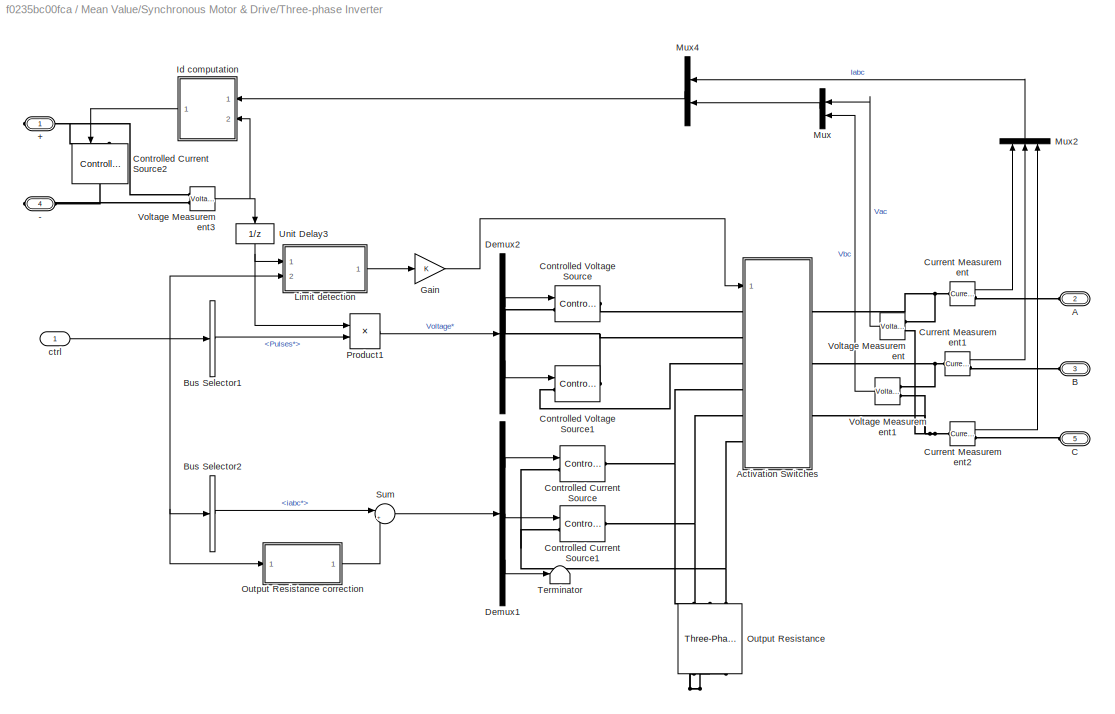
BLOCK [SubSystem] Mean Value/Synchronous Motor & Drive/Three-phase Inverter
  OpenFcn = power_openblockproxy();
  Ports = [1, 0, 0, 0, 0, 3, 2]
  RequestExecContextInheritance = off
BLOCK [PMIOPort] Mean Value/Synchronous Motor & Drive/Three-phase Inverter/+
  Side = Right
BLOCK [PMIOPort] Mean Value/Synchronous Motor & Drive/Three-phase Inverter/-
  Port = 4
  Side = Right
BLOCK [PMIOPort] Mean Value/Synchronous Motor & Drive/Three-phase Inverter/A
  Port = 2
  Side = Left
BLOCK [SubSystem] Mean Value/Synchronous Motor & Drive/Three-phase Inverter/Activation Switches
  Ports = [1, 0, 0, 0, 0, 6, 3]
  RequestExecContextInheritance = off
BLOCK [PMIOPort] Mean Value/Synchronous Motor & Drive/Three-phase Inverter/Activation Switches/A1
  Side = Left
BLOCK [PMIOPort] Mean Value/Synchronous Motor & Drive/Three-phase Inverter/Activation Switches/A2
  Port = 7
  Side = Left
BLOCK [PMIOPort] Mean Value/Synchronous Motor & Drive/Three-phase Inverter/Activation Switches/B1
  Port = 3
  Side = Left
BLOCK [PMIOPort] Mean Value/Synchronous Motor & Drive/Three-phase Inverter/Activation Switches/B2
  Port = 8
  Side = Left
BLOCK [PMIOPort] Mean Value/Synchronous Motor & Drive/Three-phase Inverter/Activation Switches/C1
  Port = 5
  Side = Left
BLOCK [PMIOPort] Mean Value/Synchronous Motor & Drive/Three-phase Inverter/Activation Switches/C2
  Port = 9
  Side = Left
BLOCK [Reference] Mean Value/Synchronous Motor & Drive/Three-phase Inverter/Activation Switches/Ideal Switch1  REF=powerlib/Power
Electronics/Ideal Switch
  Ports = [1, 1, 0, 0, 0, 1, 1]
  SourceBlock = powerlib/Power\nElectronics/Ideal Switch
  SourceProductBaseCode = PS
  SourceProductName = Simscape Electrical
  SourceType = Ideal Switch
BLOCK [Reference] Mean Value/Synchronous Motor & Drive/Three-phase Inverter/Activation Switches/Ideal Switch2  REF=powerlib/Power
Electronics/Ideal Switch
  Ports = [1, 1, 0, 0, 0, 1, 1]
  SourceBlock = powerlib/Power\nElectronics/Ideal Switch
  SourceProductBaseCode = PS
  SourceProductName = Simscape Electrical
  SourceType = Ideal Switch
BLOCK [Reference] Mean Value/Synchronous Motor & Drive/Three-phase Inverter/Activation Switches/Ideal Switch3  REF=powerlib/Power
Electronics/Ideal Switch
  Ports = [1, 1, 0, 0, 0, 1, 1]
  SourceBlock = powerlib/Power\nElectronics/Ideal Switch
  SourceProductBaseCode = PS
  SourceProductName = Simscape Electrical
  SourceType = Ideal Switch
BLOCK [Reference] Mean Value/Synchronous Motor & Drive/Three-phase Inverter/Activation Switches/Ideal Switch4  REF=powerlib/Power
Electronics/Ideal Switch
  Ports = [1, 1, 0, 0, 0, 1, 1]
  SourceBlock = powerlib/Power\nElectronics/Ideal Switch
  SourceProductBaseCode = PS
  SourceProductName = Simscape Electrical
  SourceType = Ideal Switch
BLOCK [Reference] Mean Value/Synchronous Motor & Drive/Three-phase Inverter/Activation Switches/Ideal Switch5  REF=powerlib/Power
Electronics/Ideal Switch
  Ports = [1, 1, 0, 0, 0, 1, 1]
  SourceBlock = powerlib/Power\nElectronics/Ideal Switch
  SourceProductBaseCode = PS
  SourceProductName = Simscape Electrical
  SourceType = Ideal Switch
BLOCK [Reference] Mean Value/Synchronous Motor & Drive/Three-phase Inverter/Activation Switches/Ideal Switch6  REF=powerlib/Power
Electronics/Ideal Switch
  Ports = [1, 1, 0, 0, 0, 1, 1]
  SourceBlock = powerlib/Power\nElectronics/Ideal Switch
  SourceProductBaseCode = PS
  SourceProductName = Simscape Electrical
  SourceType = Ideal Switch
BLOCK [Logic] Mean Value/Synchronous Motor & Drive/Three-phase Inverter/Activation Switches/Logical Operator
  AllPortsSameDT = off
  Operator = NOT
  OutDataTypeStr = boolean
  Ports = [1, 1]
BLOCK [PMIOPort] Mean Value/Synchronous Motor & Drive/Three-phase Inverter/Activation Switches/a
  Port = 2
  Side = Right
BLOCK [PMIOPort] Mean Value/Synchronous Motor & Drive/Three-phase Inverter/Activation Switches/b
  Port = 4
  Side = Right
BLOCK [PMIOPort] Mean Value/Synchronous Motor & Drive/Three-phase Inverter/Activation Switches/c
  Port = 6
  Side = Right
BLOCK [Inport] Mean Value/Synchronous Motor & Drive/Three-phase Inverter/Activation Switches/gate
  IconDisplay = Port number
BLOCK [PMIOPort] Mean Value/Synchronous Motor & Drive/Three-phase Inverter/B
  Port = 3
  Side = Left
BLOCK [BusSelector] Mean Value/Synchronous Motor & Drive/Three-phase Inverter/Bus Selector1
  OutputAsBus = off
  OutputSignals = Signals*.Pulses*
  Ports = [1, 1]
BLOCK [BusSelector] Mean Value/Synchronous Motor & Drive/Three-phase Inverter/Bus Selector2
  OutputAsBus = off
  OutputSignals = Signals*.iabc*
  Ports = [1, 1]
BLOCK [PMIOPort] Mean Value/Synchronous Motor & Drive/Three-phase Inverter/C
  Port = 5
  Side = Left
BLOCK [Reference] Mean Value/Synchronous Motor & Drive/Three-phase Inverter/Controlled Current Source  REF=powerlib/Electrical
Sources/Controlled Current Source
  Ports = [1, 0, 0, 0, 0, 1, 1]
  SourceBlock = powerlib/Electrical\nSources/Controlled Current Source
  SourceProductBaseCode = PS
  SourceProductName = Simscape Electrical
  SourceType = Controlled Current Source
BLOCK [Reference] Mean Value/Synchronous Motor & Drive/Three-phase Inverter/Controlled Current Source1  REF=powerlib/Electrical
Sources/Controlled Current Source
  Ports = [1, 0, 0, 0, 0, 1, 1]
  SourceBlock = powerlib/Electrical\nSources/Controlled Current Source
  SourceProductBaseCode = PS
  SourceProductName = Simscape Electrical
  SourceType = Controlled Current Source
BLOCK [Reference] Mean Value/Synchronous Motor & Drive/Three-phase Inverter/Controlled Current Source2  REF=powerlib/Electrical
Sources/Controlled Current Source
  Ports = [1, 0, 0, 0, 0, 1, 1]
  SourceBlock = powerlib/Electrical\nSources/Controlled Current Source
  SourceProductBaseCode = PS
  SourceProductName = Simscape Electrical
  SourceType = Controlled Current Source
BLOCK [Reference] Mean Value/Synchronous Motor & Drive/Three-phase Inverter/Controlled Voltage Source  REF=powerlib/Electrical
Sources/Controlled Voltage Source
  Ports = [1, 0, 0, 0, 0, 1, 1]
  SourceBlock = powerlib/Electrical\nSources/Controlled Voltage Source
  SourceProductBaseCode = PS
  SourceProductName = Simscape Electrical
  SourceType = Controlled Voltage Source
BLOCK [Reference] Mean Value/Synchronous Motor & Drive/Three-phase Inverter/Controlled Voltage Source1  REF=powerlib/Electrical
Sources/Controlled Voltage Source
  Ports = [1, 0, 0, 0, 0, 1, 1]
  SourceBlock = powerlib/Electrical\nSources/Controlled Voltage Source
  SourceProductBaseCode = PS
  SourceProductName = Simscape Electrical
  SourceType = Controlled Voltage Source
BLOCK [Reference] Mean Value/Synchronous Motor & Drive/Three-phase Inverter/Current Measurement  REF=powerlib/Measurements/Current Measurement
  Ports = [0, 1, 0, 0, 0, 1, 1]
  SourceBlock = powerlib/Measurements/Current Measurement
  SourceProductBaseCode = PS
  SourceProductName = Simscape Electrical
  SourceType = Current Measurement
BLOCK [Reference] Mean Value/Synchronous Motor & Drive/Three-phase Inverter/Current Measurement1  REF=powerlib/Measurements/Current Measurement
  Ports = [0, 1, 0, 0, 0, 1, 1]
  SourceBlock = powerlib/Measurements/Current Measurement
  SourceProductBaseCode = PS
  SourceProductName = Simscape Electrical
  SourceType = Current Measurement
BLOCK [Reference] Mean Value/Synchronous Motor & Drive/Three-phase Inverter/Current Measurement2  REF=powerlib/Measurements/Current Measurement
  Ports = [0, 1, 0, 0, 0, 1, 1]
  SourceBlock = powerlib/Measurements/Current Measurement
  SourceProductBaseCode = PS
  SourceProductName = Simscape Electrical
  SourceType = Current Measurement
BLOCK [Demux] Mean Value/Synchronous Motor & Drive/Three-phase Inverter/Demux1
  Outputs = 3
  Ports = [1, 3]
BLOCK [Demux] Mean Value/Synchronous Motor & Drive/Three-phase Inverter/Demux2
  Outputs = 2
  Ports = [1, 2]
BLOCK [Gain] Mean Value/Synchronous Motor & Drive/Three-phase Inverter/Gain
  OutDataTypeStr = Inherit: Inherit via internal rule
  ParamDataTypeStr = Inherit: Inherit via internal rule
  SaturateOnIntegerOverflow = off
BLOCK [SubSystem] Mean Value/Synchronous Motor & Drive/Three-phase Inverter/Id computation
  Ports = [2, 1]
  RequestExecContextInheritance = off
BLOCK [SubSystem] Mean Value/Synchronous Motor & Drive/Three-phase Inverter/Id computation/Demux
  Ports = [1, 4]
  RequestExecContextInheritance = off
BLOCK [Demux] Mean Value/Synchronous Motor & Drive/Three-phase Inverter/Id computation/Demux/Demux1
  Outputs = 5
  Ports = [1, 5]
BLOCK [Outport] Mean Value/Synchronous Motor & Drive/Three-phase Inverter/Id computation/Demux/Ia
  IconDisplay = Port number
  Port = 2
BLOCK [Outport] Mean Value/Synchronous Motor & Drive/Three-phase Inverter/Id computation/Demux/Ib
  IconDisplay = Port number
  Port = 4
BLOCK [Terminator] Mean Value/Synchronous Motor & Drive/Three-phase Inverter/Id computation/Demux/Terminator
BLOCK [Outport] Mean Value/Synchronous Motor & Drive/Three-phase Inverter/Id computation/Demux/Vac
  IconDisplay = Port number
BLOCK [Outport] Mean Value/Synchronous Motor & Drive/Three-phase Inverter/Id computation/Demux/Vbc
  IconDisplay = Port number
  Port = 3
BLOCK [Inport] Mean Value/Synchronous Motor & Drive/Three-phase Inverter/Id computation/Demux/m
  IconDisplay = Port number
BLOCK [SubSystem] Mean Value/Synchronous Motor & Drive/Three-phase Inverter/Id computation/Demux1
  Ports = [1, 3]
  RequestExecContextInheritance = off
BLOCK [Demux] Mean Value/Synchronous Motor & Drive/Three-phase Inverter/Id computation/Demux1/Demux1
  Outputs = 5
  Ports = [1, 5]
BLOCK [Outport] Mean Value/Synchronous Motor & Drive/Three-phase Inverter/Id computation/Demux1/Ia
  IconDisplay = Port number
BLOCK [Outport] Mean Value/Synchronous Motor & Drive/Three-phase Inverter/Id computation/Demux1/Ib
  IconDisplay = Port number
  Port = 2
BLOCK [Outport] Mean Value/Synchronous Motor & Drive/Three-phase Inverter/Id computation/Demux1/Ic
  IconDisplay = Port number
  Port = 3
BLOCK [Terminator] Mean Value/Synchronous Motor & Drive/Three-phase Inverter/Id computation/Demux1/Terminator1
BLOCK [Terminator] Mean Value/Synchronous Motor & Drive/Three-phase Inverter/Id computation/Demux1/Terminator2
BLOCK [Inport] Mean Value/Synchronous Motor & Drive/Three-phase Inverter/Id computation/Demux1/m
  IconDisplay = Port number
BLOCK [Gain] Mean Value/Synchronous Motor & Drive/Three-phase Inverter/Id computation/Gain
  Gain = Ron
  OutDataTypeStr = Inherit: Inherit via internal rule
  ParamDataTypeStr = Inherit: Inherit via internal rule
  SaturateOnIntegerOverflow = off
BLOCK [Outport] Mean Value/Synchronous Motor & Drive/Three-phase Inverter/Id computation/Id
  IconDisplay = Port number
BLOCK [Math] Mean Value/Synchronous Motor & Drive/Three-phase Inverter/Id computation/Math Function
  Operator = magnitude^2
  Ports = [1, 1]
BLOCK [Math] Mean Value/Synchronous Motor & Drive/Three-phase Inverter/Id computation/Math Function1
  Operator = magnitude^2
  Ports = [1, 1]
BLOCK [Math] Mean Value/Synchronous Motor & Drive/Three-phase Inverter/Id computation/Math Function2
  Operator = magnitude^2
  Ports = [1, 1]
BLOCK [Product] Mean Value/Synchronous Motor & Drive/Three-phase Inverter/Id computation/Product1
  InputSameDT = off
  Inputs = */
  Ports = [2, 1]
  RndMeth = Floor
BLOCK [Sum] Mean Value/Synchronous Motor & Drive/Three-phase Inverter/Id computation/Sum1
  IconShape = round
  InputSameDT = off
  Inputs = +++
  OutDataTypeStr = Inherit: Inherit via internal rule
  Ports = [3, 1]
BLOCK [Sum] Mean Value/Synchronous Motor & Drive/Three-phase Inverter/Id computation/Sum2
  IconShape = round
  InputSameDT = off
  Inputs = |++
  OutDataTypeStr = Inherit: Inherit via internal rule
  Ports = [2, 1]
BLOCK [Sum] Mean Value/Synchronous Motor & Drive/Three-phase Inverter/Id computation/Sum3
  IconShape = round
  InputSameDT = off
  OutDataTypeStr = Inherit: Inherit via internal rule
  Ports = [2, 1]
BLOCK [UnitDelay] Mean Value/Synchronous Motor & Drive/Three-phase Inverter/Id computation/Unit Delay1
  HasFrameUpgradeWarning = on
  SampleTime = Ts
BLOCK [UnitDelay] Mean Value/Synchronous Motor & Drive/Three-phase Inverter/Id computation/Unit Delay4
  HasFrameUpgradeWarning = on
  InitialCondition = 1
  SampleTime = Ts
BLOCK [Product] Mean Value/Synchronous Motor & Drive/Three-phase Inverter/Id computation/Vac x Ia
  InputSameDT = off
  Ports = [2, 1]
  RndMeth = Floor
BLOCK [Product] Mean Value/Synchronous Motor & Drive/Three-phase Inverter/Id computation/Vbc x Ib
  InputSameDT = off
  Ports = [2, 1]
  RndMeth = Floor
BLOCK [Inport] Mean Value/Synchronous Motor & Drive/Three-phase Inverter/Id computation/Vdc
  IconDisplay = Port number
  Port = 2
BLOCK [Saturate] Mean Value/Synchronous Motor & Drive/Three-phase Inverter/Id computation/Zero avoider
  InputPortMap = u0
  LowerLimit = 1
  Ports = [1, 1]
  UpperLimit = inf
BLOCK [Inport] Mean Value/Synchronous Motor & Drive/Three-phase Inverter/Id computation/m
  IconDisplay = Port number
BLOCK [SubSystem] Mean Value/Synchronous Motor & Drive/Three-phase Inverter/Limit detection
  Ports = [2, 1]
  RequestExecContextInheritance = off
BLOCK [BusSelector] Mean Value/Synchronous Motor & Drive/Three-phase Inverter/Limit detection/Bus Selector1
  OutputAsBus = on
  OutputSignals = m.Stator current is_d (A),m.Stator current is_q (A),m.Rotor speed wm (rad/s)
  Ports = [1, 1]
BLOCK [DiscreteTransferFcn] Mean Value/Synchronous Motor & Drive/Three-phase Inverter/Limit detection/Discrete Transfer Fcn1
  Denominator = [1 -exp(-Ts*Fcs*2*pi)]
  InputPortMap = u0
  Numerator = [1-exp(-Ts*Fcs*2*pi)]
  Ports = [1, 1]
  SampleTime = Ts
BLOCK [DiscreteTransferFcn] Mean Value/Synchronous Motor & Drive/Three-phase Inverter/Limit detection/Discrete Transfer Fcn3
  Denominator = [1 -exp(-Ts*Fcs*2*pi)]
  InputPortMap = u0
  Numerator = [1-exp(-Ts*Fcs*2*pi)]
  Ports = [1, 1]
  SampleTime = Ts
BLOCK [Gain] Mean Value/Synchronous Motor & Drive/Three-phase Inverter/Limit detection/Gain1
  Gain = 0.9
BLOCK [Fcn] Mean Value/Synchronous Motor & Drive/Three-phase Inverter/Limit detection/Internal Vcc 
  Expr = pi/2*sqrt((Resistance*u(1)-Lq*p*u(3)*u(2))^2+(Resistance*u(2)+Ld*p*u(3)*u(1)+Flux*p*u(3))^2)
BLOCK [Outport] Mean Value/Synchronous Motor & Drive/Three-phase Inverter/Limit detection/Limit
  IconDisplay = Port number
BLOCK [RelationalOperator] Mean Value/Synchronous Motor & Drive/Three-phase Inverter/Limit detection/Relational Operator
  InputSameDT = off
  Operator = >
  OutDataTypeStr = boolean
  Ports = [2, 1]
BLOCK [RelationalOperator] Mean Value/Synchronous Motor & Drive/Three-phase Inverter/Limit detection/Relational Operator2
  InputSameDT = off
  Operator = <
  OutDataTypeStr = boolean
  Ports = [2, 1]
BLOCK [Reference] Mean Value/Synchronous Motor & Drive/Three-phase Inverter/Limit detection/S-R Flip-Flop  REF=simulink_extras/Flip Flops/S-R
Flip-Flop
  Ports = [2, 2]
  SourceBlock = simulink_extras/Flip Flops/S-R\nFlip-Flop
  SourceProductBaseCode = SL
  SourceProductName = Simulink
  SourceType = SRFlipFlop
BLOCK [Terminator] Mean Value/Synchronous Motor & Drive/Three-phase Inverter/Limit detection/Terminator
BLOCK [Inport] Mean Value/Synchronous Motor & Drive/Three-phase Inverter/Limit detection/Vcc
  IconDisplay = Port number
BLOCK [Inport] Mean Value/Synchronous Motor & Drive/Three-phase Inverter/Limit detection/ctrl
  IconDisplay = Port number
  Port = 2
BLOCK [Mux] Mean Value/Synchronous Motor & Drive/Three-phase Inverter/Mux
  DisplayOption = bar
  Inputs = 2
  Ports = [2, 1]
BLOCK [Mux] Mean Value/Synchronous Motor & Drive/Three-phase Inverter/Mux2
  DisplayOption = bar
  Inputs = 3
  Ports = [3, 1]
BLOCK [Mux] Mean Value/Synchronous Motor & Drive/Three-phase Inverter/Mux4
  DisplayOption = bar
  Inputs = 2
  Ports = [2, 1]
BLOCK [Reference] Mean Value/Synchronous Motor & Drive/Three-phase Inverter/Output Resistance  REF=powerlib/Elements/Three-Phase
Series RLC Branch
  AttributesFormatString = \n
  Ports = [0, 0, 0, 0, 0, 3, 3]
  SourceBlock = powerlib/Elements/Three-Phase\nSeries RLC Branch
  SourceProductBaseCode = PS
  SourceProductName = Simscape Electrical
  SourceType = Three-Phase Series RLC Branch
BLOCK [SubSystem] Mean Value/Synchronous Motor & Drive/Three-phase Inverter/Output Resistance correction
  Ports = [1, 1]
  RequestExecContextInheritance = off
BLOCK [Gain] Mean Value/Synchronous Motor & Drive/Three-phase Inverter/Output Resistance correction/1//R
  Gain = 1/(100*Resistance)
BLOCK [BusSelector] Mean Value/Synchronous Motor & Drive/Three-phase Inverter/Output Resistance correction/Bus Selector1
  OutputAsBus = off
  OutputSignals = m.Stator voltage Vs_d (V),m.Stator voltage Vs_q (V),m.Rotor angle thetam (rad)
  Ports = [1, 3]
BLOCK [Constant] Mean Value/Synchronous Motor & Drive/Three-phase Inverter/Output Resistance correction/Constant
  Value = 0
BLOCK [DiscreteTransferFcn] Mean Value/Synchronous Motor & Drive/Three-phase Inverter/Output Resistance correction/Discrete Transfer Fcn1
  Denominator = [1 -exp(-Ts/.001)]
  InputPortMap = u0
  Numerator = [1-exp(-Ts/.001)]
  Ports = [1, 1]
  SampleTime = Ts
BLOCK [DiscreteTransferFcn] Mean Value/Synchronous Motor & Drive/Three-phase Inverter/Output Resistance correction/Discrete Transfer Fcn2
  Denominator = [1 -exp(-Ts/.001)]
  InputPortMap = u0
  Numerator = [1-exp(-Ts/.001)]
  Ports = [1, 1]
  SampleTime = Ts
BLOCK [Fcn] Mean Value/Synchronous Motor & Drive/Three-phase Inverter/Output Resistance correction/Fcn
  Expr = sin(u)
BLOCK [Fcn] Mean Value/Synchronous Motor & Drive/Three-phase Inverter/Output Resistance correction/Fcn1
  Expr = cos(u)
BLOCK [Outport] Mean Value/Synchronous Motor & Drive/Three-phase Inverter/Output Resistance correction/Iabc_r 
  IconDisplay = Port number
BLOCK [Mux] Mean Value/Synchronous Motor & Drive/Three-phase Inverter/Output Resistance correction/Mux4
  DisplayOption = bar
  Inputs = 3
  Ports = [3, 1]
BLOCK [Mux] Mean Value/Synchronous Motor & Drive/Three-phase Inverter/Output Resistance correction/Mux5
  DisplayOption = bar
  Inputs = 2
  Ports = [2, 1]
BLOCK [Inport] Mean Value/Synchronous Motor & Drive/Three-phase Inverter/Output Resistance correction/ctrl
  IconDisplay = Port number
BLOCK [Reference] Mean Value/Synchronous Motor & Drive/Three-phase Inverter/Output Resistance correction/dq0_to_abc Transformation  REF=powerlib_extras/Measurements/dq0_to_abc
Transformation
  Ports = [2, 1]
  SourceBlock = powerlib_extras/Measurements/dq0_to_abc\nTransformation
  SourceProductBaseCode = PS
  SourceProductName = Simscape Electrical
  SourceType = dq0 to abc Transformation
BLOCK [Gain] Mean Value/Synchronous Motor & Drive/Three-phase Inverter/Output Resistance correction/poles
  Gain = p
BLOCK [Product] Mean Value/Synchronous Motor & Drive/Three-phase Inverter/Product1
  InputSameDT = off
  OutDataTypeStr = Inherit: Inherit via internal rule
  Ports = [2, 1]
  SaturateOnIntegerOverflow = off
BLOCK [Sum] Mean Value/Synchronous Motor & Drive/Three-phase Inverter/Sum
  IconShape = round
  InputSameDT = off
  Inputs = |++
  OutDataTypeStr = Inherit: Inherit via internal rule
  Ports = [2, 1]
  SaturateOnIntegerOverflow = off
BLOCK [Terminator] Mean Value/Synchronous Motor & Drive/Three-phase Inverter/Terminator
BLOCK [UnitDelay] Mean Value/Synchronous Motor & Drive/Three-phase Inverter/Unit Delay3
  HasFrameUpgradeWarning = on
  SampleTime = Ts
BLOCK [Reference] Mean Value/Synchronous Motor & Drive/Three-phase Inverter/Voltage Measurement  REF=powerlib/Measurements/Voltage Measurement
  Ports = [0, 1, 0, 0, 0, 2]
  SourceBlock = powerlib/Measurements/Voltage Measurement
  SourceProductBaseCode = PS
  SourceProductName = Simscape Electrical
  SourceType = Voltage Measurement
BLOCK [Reference] Mean Value/Synchronous Motor & Drive/Three-phase Inverter/Voltage Measurement1  REF=powerlib/Measurements/Voltage Measurement
  Ports = [0, 1, 0, 0, 0, 2]
  SourceBlock = powerlib/Measurements/Voltage Measurement
  SourceProductBaseCode = PS
  SourceProductName = Simscape Electrical
  SourceType = Voltage Measurement
BLOCK [Reference] Mean Value/Synchronous Motor & Drive/Three-phase Inverter/Voltage Measurement3  REF=powerlib/Measurements/Voltage Measurement
  Ports = [0, 1, 0, 0, 0, 2]
  SourceBlock = powerlib/Measurements/Voltage Measurement
  SourceProductBaseCode = PS
  SourceProductName = Simscape Electrical
  SourceType = Voltage Measurement
BLOCK [Inport] Mean Value/Synchronous Motor & Drive/Three-phase Inverter/ctrl
  IconDisplay = Port number
BLOCK [SubSystem] Mean Value/Synchronous Motor & Drive/Torque limitation
  Ports = [2, 1]
  RequestExecContextInheritance = off
BLOCK [Abs] Mean Value/Synchronous Motor & Drive/Torque limitation/Abs1
BLOCK [Gain] Mean Value/Synchronous Motor & Drive/Torque limitation/Gain
  Gain = -1
  OutDataTypeStr = Inherit: Inherit via internal rule
  ParamDataTypeStr = Inherit: Inherit via internal rule
  SaturateOnIntegerOverflow = off
BLOCK [Inport] Mean Value/Synchronous Motor & Drive/Torque limitation/N rad//s
  IconDisplay = Port number
BLOCK [Reference] Mean Value/Synchronous Motor & Drive/Torque limitation/Saturation Dynamic  REF=simulink/Discontinuities/Saturation
Dynamic
  Ports = [3, 1]
  SourceBlock = simulink/Discontinuities/Saturation\nDynamic
  SourceProductBaseCode = SL
  SourceProductName = Simulink
  SourceType = Saturation Dynamic
BLOCK [Inport] Mean Value/Synchronous Motor & Drive/Torque limitation/Torque
  IconDisplay = Port number
  Port = 2
BLOCK [Lookup] Mean Value/Synchronous Motor & Drive/Torque limitation/Torque vs speed profile
  InputValues = HEV_Param.Motor.TorqSpdLUT.SpeedRPM*pi/30
  SaturateOnIntegerOverflow = off
  Table = HEV_Param.Motor.TorqSpdLUT.TorqueNm
BLOCK [Outport] Mean Value/Synchronous Motor & Drive/Torque limitation/torque
  IconDisplay = Port number
BLOCK [SubSystem] Mean Value/Synchronous Motor & Drive/VECT controller
  Ports = [4, 1]
  RequestExecContextInheritance = off
BLOCK [Abs] Mean Value/Synchronous Motor & Drive/VECT controller/Abs
  SaturateOnIntegerOverflow = off
BLOCK [BusCreator] Mean Value/Synchronous Motor & Drive/VECT controller/Bus Creator
  DisplayOption = bar
  InheritFromInputs = on
  Inputs = 2
  Ports = [2, 1]
BLOCK [Constant] Mean Value/Synchronous Motor & Drive/VECT controller/Constant
BLOCK [SubSystem] Mean Value/Synchronous Motor & Drive/VECT controller/Current Regulator
  Ports = [2, 1]
  RequestExecContextInheritance = off
BLOCK [Demux] Mean Value/Synchronous Motor & Drive/VECT controller/Current Regulator/Demux1
  Outputs = 3
  Ports = [1, 3]
BLOCK [Demux] Mean Value/Synchronous Motor & Drive/VECT controller/Current Regulator/Demux2
  Outputs = 3
  Ports = [1, 3]
BLOCK [Inport] Mean Value/Synchronous Motor & Drive/VECT controller/Current Regulator/Iabc
  IconDisplay = Port number
  Port = 2
BLOCK [Inport] Mean Value/Synchronous Motor & Drive/VECT controller/Current Regulator/Iabc*
  IconDisplay = Port number
BLOCK [Mux] Mean Value/Synchronous Motor & Drive/VECT controller/Current Regulator/Mux1
  Inputs = 2
  Ports = [2, 1]
BLOCK [Outport] Mean Value/Synchronous Motor & Drive/VECT controller/Current Regulator/Pulses
  IconDisplay = Port number
  InitialOutput = 0
BLOCK [Relay] Mean Value/Synchronous Motor & Drive/VECT controller/Current Regulator/Relay
  OffSwitchValue = 0
  OnSwitchValue = 0
BLOCK [Relay] Mean Value/Synchronous Motor & Drive/VECT controller/Current Regulator/Relay1
  OffSwitchValue = 0
  OnSwitchValue = 0
BLOCK [Relay] Mean Value/Synchronous Motor & Drive/VECT controller/Current Regulator/Relay2
  OffSwitchValue = 0
  OnSwitchValue = 0
BLOCK [Sum] Mean Value/Synchronous Motor & Drive/VECT controller/Current Regulator/Sum
  Inputs = -+
  Ports = [2, 1]
BLOCK [Sum] Mean Value/Synchronous Motor & Drive/VECT controller/Current Regulator/Sum1
  Inputs = -+
  Ports = [2, 1]
BLOCK [Sum] Mean Value/Synchronous Motor & Drive/VECT controller/Current Regulator/Sum2
  Inputs = -+
  Ports = [2, 1]
BLOCK [Sum] Mean Value/Synchronous Motor & Drive/VECT controller/Current Regulator/Sum3
  InputSameDT = off
  Inputs = +-
  OutDataTypeStr = Inherit: Inherit via internal rule
  Ports = [2, 1]
  SaturateOnIntegerOverflow = off
BLOCK [Sum] Mean Value/Synchronous Motor & Drive/VECT controller/Current Regulator/Sum4
  InputSameDT = off
  Inputs = +-
  OutDataTypeStr = Inherit: Inherit via internal rule
  Ports = [2, 1]
  SaturateOnIntegerOverflow = off
BLOCK [SubSystem] Mean Value/Synchronous Motor & Drive/VECT controller/DQ-ABC
  Ports = [3, 1]
  RequestExecContextInheritance = off
BLOCK [Fcn] Mean Value/Synchronous Motor & Drive/VECT controller/DQ-ABC/Fcn
  Expr = sin(u)
BLOCK [Fcn] Mean Value/Synchronous Motor & Drive/VECT controller/DQ-ABC/Fcn1
  Expr = cos(u)
BLOCK [Gain] Mean Value/Synchronous Motor & Drive/VECT controller/DQ-ABC/Gain2
BLOCK [Gain] Mean Value/Synchronous Motor & Drive/VECT controller/DQ-ABC/Gain3
BLOCK [Gain] Mean Value/Synchronous Motor & Drive/VECT controller/DQ-ABC/Gain4
BLOCK [Outport] Mean Value/Synchronous Motor & Drive/VECT controller/DQ-ABC/Iabc*
  IconDisplay = Port number
  InitialOutput = 0
BLOCK [Inport] Mean Value/Synchronous Motor & Drive/VECT controller/DQ-ABC/Id* 
  IconDisplay = Port number
  Port = 2
BLOCK [Inport] Mean Value/Synchronous Motor & Drive/VECT controller/DQ-ABC/Iq* 
  IconDisplay = Port number
BLOCK [Mux] Mean Value/Synchronous Motor & Drive/VECT controller/DQ-ABC/Mux
  Ports = [4, 1]
BLOCK [Mux] Mean Value/Synchronous Motor & Drive/VECT controller/DQ-ABC/Mux2
  Inputs = 3
  Ports = [3, 1]
BLOCK [Inport] Mean Value/Synchronous Motor & Drive/VECT controller/DQ-ABC/Teta
  IconDisplay = Port number
  Port = 3
BLOCK [Fcn] Mean Value/Synchronous Motor & Drive/VECT controller/DQ-ABC/ia
  Expr = -u[3]*u[2] + u[4]*u[1]
BLOCK [Fcn] Mean Value/Synchronous Motor & Drive/VECT controller/DQ-ABC/ib
  Expr = (-u[1]+1.7320508*u[2])*u[4]*0.5+(u[2]+1.7320508*u[1])*u[3]*0.5
BLOCK [Sum] Mean Value/Synchronous Motor & Drive/VECT controller/DQ-ABC/ic
  Inputs = --
  Ports = [2, 1]
BLOCK [SubSystem] Mean Value/Synchronous Motor & Drive/VECT controller/Embedded MATLAB Function1
  ErrorFcn = Stateflow.Translate.translate
  PermitHierarchicalResolution = ExplicitOnly
  Ports = [5, 2]
  RequestExecContextInheritance = off
  SFBlockType = MATLAB Function
  SystemSampleTime = Ts_vect
  TreatAsAtomicUnit = on
BLOCK [Demux] Mean Value/Synchronous Motor & Drive/VECT controller/Embedded MATLAB Function1/ Demux 
  Outputs = 1
  Ports = [1, 1]
BLOCK [S-Function] Mean Value/Synchronous Motor & Drive/VECT controller/Embedded MATLAB Function1/ SFunction 
  EnableBusSupport = off
  FunctionName = sf_sfun
  PortCounts = [5 3]
  Ports = [5, 3]
  SFcnIsStateOwnerBlock = off
  SFunctionDeploymentMode = off
  Tag = Stateflow S-Function 1
BLOCK [Terminator] Mean Value/Synchronous Motor & Drive/VECT controller/Embedded MATLAB Function1/ Terminator 
BLOCK [Inport] Mean Value/Synchronous Motor & Drive/VECT controller/Embedded MATLAB Function1/Ten
  IconDisplay = Port number
  Port = 2
BLOCK [Inport] Mean Value/Synchronous Motor & Drive/VECT controller/Embedded MATLAB Function1/Vdc
  IconDisplay = Port number
  Port = 4
BLOCK [Outport] Mean Value/Synchronous Motor & Drive/VECT controller/Embedded MATLAB Function1/idn
  IconDisplay = Port number
  Port = 2
BLOCK [Outport] Mean Value/Synchronous Motor & Drive/VECT controller/Embedded MATLAB Function1/iqn
  IconDisplay = Port number
BLOCK [Inport] Mean Value/Synchronous Motor & Drive/VECT controller/Embedded MATLAB Function1/iqn_opt
  IconDisplay = Port number
BLOCK [Inport] Mean Value/Synchronous Motor & Drive/VECT controller/Embedded MATLAB Function1/params
  IconDisplay = Port number
  Port = 5
BLOCK [Inport] Mean Value/Synchronous Motor & Drive/VECT controller/Embedded MATLAB Function1/w
  IconDisplay = Port number
  Port = 3
BLOCK [Gain] Mean Value/Synchronous Motor & Drive/VECT controller/Gain1
  Gain = nb_p
BLOCK [Gain] Mean Value/Synchronous Motor & Drive/VECT controller/Gain2
  Gain = 1/Teb
BLOCK [Gain] Mean Value/Synchronous Motor & Drive/VECT controller/Gain3
  Gain = ib
BLOCK [Gain] Mean Value/Synchronous Motor & Drive/VECT controller/Gain6
  Gain = -ib
BLOCK [Inport] Mean Value/Synchronous Motor & Drive/VECT controller/I_abc
  IconDisplay = Port number
  Port = 4
BLOCK [Constant] Mean Value/Synchronous Motor & Drive/VECT controller/Ld Lq lam p ib
  Value = [Ld, Lq, lam, p, lam/(Lq-Ld)]
BLOCK [Lookup] Mean Value/Synchronous Motor & Drive/VECT controller/Optimal iqn
  InputValues = ten
  SaturateOnIntegerOverflow = off
  Table = iqn
BLOCK [Product] Mean Value/Synchronous Motor & Drive/VECT controller/Product
  InputSameDT = off
  OutDataTypeStr = Inherit: Inherit via internal rule
  Ports = [2, 1]
  SaturateOnIntegerOverflow = off
BLOCK [Product] Mean Value/Synchronous Motor & Drive/VECT controller/Product1
  InputSameDT = off
  OutDataTypeStr = Inherit: Inherit via internal rule
  Ports = [2, 1]
  SaturateOnIntegerOverflow = off
BLOCK [RateLimiter] Mean Value/Synchronous Motor & Drive/VECT controller/Rate Limiter
  FallingSlewLimit = -10
  LinearizeAsGain = off
  RisingSlewLimit = 10
BLOCK [RateLimiter] Mean Value/Synchronous Motor & Drive/VECT controller/Rate Limiter1
  FallingSlewLimit = -100
  RisingSlewLimit = 100
  SampleTimeMode = inherited
BLOCK [RateLimiter] Mean Value/Synchronous Motor & Drive/VECT controller/Rate Limiter2
  FallingSlewLimit = -100
  RisingSlewLimit = 100
  SampleTimeMode = inherited
BLOCK [RateTransition] Mean Value/Synchronous Motor & Drive/VECT controller/Rate Transition1
BLOCK [RateTransition] Mean Value/Synchronous Motor & Drive/VECT controller/Rate Transition2
BLOCK [Inport] Mean Value/Synchronous Motor & Drive/VECT controller/Torque*
  IconDisplay = Port number
BLOCK [UnitDelay] Mean Value/Synchronous Motor & Drive/VECT controller/Unit Delay2
  HasFrameUpgradeWarning = on
  SampleTime = -1
BLOCK [Constant] Mean Value/Synchronous Motor & Drive/VECT controller/Vdc
  Value = 500
BLOCK [SubSystem] Mean Value/Synchronous Motor & Drive/VECT controller/Zero crossing detector
  Ports = [2, 1]
  RequestExecContextInheritance = off
BLOCK [Reference] Mean Value/Synchronous Motor & Drive/VECT controller/Zero crossing detector/D Latch  REF=simulink_extras/Flip Flops/D Latch
  Ports = [2, 2]
  SourceBlock = simulink_extras/Flip Flops/D Latch
  SourceProductBaseCode = SL
  SourceProductName = Simulink
  SourceType = DLatch
BLOCK [Reference] Mean Value/Synchronous Motor & Drive/VECT controller/Zero crossing detector/D Latch1  REF=simulink_extras/Flip Flops/D Latch
  Ports = [2, 2]
  SourceBlock = simulink_extras/Flip Flops/D Latch
  SourceProductBaseCode = SL
  SourceProductName = Simulink
  SourceType = DLatch
BLOCK [Reference] Mean Value/Synchronous Motor & Drive/VECT controller/Zero crossing detector/D Latch2  REF=simulink_extras/Flip Flops/D Latch
  Ports = [2, 2]
  SourceBlock = simulink_extras/Flip Flops/D Latch
  SourceProductBaseCode = SL
  SourceProductName = Simulink
  SourceType = DLatch
BLOCK [DataTypeConversion] Mean Value/Synchronous Motor & Drive/VECT controller/Zero crossing detector/Data Type Conversion
  RndMeth = Floor
  SaturateOnIntegerOverflow = off
BLOCK [DataTypeConversion] Mean Value/Synchronous Motor & Drive/VECT controller/Zero crossing detector/Data Type Conversion2
  RndMeth = Floor
  SaturateOnIntegerOverflow = off
BLOCK [Demux] Mean Value/Synchronous Motor & Drive/VECT controller/Zero crossing detector/Demux
  DisplayOption = bar
  Outputs = 3
  Ports = [1, 3]
BLOCK [Inport] Mean Value/Synchronous Motor & Drive/VECT controller/Zero crossing detector/En
  IconDisplay = Port number
BLOCK [Outport] Mean Value/Synchronous Motor & Drive/VECT controller/Zero crossing detector/Enable
  IconDisplay = Port number
BLOCK [HitCross] Mean Value/Synchronous Motor & Drive/VECT controller/Zero crossing detector/Hit Crossing
  Ports = [1, 1]
BLOCK [Inport] Mean Value/Synchronous Motor & Drive/VECT controller/Zero crossing detector/Iabc*
  IconDisplay = Port number
  Port = 2
BLOCK [Mux] Mean Value/Synchronous Motor & Drive/VECT controller/Zero crossing detector/Mux
  DisplayOption = bar
  Inputs = 3
  Ports = [3, 1]
BLOCK [Terminator] Mean Value/Synchronous Motor & Drive/VECT controller/Zero crossing detector/Terminator
BLOCK [Terminator] Mean Value/Synchronous Motor & Drive/VECT controller/Zero crossing detector/Terminator1
BLOCK [Terminator] Mean Value/Synchronous Motor & Drive/VECT controller/Zero crossing detector/Terminator2
BLOCK [ZeroOrderHold] Mean Value/Synchronous Motor & Drive/VECT controller/Zero-Order Hold1
  SampleTime = Ts_vect
BLOCK [ZeroOrderHold] Mean Value/Synchronous Motor & Drive/VECT controller/Zero-Order Hold3
  SampleTime = Ts_vect
BLOCK [ZeroOrderHold] Mean Value/Synchronous Motor & Drive/VECT controller/Zero-Order Hold4
  SampleTime = Ts_vect
BLOCK [ZeroOrderHold] Mean Value/Synchronous Motor & Drive/VECT controller/Zero-Order Hold5
  SampleTime = Ts_vect
BLOCK [Outport] Mean Value/Synchronous Motor & Drive/VECT controller/sig*
  IconDisplay = Port number
BLOCK [Inport] Mean Value/Synchronous Motor & Drive/VECT controller/teta
  IconDisplay = Port number
  Port = 3
BLOCK [Inport] Mean Value/Synchronous Motor & Drive/VECT controller/w
  IconDisplay = Port number
  Port = 2
BLOCK [SubSystem] Mean Value/Voltage Sensor1
  Ports = [0, 0, 0, 0, 0, 1, 1]
  RequestExecContextInheritance = off
BLOCK [PMIOPort] Mean Value/Voltage Sensor1/+
  Side = Right
  Tag = PMCPort
BLOCK [PMIOPort] Mean Value/Voltage Sensor1/-
  Port = 2
  Side = Left
BLOCK [Goto] Mean Value/Voltage Sensor1/Goto1
  GotoTag = DC_Bus_SYS
  TagVisibility = global
BLOCK [Reference] Mean Value/Voltage Sensor1/V1  REF=powerlib/Measurements/Voltage Measurement
  Ports = [0, 1, 0, 0, 0, 2]
  SourceBlock = powerlib/Measurements/Voltage Measurement
  SourceProductBaseCode = PS
  SourceProductName = Simscape Electrical
  SourceType = Voltage Measurement
BLOCK [SubSystem] System Level
  Ports = [2, 1, 0, 0, 0, 0, 2]
  RequestExecContextInheritance = off
  ShowPortLabels = none
BLOCK [SubSystem] System Level/Battery
  LabelModeActiveChoice = Predefined
  Ports = [0, 1, 0, 0, 0, 2]
  RequestExecContextInheritance = off
  Variant = on
  VariantControlMode = Label
BLOCK [PMIOPort] System Level/Battery/+
  Side = Left
BLOCK [PMIOPort] System Level/Battery/-
  Port = 2
  Side = Left
BLOCK [Reference] System Level/Battery/Cells  REF=HEV_Battery_Lib/Cells
  Ports = [0, 1, 0, 0, 0, 2]
  SourceBlock = HEV_Battery_Lib/Cells
BLOCK [Reference] System Level/Battery/Generic  REF=HEV_Battery_Lib/Generic
  Ports = [0, 1, 0, 0, 0, 2]
  SourceBlock = HEV_Battery_Lib/Generic
BLOCK [Reference] System Level/Battery/Predefined  REF=HEV_Battery_Lib/Predefined
  Ports = [0, 1, 0, 0, 0, 2]
  SourceBlock = HEV_Battery_Lib/Predefined
BLOCK [Outport] System Level/Battery/S
  IconDisplay = Port number
BLOCK [BusCreator] System Level/Bus Creator
  DisplayOption = bar
  InheritFromInputs = on
  Inputs = 'Batt','Mot_RPM','Gen_RPM','DCDC_Temp'
  Ports = [4, 1]
BLOCK [SubSystem] System Level/Current Sensor SyncGen
  Ports = [0, 0, 0, 0, 0, 1, 1]
  RequestExecContextInheritance = off
BLOCK [PMIOPort] System Level/Current Sensor SyncGen/+
  Side = Left
BLOCK [PMIOPort] System Level/Current Sensor SyncGen/-
  Port = 2
  Side = Right
BLOCK [Reference] System Level/Current Sensor SyncGen/Current Sensor  REF=fl_lib/Electrical/Electrical Sensors/Current Sensor
  Ports = [0, 0, 0, 0, 0, 1, 2]
  SourceBlock = fl_lib/Electrical/Electrical Sensors/Current Sensor
  SourceProductBaseCode = SS
  SourceProductName = Simscape
  SourceType = Current Sensor
BLOCK [Goto] System Level/Current Sensor SyncGen/Goto
  GotoTag = Gen_Current_SYS
  TagVisibility = global
BLOCK [Reference] System Level/Current Sensor SyncGen/PS-Simulink Converter  REF=nesl_utility/PS-Simulink
Converter
  Ports = [0, 1, 0, 0, 0, 1]
  SourceBlock = nesl_utility/PS-Simulink\nConverter
  SourceProductBaseCode = SS
  SourceProductName = Simscape
  SourceType = PS-Simulink\nConverter
BLOCK [SubSystem] System Level/Current Sensor SyncMot
  Ports = [0, 0, 0, 0, 0, 1, 1]
  RequestExecContextInheritance = off
BLOCK [PMIOPort] System Level/Current Sensor SyncMot/+
  Side = Left
BLOCK [PMIOPort] System Level/Current Sensor SyncMot/-
  Port = 2
  Side = Right
BLOCK [Reference] System Level/Current Sensor SyncMot/Current Sensor  REF=fl_lib/Electrical/Electrical Sensors/Current Sensor
  Ports = [0, 0, 0, 0, 0, 1, 2]
  SourceBlock = fl_lib/Electrical/Electrical Sensors/Current Sensor
  SourceProductBaseCode = SS
  SourceProductName = Simscape
  SourceType = Current Sensor
BLOCK [Goto] System Level/Current Sensor SyncMot/Goto
  GotoTag = Mot_Current_SYS
  TagVisibility = global
BLOCK [Reference] System Level/Current Sensor SyncMot/PS-Simulink Converter  REF=nesl_utility/PS-Simulink
Converter
  Ports = [0, 1, 0, 0, 0, 1]
  SourceBlock = nesl_utility/PS-Simulink\nConverter
  SourceProductBaseCode = SS
  SourceProductName = Simscape
  SourceType = PS-Simulink\nConverter
BLOCK [SubSystem] System Level/DC-DC Converter
  Ports = [0, 0, 0, 0, 0, 2, 2]
  RequestExecContextInheritance = off
BLOCK [PMIOPort] System Level/DC-DC Converter/ Batt+
  Side = Left
  Tag = PMCPort
BLOCK [PMIOPort] System Level/DC-DC Converter/ Batt-
  Port = 2
  Side = Left
  Tag = PMCPort
BLOCK [PMIOPort] System Level/DC-DC Converter/ Bus+
  Port = 3
  Side = Right
  Tag = PMCPort
BLOCK [PMIOPort] System Level/DC-DC Converter/ Bus-
  Port = 4
  Side = Right
  Tag = PMCPort
BLOCK [SubSystem] System Level/DC-DC Converter/Calcuate Input Current Pout+PLoss = Pin
  Ports = [0, 0, 0, 0, 0, 3, 2]
  RequestExecContextInheritance = off
BLOCK [PMIOPort] System Level/DC-DC Converter/Calcuate Input Current Pout+PLoss = Pin/I_Input
  Port = 4
  Side = Right
BLOCK [Reference] System Level/DC-DC Converter/Calcuate Input Current Pout+PLoss = Pin/Input^2  REF=fl_ps_legacy_lib/Legacy Physical
Signals/Functions/PS Math Function
  Ports = [0, 0, 0, 0, 0, 1, 1]
  SourceBlock = fl_ps_legacy_lib/Legacy Physical\nSignals/Functions/PS Math Function
  SourceProductBaseCode = SS
  SourceProductName = Simscape
  SourceType = PS Math Function
BLOCK [PMIOPort] System Level/DC-DC Converter/Calcuate Input Current Pout+PLoss = Pin/Iout
  Port = 2
  Side = Left
BLOCK [Reference] System Level/DC-DC Converter/Calcuate Input Current Pout+PLoss = Pin/No Div By 0  REF=fl_ps_legacy_lib/Legacy Physical
Signals/Nonlinear Operators/PS Max
  Ports = [0, 0, 0, 0, 0, 2, 1]
  SourceBlock = fl_ps_legacy_lib/Legacy Physical\nSignals/Nonlinear Operators/PS Max
  SourceProductBaseCode = SS
  SourceProductName = Simscape
  SourceType = PS Max
BLOCK [PMIOPort] System Level/DC-DC Converter/Calcuate Input Current Pout+PLoss = Pin/P Loss
  Port = 5
  Side = Right
BLOCK [Reference] System Level/DC-DC Converter/Calcuate Input Current Pout+PLoss = Pin/PS Add  REF=fl_ps_legacy_lib/Legacy Physical
Signals/Functions/PS Add
  Ports = [0, 0, 0, 0, 0, 2, 1]
  SourceBlock = fl_ps_legacy_lib/Legacy Physical\nSignals/Functions/PS Add
  SourceProductBaseCode = SS
  SourceProductName = Simscape
  SourceType = PS Add
BLOCK [Reference] System Level/DC-DC Converter/Calcuate Input Current Pout+PLoss = Pin/PS Constant  REF=fl_lib/Physical Signals/Sources/PS Constant
  Ports = [0, 0, 0, 0, 0, 0, 1]
  SourceBlock = fl_lib/Physical Signals/Sources/PS Constant
  SourceProductBaseCode = SS
  SourceProductName = Simscape
  SourceType = PS Constant
BLOCK [Reference] System Level/DC-DC Converter/Calcuate Input Current Pout+PLoss = Pin/PS Divide  REF=fl_ps_legacy_lib/Legacy Physical
Signals/Functions/PS Divide
  Ports = [0, 0, 0, 0, 0, 2, 1]
  SourceBlock = fl_ps_legacy_lib/Legacy Physical\nSignals/Functions/PS Divide
  SourceProductBaseCode = SS
  SourceProductName = Simscape
  SourceType = PS Divide
BLOCK [Reference] System Level/DC-DC Converter/Calcuate Input Current Pout+PLoss = Pin/PS Product  REF=fl_ps_legacy_lib/Legacy Physical
Signals/Functions/PS Product
  Ports = [0, 0, 0, 0, 0, 2, 1]
  SourceBlock = fl_ps_legacy_lib/Legacy Physical\nSignals/Functions/PS Product
  SourceProductBaseCode = SS
  SourceProductName = Simscape
  SourceType = PS Product
BLOCK [Reference] System Level/DC-DC Converter/Calcuate Input Current Pout+PLoss = Pin/RLoadLoss  REF=fl_ps_legacy_lib/Legacy Physical
Signals/Functions/PS Gain
  Ports = [0, 0, 0, 0, 0, 1, 1]
  SourceBlock = fl_ps_legacy_lib/Legacy Physical\nSignals/Functions/PS Gain
  SourceProductBaseCode = SS
  SourceProductName = Simscape
  SourceType = PS Gain
BLOCK [PMIOPort] System Level/DC-DC Converter/Calcuate Input Current Pout+PLoss = Pin/V_In
  Side = Left
BLOCK [PMIOPort] System Level/DC-DC Converter/Calcuate Input Current Pout+PLoss = Pin/Vout
  Port = 3
  Side = Left
BLOCK [SubSystem] System Level/DC-DC Converter/Control Bus Voltage
  Ports = [0, 0, 0, 0, 0, 2, 1]
  RequestExecContextInheritance = off
BLOCK [Reference] System Level/DC-DC Converter/Control Bus Voltage/Ki  REF=fl_ps_legacy_lib/Legacy Physical
Signals/Functions/PS Gain
  Ports = [0, 0, 0, 0, 0, 1, 1]
  SourceBlock = fl_ps_legacy_lib/Legacy Physical\nSignals/Functions/PS Gain
  SourceProductBaseCode = SS
  SourceProductName = Simscape
  SourceType = PS Gain
BLOCK [Reference] System Level/DC-DC Converter/Control Bus Voltage/Kp  REF=fl_ps_legacy_lib/Legacy Physical
Signals/Functions/PS Gain
  Ports = [0, 0, 0, 0, 0, 1, 1]
  SourceBlock = fl_ps_legacy_lib/Legacy Physical\nSignals/Functions/PS Gain
  SourceProductBaseCode = SS
  SourceProductName = Simscape
  SourceType = PS Gain
BLOCK [Reference] System Level/DC-DC Converter/Control Bus Voltage/PS Add1  REF=fl_ps_legacy_lib/Legacy Physical
Signals/Functions/PS Add
  Ports = [0, 0, 0, 0, 0, 2, 1]
  SourceBlock = fl_ps_legacy_lib/Legacy Physical\nSignals/Functions/PS Add
  SourceProductBaseCode = SS
  SourceProductName = Simscape
  SourceType = PS Add
BLOCK [Reference] System Level/DC-DC Converter/Control Bus Voltage/PS Integrator  REF=fl_ps_legacy_lib/Legacy Physical
Signals/Linear Operators/PS Integrator
  Ports = [0, 0, 0, 0, 0, 1, 1]
  SourceBlock = fl_ps_legacy_lib/Legacy Physical\nSignals/Linear Operators/PS Integrator
  SourceProductBaseCode = SS
  SourceProductName = Simscape
  SourceType = PS Integrator
BLOCK [Reference] System Level/DC-DC Converter/Control Bus Voltage/PS Subtract  REF=fl_ps_legacy_lib/Legacy Physical
Signals/Functions/PS Subtract
  Ports = [0, 0, 0, 0, 0, 2, 1]
  SourceBlock = fl_ps_legacy_lib/Legacy Physical\nSignals/Functions/PS Subtract
  SourceProductBaseCode = SS
  SourceProductName = Simscape
  SourceType = PS Subtract
BLOCK [PMIOPort] System Level/DC-DC Converter/Control Bus Voltage/VBus
  Port = 3
  Side = Right
BLOCK [PMIOPort] System Level/DC-DC Converter/Control Bus Voltage/Vmeas
  Side = Left
BLOCK [PMIOPort] System Level/DC-DC Converter/Control Bus Voltage/Vref
  Port = 2
  Side = Left
BLOCK [Reference] System Level/DC-DC Converter/Controlled Current Source  REF=fl_lib/Electrical/Electrical Sources/Controlled Current
Source
  Ports = [0, 0, 0, 0, 0, 1, 2]
  SourceBlock = fl_lib/Electrical/Electrical Sources/Controlled Current\nSource
  SourceProductBaseCode = SS
  SourceProductName = Simscape
  SourceType = Controlled Current\nSource
BLOCK [Reference] System Level/DC-DC Converter/Controlled Voltage Source  REF=fl_lib/Electrical/Electrical Sources/Controlled Voltage
Source
  Ports = [0, 0, 0, 0, 0, 1, 2]
  SourceBlock = fl_lib/Electrical/Electrical Sources/Controlled Voltage\nSource
  SourceProductBaseCode = SS
  SourceProductName = Simscape
  SourceType = Controlled Voltage\nSource
BLOCK [SubSystem] System Level/DC-DC Converter/Current Sensor
  Ports = [0, 0, 0, 0, 0, 1, 2]
  RequestExecContextInheritance = off
BLOCK [PMIOPort] System Level/DC-DC Converter/Current Sensor/+
  Port = 2
  Side = Left
BLOCK [PMIOPort] System Level/DC-DC Converter/Current Sensor/-
  Port = 3
  Side = Right
BLOCK [Reference] System Level/DC-DC Converter/Current Sensor/Current Sensor  REF=fl_lib/Electrical/Electrical Sensors/Current Sensor
  Ports = [0, 0, 0, 0, 0, 1, 2]
  SourceBlock = fl_lib/Electrical/Electrical Sensors/Current Sensor
  SourceProductBaseCode = SS
  SourceProductName = Simscape
  SourceType = Current Sensor
BLOCK [Goto] System Level/DC-DC Converter/Current Sensor/Goto
  GotoTag = I_out
  TagVisibility = global
BLOCK [PMIOPort] System Level/DC-DC Converter/Current Sensor/I
  Side = Right
BLOCK [Reference] System Level/DC-DC Converter/Current Sensor/PS-Simulink Converter  REF=nesl_utility/PS-Simulink
Converter
  Ports = [0, 1, 0, 0, 0, 1]
  SourceBlock = nesl_utility/PS-Simulink\nConverter
  SourceProductBaseCode = SS
  SourceProductName = Simscape
  SourceType = PS-Simulink\nConverter
BLOCK [Reference] System Level/DC-DC Converter/Load Dependant Losses  REF=fl_lib/Electrical/Electrical Elements/Resistor
  Ports = [0, 0, 0, 0, 0, 1, 1]
  SourceBlock = fl_lib/Electrical/Electrical Elements/Resistor
  SourceProductBaseCode = SS
  SourceProductName = Simscape
  SourceType = Resistor
BLOCK [Reference] System Level/DC-DC Converter/PS Constant  REF=fl_lib/Physical Signals/Sources/PS Constant
  Ports = [0, 0, 0, 0, 0, 0, 1]
  SourceBlock = fl_lib/Physical Signals/Sources/PS Constant
  SourceProductBaseCode = SS
  SourceProductName = Simscape
  SourceType = PS Constant
BLOCK [SubSystem] System Level/DC-DC Converter/Subsystem3
  Ports = [0, 0, 0, 0, 0, 1, 1]
  RequestExecContextInheritance = off
BLOCK [Goto] System Level/DC-DC Converter/Subsystem3/Goto
  GotoTag = I_in
  TagVisibility = global
BLOCK [PMIOPort] System Level/DC-DC Converter/Subsystem3/In
  Port = 2
  Side = Left
  Tag = PMCPort
BLOCK [PMIOPort] System Level/DC-DC Converter/Subsystem3/Out
  Side = Right
  Tag = PMCPort
BLOCK [Reference] System Level/DC-DC Converter/Subsystem3/PS-Simulink Converter  REF=nesl_utility/PS-Simulink
Converter
  Ports = [0, 1, 0, 0, 0, 1]
  SourceBlock = nesl_utility/PS-Simulink\nConverter
  SourceProductBaseCode = SS
  SourceProductName = Simscape
  SourceType = PS-Simulink\nConverter
BLOCK [SubSystem] System Level/DC-DC Converter/Thermal Model
  Ports = [0, 0, 0, 0, 0, 1]
  RequestExecContextInheritance = off
BLOCK [Reference] System Level/DC-DC Converter/Thermal Model/Air Temperature  REF=fl_lib/Physical Signals/Sources/PS Constant
  Ports = [0, 0, 0, 0, 0, 0, 1]
  SourceBlock = fl_lib/Physical Signals/Sources/PS Constant
  SourceProductBaseCode = SS
  SourceProductName = Simscape
  SourceType = PS Constant
BLOCK [Reference] System Level/DC-DC Converter/Thermal Model/Ideal Heat Flow Source  REF=fl_lib/Thermal/Thermal Sources/Controlled Heat Flow
Rate Source
  Ports = [0, 0, 0, 0, 0, 1, 2]
  SourceBlock = fl_lib/Thermal/Thermal Sources/Controlled Heat Flow\nRate Source
  SourceProductBaseCode = SS
  SourceProductName = Simscape
  SourceType = Controlled Heat Flow\nRate Source
BLOCK [Reference] System Level/DC-DC Converter/Thermal Model/Ideal Temperature Source  REF=fl_lib/Thermal/Thermal Sources/Controlled
Temperature Source
  Ports = [0, 0, 0, 0, 0, 1, 2]
  SourceBlock = fl_lib/Thermal/Thermal Sources/Controlled\nTemperature Source
  SourceProductBaseCode = SS
  SourceProductName = Simscape
  SourceType = Controlled\nTemperature Source
BLOCK [Reference] System Level/DC-DC Converter/Thermal Model/Nominal Case-Atmosphere Convective Heat Transfer  REF=fl_lib/Thermal/Thermal Elements/Convective Heat
Transfer
  Ports = [0, 0, 0, 0, 0, 1, 1]
  SourceBlock = fl_lib/Thermal/Thermal Elements/Convective Heat\nTransfer
  SourceProductBaseCode = SS
  SourceProductName = Simscape
  SourceType = Convective Heat\nTransfer
BLOCK [PMIOPort] System Level/DC-DC Converter/Thermal Model/P Loss
  Side = Left
BLOCK [Reference] System Level/DC-DC Converter/Thermal Model/PtoHeat  REF=fl_ps_legacy_lib/Legacy Physical
Signals/Functions/PS Gain
  Ports = [0, 0, 0, 0, 0, 1, 1]
  SourceBlock = fl_ps_legacy_lib/Legacy Physical\nSignals/Functions/PS Gain
  SourceProductBaseCode = SS
  SourceProductName = Simscape
  SourceType = PS Gain
BLOCK [SubSystem] System Level/DC-DC Converter/Thermal Model/Subsystem
  Ports = [0, 0, 0, 0, 0, 1, 1]
  RequestExecContextInheritance = off
BLOCK [Goto] System Level/DC-DC Converter/Thermal Model/Subsystem/Goto1
  GotoTag = DCDC_Power_Loss
  TagVisibility = global
BLOCK [PMIOPort] System Level/DC-DC Converter/Thermal Model/Subsystem/In
  Side = Left
BLOCK [PMIOPort] System Level/DC-DC Converter/Thermal Model/Subsystem/Out
  Port = 2
  Side = Right
BLOCK [Reference] System Level/DC-DC Converter/Thermal Model/Subsystem/PS-Simulink Converter1  REF=nesl_utility/PS-Simulink
Converter
  Ports = [0, 1, 0, 0, 0, 1]
  SourceBlock = nesl_utility/PS-Simulink\nConverter
  SourceProductBaseCode = SS
  SourceProductName = Simscape
  SourceType = PS-Simulink\nConverter
BLOCK [SubSystem] System Level/DC-DC Converter/Thermal Model/Temperature Sensor
  Ports = [0, 0, 0, 0, 0, 1]
  RequestExecContextInheritance = off
BLOCK [PMIOPort] System Level/DC-DC Converter/Thermal Model/Temperature Sensor/Conn2
  Side = Left
BLOCK [Goto] System Level/DC-DC Converter/Thermal Model/Temperature Sensor/Goto
  GotoTag = DCDC_SYS
  TagVisibility = global
BLOCK [Reference] System Level/DC-DC Converter/Thermal Model/Temperature Sensor/Ideal Temperature Sensor  REF=fl_lib/Thermal/Thermal Sensors/Temperature Sensor
  Ports = [0, 0, 0, 0, 0, 1, 2]
  SourceBlock = fl_lib/Thermal/Thermal Sensors/Temperature Sensor
  SourceProductBaseCode = SS
  SourceProductName = Simscape
  SourceType = Temperature Sensor
BLOCK [Reference] System Level/DC-DC Converter/Thermal Model/Temperature Sensor/PS-Simulink Converter  REF=nesl_utility/PS-Simulink
Converter
  Ports = [0, 1, 0, 0, 0, 1]
  SourceBlock = nesl_utility/PS-Simulink\nConverter
  SourceProductBaseCode = SS
  SourceProductName = Simscape
  SourceType = PS-Simulink\nConverter
BLOCK [Reference] System Level/DC-DC Converter/Thermal Model/Temperature Sensor/Thermal Reference  REF=fl_lib/Thermal/Thermal Elements/Thermal Reference
  Ports = [0, 0, 0, 0, 0, 1]
  SourceBlock = fl_lib/Thermal/Thermal Elements/Thermal Reference
  SourceProductBaseCode = SS
  SourceProductName = Simscape
  SourceType = Thermal Reference
BLOCK [Reference] System Level/DC-DC Converter/Thermal Model/Thermal Mass  REF=fl_lib/Thermal/Thermal Elements/Thermal Mass
  Ports = [0, 0, 0, 0, 0, 1]
  SourceBlock = fl_lib/Thermal/Thermal Elements/Thermal Mass
  SourceProductBaseCode = SS
  SourceProductName = Simscape
  SourceType = Thermal Mass
BLOCK [Reference] System Level/DC-DC Converter/Thermal Model/Thermal Reference  REF=fl_lib/Thermal/Thermal Elements/Thermal Reference
  Ports = [0, 0, 0, 0, 0, 1]
  SourceBlock = fl_lib/Thermal/Thermal Elements/Thermal Reference
  SourceProductBaseCode = SS
  SourceProductName = Simscape
  SourceType = Thermal Reference
BLOCK [Reference] System Level/DC-DC Converter/Thermal Model/Thermal Reference1  REF=fl_lib/Thermal/Thermal Elements/Thermal Reference
  Ports = [0, 0, 0, 0, 0, 1]
  SourceBlock = fl_lib/Thermal/Thermal Elements/Thermal Reference
  SourceProductBaseCode = SS
  SourceProductName = Simscape
  SourceType = Thermal Reference
BLOCK [SubSystem] System Level/DC-DC Converter/Voltage Sensor
  Ports = [0, 0, 0, 0, 0, 1, 2]
  RequestExecContextInheritance = off
BLOCK [SubSystem] System Level/DC-DC Converter/Voltage Sensor Bus
  Ports = [0, 0, 0, 0, 0, 1, 2]
  RequestExecContextInheritance = off
BLOCK [PMIOPort] System Level/DC-DC Converter/Voltage Sensor Bus/+
  Side = Left
BLOCK [PMIOPort] System Level/DC-DC Converter/Voltage Sensor Bus/-
  Port = 2
  Side = Right
BLOCK [Goto] System Level/DC-DC Converter/Voltage Sensor Bus/Goto
  GotoTag = V_out
  TagVisibility = global
BLOCK [Reference] System Level/DC-DC Converter/Voltage Sensor Bus/PS-Simulink Converter  REF=nesl_utility/PS-Simulink
Converter
  Ports = [0, 1, 0, 0, 0, 1]
  SourceBlock = nesl_utility/PS-Simulink\nConverter
  SourceProductBaseCode = SS
  SourceProductName = Simscape
  SourceType = PS-Simulink\nConverter
BLOCK [PMIOPort] System Level/DC-DC Converter/Voltage Sensor Bus/V
  Port = 3
  Side = Right
BLOCK [Reference] System Level/DC-DC Converter/Voltage Sensor Bus/Voltage Sensor Out  REF=fl_lib/Electrical/Electrical Sensors/Voltage Sensor
  Ports = [0, 0, 0, 0, 0, 1, 2]
  SourceBlock = fl_lib/Electrical/Electrical Sensors/Voltage Sensor
  SourceProductBaseCode = SS
  SourceProductName = Simscape
  SourceType = Voltage Sensor
BLOCK [PMIOPort] System Level/DC-DC Converter/Voltage Sensor/+
  Side = Left
BLOCK [PMIOPort] System Level/DC-DC Converter/Voltage Sensor/-
  Port = 3
  Side = Right
BLOCK [Goto] System Level/DC-DC Converter/Voltage Sensor/Goto
  GotoTag = V_in
  TagVisibility = global
BLOCK [Reference] System Level/DC-DC Converter/Voltage Sensor/PS-Simulink Converter  REF=nesl_utility/PS-Simulink
Converter
  Ports = [0, 1, 0, 0, 0, 1]
  SourceBlock = nesl_utility/PS-Simulink\nConverter
  SourceProductBaseCode = SS
  SourceProductName = Simscape
  SourceType = PS-Simulink\nConverter
BLOCK [PMIOPort] System Level/DC-DC Converter/Voltage Sensor/V
  Port = 2
  Side = Right
BLOCK [Reference] System Level/DC-DC Converter/Voltage Sensor/Voltage Sensor In  REF=fl_lib/Electrical/Electrical Sensors/Voltage Sensor
  Ports = [0, 0, 0, 0, 0, 1, 2]
  SourceBlock = fl_lib/Electrical/Electrical Sensors/Voltage Sensor
  SourceProductBaseCode = SS
  SourceProductName = Simscape
  SourceType = Voltage Sensor
BLOCK [Reference] System Level/ERef  REF=fl_lib/Electrical/Electrical Elements/Electrical Reference
  Ports = [0, 0, 0, 0, 0, 1]
  SourceBlock = fl_lib/Electrical/Electrical Elements/Electrical Reference
  SourceProductBaseCode = SS
  SourceProductName = Simscape
  SourceType = Electrical Reference
BLOCK [Outport] System Level/ESys
  IconDisplay = Port number
BLOCK [SubSystem] System Level/Electrical Measurements
  Ports = []
  RequestExecContextInheritance = off
BLOCK [BusSelector] System Level/Electrical Measurements/Bus Selector
  OutputAsBus = off
  OutputSignals = Voltage (V),Current (A),SOC (%)
  Ports = [1, 3]
BLOCK [From] System Level/Electrical Measurements/From
  GotoTag = DC_Bus_SYS
  TagVisibility = global
BLOCK [From] System Level/Electrical Measurements/From1
  GotoTag = Batt_Measures
  TagVisibility = global
BLOCK [From] System Level/Electrical Measurements/From2
  GotoTag = Mot_Current_SYS
  TagVisibility = global
BLOCK [From] System Level/Electrical Measurements/From3
  GotoTag = Gen_Current_SYS
  TagVisibility = global
BLOCK [Goto] System Level/Electrical Measurements/Goto
  GotoTag = Power
  TagVisibility = global
BLOCK [Goto] System Level/Electrical Measurements/Goto1
  GotoTag = Electricals
  TagVisibility = global
BLOCK [Mux] System Level/Electrical Measurements/Mux
  DisplayOption = bar
  Inputs = 2
  Ports = [2, 1]
BLOCK [Mux] System Level/Electrical Measurements/Mux1
  DisplayOption = bar
  Inputs = 3
  Ports = [3, 1]
BLOCK [Mux] System Level/Electrical Measurements/Mux2
  DisplayOption = bar
  Inputs = 3
  Ports = [3, 1]
BLOCK [Mux] System Level/Electrical Measurements/Mux3
  DisplayOption = bar
  Ports = [4, 1]
BLOCK [Mux] System Level/Electrical Measurements/Mux4
  DisplayOption = bar
  Inputs = 2
  Ports = [2, 1]
BLOCK [Product] System Level/Electrical Measurements/Product1
  InputSameDT = off
  OutDataTypeStr = Inherit: Inherit via internal rule
  Ports = [2, 1]
  SaturateOnIntegerOverflow = off
BLOCK [Product] System Level/Electrical Measurements/Product2
  InputSameDT = off
  OutDataTypeStr = Inherit: Inherit via internal rule
  Ports = [2, 1]
  SaturateOnIntegerOverflow = off
BLOCK [Product] System Level/Electrical Measurements/Product3
  InputSameDT = off
  OutDataTypeStr = Inherit: Inherit via internal rule
  Ports = [2, 1]
  SaturateOnIntegerOverflow = off
BLOCK [From] System Level/From1
  GotoTag = Gen_RPM_SYS
  TagVisibility = global
BLOCK [From] System Level/From2
  GotoTag = Batt_SYS
  TagVisibility = global
BLOCK [From] System Level/From3
  GotoTag = Mot_RPM_SYS
  TagVisibility = global
BLOCK [From] System Level/From4
  GotoTag = DCDC_SYS
  TagVisibility = global
BLOCK [PMIOPort] System Level/Gen_Sh
  Port = 2
  Side = Right
BLOCK [Inport] System Level/Gen_TReq
  IconDisplay = Port number
  Port = 2
BLOCK [SubSystem] System Level/Generator, Drive Measurements
  Ports = []
  RequestExecContextInheritance = off
BLOCK [Constant] System Level/Generator, Drive Measurements/Constant1
  Value = 0
BLOCK [Constant] System Level/Generator, Drive Measurements/Constant2
  Value = 0
BLOCK [From] System Level/Generator, Drive Measurements/From
  GotoTag = Gen_TReq_SYS
  TagVisibility = global
BLOCK [From] System Level/Generator, Drive Measurements/From1
  GotoTag = Gen_RPM_SYS
  TagVisibility = global
BLOCK [From] System Level/Generator, Drive Measurements/From2
  GotoTag = Mot_TReq_SYS
  TagVisibility = global
BLOCK [From] System Level/Generator, Drive Measurements/From3
  GotoTag = Mot_RPM_SYS
  TagVisibility = global
BLOCK [Goto] System Level/Generator, Drive Measurements/Goto
  GotoTag = MotorDrive
  TagVisibility = global
BLOCK [Goto] System Level/Generator, Drive Measurements/Goto1
  GotoTag = GeneratorDrive
  TagVisibility = global
BLOCK [Mux] System Level/Generator, Drive Measurements/Mux1
  DisplayOption = bar
  Ports = [4, 1]
BLOCK [Mux] System Level/Generator, Drive Measurements/Mux2
  DisplayOption = bar
  Ports = [4, 1]
BLOCK [Goto] System Level/Goto1
  GotoTag = Batt_SYS
  TagVisibility = global
BLOCK [PMIOPort] System Level/Mot_Sh
  Side = Right
BLOCK [Inport] System Level/Mot_TReq
  IconDisplay = Port number
BLOCK [SubSystem] System Level/Speed Sensor SyncGen
  Ports = [0, 0, 0, 0, 0, 1, 1]
  RequestExecContextInheritance = off
BLOCK [Goto] System Level/Speed Sensor SyncGen/Goto1
  GotoTag = Gen_RPM_SYS
  TagVisibility = global
BLOCK [Reference] System Level/Speed Sensor SyncGen/MRRef  REF=fl_lib/Mechanical/Rotational Elements/Mechanical
Rotational Reference
  Ports = [0, 0, 0, 0, 0, 1]
  SourceBlock = fl_lib/Mechanical/Rotational Elements/Mechanical\nRotational Reference
  SourceProductBaseCode = SS
  SourceProductName = Simscape
  SourceType = Mechanical\nRotational Reference
BLOCK [Reference] System Level/Speed Sensor SyncGen/PS-Simulink Converter  REF=nesl_utility/PS-Simulink
Converter
  Ports = [0, 1, 0, 0, 0, 1]
  SourceBlock = nesl_utility/PS-Simulink\nConverter
  SourceProductBaseCode = SS
  SourceProductName = Simscape
  SourceType = PS-Simulink\nConverter
BLOCK [Reference] System Level/Speed Sensor SyncGen/Rotational Motion Sensor  REF=fl_lib/Mechanical/Mechanical Sensors/Ideal Rotational
Motion Sensor
  Ports = [0, 0, 0, 0, 0, 1, 3]
  SourceBlock = fl_lib/Mechanical/Mechanical Sensors/Ideal Rotational\nMotion Sensor
  SourceProductBaseCode = SS
  SourceProductName = Simscape
  SourceType = Ideal Rotational\nMotion Sensor
BLOCK [PMIOPort] System Level/Speed Sensor SyncGen/Sh
  Side = Left
BLOCK [PMIOPort] System Level/Speed Sensor SyncGen/Sh1
  Port = 2
  Side = Right
BLOCK [SubSystem] System Level/Speed Sensor SyncMot
  Ports = [0, 0, 0, 0, 0, 1, 1]
  RequestExecContextInheritance = off
BLOCK [Goto] System Level/Speed Sensor SyncMot/Goto1
  GotoTag = Mot_RPM_SYS
  TagVisibility = global
BLOCK [Reference] System Level/Speed Sensor SyncMot/MRRef  REF=fl_lib/Mechanical/Rotational Elements/Mechanical
Rotational Reference
  Ports = [0, 0, 0, 0, 0, 1]
  SourceBlock = fl_lib/Mechanical/Rotational Elements/Mechanical\nRotational Reference
  SourceProductBaseCode = SS
  SourceProductName = Simscape
  SourceType = Mechanical\nRotational Reference
BLOCK [Reference] System Level/Speed Sensor SyncMot/PS-Simulink Converter  REF=nesl_utility/PS-Simulink
Converter
  Ports = [0, 1, 0, 0, 0, 1]
  SourceBlock = nesl_utility/PS-Simulink\nConverter
  SourceProductBaseCode = SS
  SourceProductName = Simscape
  SourceType = PS-Simulink\nConverter
BLOCK [Reference] System Level/Speed Sensor SyncMot/Rotational Motion Sensor  REF=fl_lib/Mechanical/Mechanical Sensors/Ideal Rotational
Motion Sensor
  Ports = [0, 0, 0, 0, 0, 1, 3]
  SourceBlock = fl_lib/Mechanical/Mechanical Sensors/Ideal Rotational\nMotion Sensor
  SourceProductBaseCode = SS
  SourceProductName = Simscape
  SourceType = Ideal Rotational\nMotion Sensor
BLOCK [PMIOPort] System Level/Speed Sensor SyncMot/Sh
  Side = Left
BLOCK [PMIOPort] System Level/Speed Sensor SyncMot/Sh1
  Port = 2
  Side = Right
BLOCK [SubSystem] System Level/Synchronous Generator & Drive
  Ports = [1, 0, 0, 0, 0, 0, 3]
  RequestExecContextInheritance = off
BLOCK [SubSystem] System Level/Synchronous Generator & Drive/GF
  Ports = [1, 0, 0, 0, 0, 0, 1]
  RequestExecContextInheritance = off
BLOCK [Goto] System Level/Synchronous Generator & Drive/GF/Goto
  GotoTag = Gen_TReq_SYS
  TagVisibility = global
BLOCK [Inport] System Level/Synchronous Generator & Drive/GF/In1
  IconDisplay = Port number
BLOCK [PMIOPort] System Level/Synchronous Generator & Drive/GF/Shaft
  Side = Right
BLOCK [Reference] System Level/Synchronous Generator & Drive/GF/Simulink-PS Converter  REF=nesl_utility/Simulink-PS
Converter
  Ports = [1, 0, 0, 0, 0, 0, 1]
  SourceBlock = nesl_utility/Simulink-PS\nConverter
  SourceProductBaseCode = SS
  SourceProductName = Simscape
  SourceType = Simulink-PS\nConverter
BLOCK [PMIOPort] System Level/Synchronous Generator & Drive/Gnd
  Port = 2
  Side = Right
BLOCK [Reference] System Level/Synchronous Generator & Drive/Inertia  REF=fl_lib/Mechanical/Rotational Elements/Inertia
  Ports = [0, 0, 0, 0, 0, 1]
  SourceBlock = fl_lib/Mechanical/Rotational Elements/Inertia
  SourceProductBaseCode = SS
  SourceProductName = Simscape
  SourceType = Inertia
BLOCK [Reference] System Level/Synchronous Generator & Drive/MRRef  REF=fl_lib/Mechanical/Rotational Elements/Mechanical
Rotational Reference
  Ports = [0, 0, 0, 0, 0, 1]
  SourceBlock = fl_lib/Mechanical/Rotational Elements/Mechanical\nRotational Reference
  SourceProductBaseCode = SS
  SourceProductName = Simscape
  SourceType = Mechanical\nRotational Reference
BLOCK [SubSystem] System Level/Synchronous Generator & Drive/PS Terminator
  Ports = [0, 0, 0, 0, 0, 1]
  RequestExecContextInheritance = off
BLOCK [Reference] System Level/Synchronous Generator & Drive/PS Terminator/PS-Simulink Converter 2  REF=nesl_utility/PS-Simulink
Converter
  Ports = [0, 1, 0, 0, 0, 1]
  SourceBlock = nesl_utility/PS-Simulink\nConverter
  SourceProductBaseCode = SS
  SourceProductName = Simscape
  SourceType = PS-Simulink\nConverter
BLOCK [PMIOPort] System Level/Synchronous Generator & Drive/PS Terminator/R
  Side = Left
BLOCK [Terminator] System Level/Synchronous Generator & Drive/PS Terminator/Terminator
BLOCK [SubSystem] System Level/Synchronous Generator & Drive/Power Sensor
  Ports = [0, 0, 0, 0, 0, 2, 1]
  RequestExecContextInheritance = off
BLOCK [PMIOPort] System Level/Synchronous Generator & Drive/Power Sensor/+
  Side = Left
BLOCK [PMIOPort] System Level/Synchronous Generator & Drive/Power Sensor/-
  Port = 3
  Side = Right
BLOCK [Reference] System Level/Synchronous Generator & Drive/Power Sensor/Current Sensor  REF=fl_lib/Electrical/Electrical Sensors/Current Sensor
  Ports = [0, 0, 0, 0, 0, 1, 2]
  SourceBlock = fl_lib/Electrical/Electrical Sensors/Current Sensor
  SourceProductBaseCode = SS
  SourceProductName = Simscape
  SourceType = Current Sensor
BLOCK [Goto] System Level/Synchronous Generator & Drive/Power Sensor/Goto1
  GotoTag = Pe_genr
  TagVisibility = global
BLOCK [Reference] System Level/Synchronous Generator & Drive/Power Sensor/PS Product1  REF=fl_ps_legacy_lib/Legacy Physical
Signals/Functions/PS Product
  Ports = [0, 0, 0, 0, 0, 2, 1]
  SourceBlock = fl_ps_legacy_lib/Legacy Physical\nSignals/Functions/PS Product
  SourceProductBaseCode = SS
  SourceProductName = Simscape
  SourceType = PS Product
BLOCK [Reference] System Level/Synchronous Generator & Drive/Power Sensor/PS-Simulink Converter4  REF=nesl_utility/PS-Simulink
Converter
  Ports = [0, 1, 0, 0, 0, 1]
  SourceBlock = nesl_utility/PS-Simulink\nConverter
  SourceProductBaseCode = SS
  SourceProductName = Simscape
  SourceType = PS-Simulink\nConverter
BLOCK [Reference] System Level/Synchronous Generator & Drive/Power Sensor/Voltage Sensor  REF=fl_lib/Electrical/Electrical Sensors/Voltage Sensor
  Ports = [0, 0, 0, 0, 0, 1, 2]
  SourceBlock = fl_lib/Electrical/Electrical Sensors/Voltage Sensor
  SourceProductBaseCode = SS
  SourceProductName = Simscape
  SourceType = Voltage Sensor
BLOCK [Gain] System Level/Synchronous Generator & Drive/Power Sensor/W to kW
  Gain = 1/1000
  OutDataTypeStr = Inherit: Inherit via internal rule
  ParamDataTypeStr = Inherit: Inherit via internal rule
  SaturateOnIntegerOverflow = off
BLOCK [PMIOPort] System Level/Synchronous Generator & Drive/Power Sensor/ref
  Port = 2
  Side = Left
BLOCK [SubSystem] System Level/Synchronous Generator & Drive/Power and Torque Sensor
  Ports = [0, 0, 0, 0, 0, 1, 1]
  RequestExecContextInheritance = off
BLOCK [PMIOPort] System Level/Synchronous Generator & Drive/Power and Torque Sensor/C
  Side = Right
BLOCK [Goto] System Level/Synchronous Generator & Drive/Power and Torque Sensor/Goto2
  GotoTag = Pm_genr
  TagVisibility = global
BLOCK [Goto] System Level/Synchronous Generator & Drive/Power and Torque Sensor/Goto6
  GotoTag = gen_torque_meas
  TagVisibility = global
BLOCK [Reference] System Level/Synchronous Generator & Drive/Power and Torque Sensor/Ideal Rotational Motion Sensor  REF=fl_lib/Mechanical/Mechanical Sensors/Ideal Rotational
Motion Sensor
  Ports = [0, 0, 0, 0, 0, 1, 3]
  SourceBlock = fl_lib/Mechanical/Mechanical Sensors/Ideal Rotational\nMotion Sensor
  SourceProductBaseCode = SS
  SourceProductName = Simscape
  SourceType = Ideal Rotational\nMotion Sensor
BLOCK [Reference] System Level/Synchronous Generator & Drive/Power and Torque Sensor/Mechanical Rotational Reference1  REF=fl_lib/Mechanical/Rotational Elements/Mechanical
Rotational Reference
  Ports = [0, 0, 0, 0, 0, 1]
  SourceBlock = fl_lib/Mechanical/Rotational Elements/Mechanical\nRotational Reference
  SourceProductBaseCode = SS
  SourceProductName = Simscape
  SourceType = Mechanical\nRotational Reference
BLOCK [Reference] System Level/Synchronous Generator & Drive/Power and Torque Sensor/PS Product  REF=fl_ps_legacy_lib/Legacy Physical
Signals/Functions/PS Product
  Ports = [0, 0, 0, 0, 0, 2, 1]
  SourceBlock = fl_ps_legacy_lib/Legacy Physical\nSignals/Functions/PS Product
  SourceProductBaseCode = SS
  SourceProductName = Simscape
  SourceType = PS Product
BLOCK [Reference] System Level/Synchronous Generator & Drive/Power and Torque Sensor/PS-Simulink Converter  REF=nesl_utility/PS-Simulink
Converter
  Ports = [0, 1, 0, 0, 0, 1]
  SourceBlock = nesl_utility/PS-Simulink\nConverter
  SourceProductBaseCode = SS
  SourceProductName = Simscape
  SourceType = PS-Simulink\nConverter
BLOCK [Reference] System Level/Synchronous Generator & Drive/Power and Torque Sensor/PS-Simulink Converter3  REF=nesl_utility/PS-Simulink
Converter
  Ports = [0, 1, 0, 0, 0, 1]
  SourceBlock = nesl_utility/PS-Simulink\nConverter
  SourceProductBaseCode = SS
  SourceProductName = Simscape
  SourceType = PS-Simulink\nConverter
BLOCK [PMIOPort] System Level/Synchronous Generator & Drive/Power and Torque Sensor/R
  Port = 2
  Side = Left
BLOCK [Reference] System Level/Synchronous Generator & Drive/Power and Torque Sensor/Torque Sensor  REF=fl_lib/Mechanical/Mechanical Sensors/Ideal Torque Sensor
  Ports = [0, 0, 0, 0, 0, 1, 2]
  SourceBlock = fl_lib/Mechanical/Mechanical Sensors/Ideal Torque Sensor
  SourceProductBaseCode = SS
  SourceProductName = Simscape
  SourceType = Ideal Torque Sensor
BLOCK [Gain] System Level/Synchronous Generator & Drive/Power and Torque Sensor/W to kW
  Gain = 1/1000
  OutDataTypeStr = Inherit: Inherit via internal rule
  ParamDataTypeStr = Inherit: Inherit via internal rule
  SaturateOnIntegerOverflow = off
BLOCK [Reference] System Level/Synchronous Generator & Drive/Servomotor  REF=ee_lib/Electromechanical/Permanent Magnet/Simplified PMSM
Drive
  Ports = [0, 0, 0, 0, 0, 3, 3]
  SourceBlock = ee_lib/Electromechanical/Permanent Magnet/Simplified PMSM\nDrive
  SourceProductBaseCode = PS
  SourceProductName = Simscape Electrical
  SourceType = Simplified PMSM\nDrive
BLOCK [PMIOPort] System Level/Synchronous Generator & Drive/Shaft
  Port = 3
  Side = Right
BLOCK [Inport] System Level/Synchronous Generator & Drive/TReq
  IconDisplay = Port number
BLOCK [PMIOPort] System Level/Synchronous Generator & Drive/Vcc
  Side = Right
BLOCK [SubSystem] System Level/Synchronous Motor & Drive
  Ports = [1, 0, 0, 0, 0, 0, 3]
  RequestExecContextInheritance = off
BLOCK [SubSystem] System Level/Synchronous Motor & Drive/GF
  Ports = [1, 0, 0, 0, 0, 0, 1]
  RequestExecContextInheritance = off
BLOCK [PMIOPort] System Level/Synchronous Motor & Drive/GF/Conn1
  Side = Right
BLOCK [Goto] System Level/Synchronous Motor & Drive/GF/Goto
  GotoTag = Mot_TReq_SYS
  TagVisibility = global
BLOCK [Inport] System Level/Synchronous Motor & Drive/GF/In1
  IconDisplay = Port number
BLOCK [Reference] System Level/Synchronous Motor & Drive/GF/Simulink-PS Converter  REF=nesl_utility/Simulink-PS
Converter
  Ports = [1, 0, 0, 0, 0, 0, 1]
  SourceBlock = nesl_utility/Simulink-PS\nConverter
  SourceProductBaseCode = SS
  SourceProductName = Simscape
  SourceType = Simulink-PS\nConverter
BLOCK [PMIOPort] System Level/Synchronous Motor & Drive/Gnd
  Port = 2
  Side = Right
BLOCK [Reference] System Level/Synchronous Motor & Drive/Inertia  REF=fl_lib/Mechanical/Rotational Elements/Inertia
  Ports = [0, 0, 0, 0, 0, 1]
  SourceBlock = fl_lib/Mechanical/Rotational Elements/Inertia
  SourceProductBaseCode = SS
  SourceProductName = Simscape
  SourceType = Inertia
BLOCK [Reference] System Level/Synchronous Motor & Drive/MRRef  REF=fl_lib/Mechanical/Rotational Elements/Mechanical
Rotational Reference
  Ports = [0, 0, 0, 0, 0, 1]
  SourceBlock = fl_lib/Mechanical/Rotational Elements/Mechanical\nRotational Reference
  SourceProductBaseCode = SS
  SourceProductName = Simscape
  SourceType = Mechanical\nRotational Reference
BLOCK [SubSystem] System Level/Synchronous Motor & Drive/PS Terminator1
  Ports = [0, 0, 0, 0, 0, 1]
  RequestExecContextInheritance = off
BLOCK [Reference] System Level/Synchronous Motor & Drive/PS Terminator1/PS-Simulink Converter 2  REF=nesl_utility/PS-Simulink
Converter
  Ports = [0, 1, 0, 0, 0, 1]
  SourceBlock = nesl_utility/PS-Simulink\nConverter
  SourceProductBaseCode = SS
  SourceProductName = Simscape
  SourceType = PS-Simulink\nConverter
BLOCK [PMIOPort] System Level/Synchronous Motor & Drive/PS Terminator1/R
  Side = Left
BLOCK [Terminator] System Level/Synchronous Motor & Drive/PS Terminator1/Terminator
BLOCK [SubSystem] System Level/Synchronous Motor & Drive/Power Sensor
  Ports = [0, 0, 0, 0, 0, 2, 1]
  RequestExecContextInheritance = off
BLOCK [PMIOPort] System Level/Synchronous Motor & Drive/Power Sensor/+
  Side = Left
BLOCK [PMIOPort] System Level/Synchronous Motor & Drive/Power Sensor/-
  Port = 3
  Side = Right
BLOCK [Reference] System Level/Synchronous Motor & Drive/Power Sensor/Current Sensor  REF=fl_lib/Electrical/Electrical Sensors/Current Sensor
  Ports = [0, 0, 0, 0, 0, 1, 2]
  SourceBlock = fl_lib/Electrical/Electrical Sensors/Current Sensor
  SourceProductBaseCode = SS
  SourceProductName = Simscape
  SourceType = Current Sensor
BLOCK [Goto] System Level/Synchronous Motor & Drive/Power Sensor/Goto1
  GotoTag = Pe_motor
  TagVisibility = global
BLOCK [Reference] System Level/Synchronous Motor & Drive/Power Sensor/PS Product1  REF=fl_ps_legacy_lib/Legacy Physical
Signals/Functions/PS Product
  Ports = [0, 0, 0, 0, 0, 2, 1]
  SourceBlock = fl_ps_legacy_lib/Legacy Physical\nSignals/Functions/PS Product
  SourceProductBaseCode = SS
  SourceProductName = Simscape
  SourceType = PS Product
BLOCK [Reference] System Level/Synchronous Motor & Drive/Power Sensor/PS-Simulink Converter4  REF=nesl_utility/PS-Simulink
Converter
  Ports = [0, 1, 0, 0, 0, 1]
  SourceBlock = nesl_utility/PS-Simulink\nConverter
  SourceProductBaseCode = SS
  SourceProductName = Simscape
  SourceType = PS-Simulink\nConverter
BLOCK [Reference] System Level/Synchronous Motor & Drive/Power Sensor/Voltage Sensor  REF=fl_lib/Electrical/Electrical Sensors/Voltage Sensor
  Ports = [0, 0, 0, 0, 0, 1, 2]
  SourceBlock = fl_lib/Electrical/Electrical Sensors/Voltage Sensor
  SourceProductBaseCode = SS
  SourceProductName = Simscape
  SourceType = Voltage Sensor
BLOCK [Gain] System Level/Synchronous Motor & Drive/Power Sensor/W to kW
  Gain = 1/1000
  OutDataTypeStr = Inherit: Inherit via internal rule
  ParamDataTypeStr = Inherit: Inherit via internal rule
  SaturateOnIntegerOverflow = off
BLOCK [PMIOPort] System Level/Synchronous Motor & Drive/Power Sensor/ref
  Port = 2
  Side = Left
BLOCK [SubSystem] System Level/Synchronous Motor & Drive/Power and Torque Sensor
  Ports = [0, 0, 0, 0, 0, 1, 1]
  RequestExecContextInheritance = off
BLOCK [PMIOPort] System Level/Synchronous Motor & Drive/Power and Torque Sensor/C
  Side = Right
BLOCK [Goto] System Level/Synchronous Motor & Drive/Power and Torque Sensor/Goto2
  GotoTag = Pm_motor
  TagVisibility = global
BLOCK [Reference] System Level/Synchronous Motor & Drive/Power and Torque Sensor/Ideal Rotational Motion Sensor  REF=fl_lib/Mechanical/Mechanical Sensors/Ideal Rotational
Motion Sensor
  Ports = [0, 0, 0, 0, 0, 1, 3]
  SourceBlock = fl_lib/Mechanical/Mechanical Sensors/Ideal Rotational\nMotion Sensor
  SourceProductBaseCode = SS
  SourceProductName = Simscape
  SourceType = Ideal Rotational\nMotion Sensor
BLOCK [Reference] System Level/Synchronous Motor & Drive/Power and Torque Sensor/Mechanical Rotational Reference1  REF=fl_lib/Mechanical/Rotational Elements/Mechanical
Rotational Reference
  Ports = [0, 0, 0, 0, 0, 1]
  SourceBlock = fl_lib/Mechanical/Rotational Elements/Mechanical\nRotational Reference
  SourceProductBaseCode = SS
  SourceProductName = Simscape
  SourceType = Mechanical\nRotational Reference
BLOCK [Reference] System Level/Synchronous Motor & Drive/Power and Torque Sensor/PS Product  REF=fl_ps_legacy_lib/Legacy Physical
Signals/Functions/PS Product
  Ports = [0, 0, 0, 0, 0, 2, 1]
  SourceBlock = fl_ps_legacy_lib/Legacy Physical\nSignals/Functions/PS Product
  SourceProductBaseCode = SS
  SourceProductName = Simscape
  SourceType = PS Product
BLOCK [Reference] System Level/Synchronous Motor & Drive/Power and Torque Sensor/PS-Simulink Converter3  REF=nesl_utility/PS-Simulink
Converter
  Ports = [0, 1, 0, 0, 0, 1]
  SourceBlock = nesl_utility/PS-Simulink\nConverter
  SourceProductBaseCode = SS
  SourceProductName = Simscape
  SourceType = PS-Simulink\nConverter
BLOCK [PMIOPort] System Level/Synchronous Motor & Drive/Power and Torque Sensor/R
  Port = 2
  Side = Left
BLOCK [Reference] System Level/Synchronous Motor & Drive/Power and Torque Sensor/Torque Sensor  REF=fl_lib/Mechanical/Mechanical Sensors/Ideal Torque Sensor
  Ports = [0, 0, 0, 0, 0, 1, 2]
  SourceBlock = fl_lib/Mechanical/Mechanical Sensors/Ideal Torque Sensor
  SourceProductBaseCode = SS
  SourceProductName = Simscape
  SourceType = Ideal Torque Sensor
BLOCK [Gain] System Level/Synchronous Motor & Drive/Power and Torque Sensor/W to kW
  Gain = 1/1000
  OutDataTypeStr = Inherit: Inherit via internal rule
  ParamDataTypeStr = Inherit: Inherit via internal rule
  SaturateOnIntegerOverflow = off
BLOCK [Reference] System Level/Synchronous Motor & Drive/Servomotor  REF=ee_lib/Electromechanical/Permanent Magnet/Simplified PMSM
Drive
  Ports = [0, 0, 0, 0, 0, 3, 3]
  SourceBlock = ee_lib/Electromechanical/Permanent Magnet/Simplified PMSM\nDrive
  SourceProductBaseCode = PS
  SourceProductName = Simscape Electrical
  SourceType = Simplified PMSM\nDrive
BLOCK [PMIOPort] System Level/Synchronous Motor & Drive/Shaft
  Port = 3
  Side = Right
BLOCK [Inport] System Level/Synchronous Motor & Drive/TReq
  IconDisplay = Port number
BLOCK [PMIOPort] System Level/Synchronous Motor & Drive/Vcc
  Side = Right
BLOCK [SubSystem] System Level/Voltage Sensor
  Ports = [0, 0, 0, 0, 0, 1, 1]
  RequestExecContextInheritance = off
BLOCK [PMIOPort] System Level/Voltage Sensor/+
  Side = Left
BLOCK [PMIOPort] System Level/Voltage Sensor/-
  Port = 2
  Side = Right
BLOCK [Goto] System Level/Voltage Sensor/Goto
  GotoTag = DC_Bus_SYS
  TagVisibility = global
BLOCK [Reference] System Level/Voltage Sensor/PS-Simulink Converter  REF=nesl_utility/PS-Simulink
Converter
  Ports = [0, 1, 0, 0, 0, 1]
  SourceBlock = nesl_utility/PS-Simulink\nConverter
  SourceProductBaseCode = SS
  SourceProductName = Simscape
  SourceType = PS-Simulink\nConverter
BLOCK [Reference] System Level/Voltage Sensor/Voltage Sensor  REF=fl_lib/Electrical/Electrical Sensors/Voltage Sensor
  Ports = [0, 0, 0, 0, 0, 1, 2]
  SourceBlock = fl_lib/Electrical/Electrical Sensors/Voltage Sensor
  SourceProductBaseCode = SS
  SourceProductName = Simscape
  SourceType = Voltage Sensor
ANNOTATION Detailed/Battery: 1) Add Subsystem or Model blocks as valid variant choices. 2) You cannot connect blocks at this level. At simulation, connectivity is automatically determined, based on the active variant and port name matching.
ANNOTATION Detailed/Synchronous Generator & Drive: This block is based on the AC6 drive block
ANNOTATION Detailed/Synchronous Motor & Drive: This block is based on the AC6 IPMSM drive block
ANNOTATION Mean Value/Synchronous Generator & Drive: This block is based on the AC6 drive block
ANNOTATION Mean Value/Synchronous Generator & Drive/Three-phase Inverter/Limit detection: Limit = 1 saturation mode (voltage mode) Limit = 0 normal mode (current mode)
ANNOTATION Mean Value/Synchronous Generator & Drive/Three-phase Inverter/Limit detection: Low pass filter
ANNOTATION Mean Value/Synchronous Generator & Drive/Three-phase Inverter/Output Resistance correction: Vabc
ANNOTATION Mean Value/Synchronous Motor & Drive: This block is based on the AC6 IPMSM drive block
ANNOTATION Mean Value/Synchronous Motor & Drive/Three-phase Inverter/Limit detection: Limit = 1 saturation mode (voltage mode) Limit = 0 normal mode (current mode)
ANNOTATION Mean Value/Synchronous Motor & Drive/Three-phase Inverter/Limit detection: Low pass filter
ANNOTATION Mean Value/Synchronous Motor & Drive/Three-phase Inverter/Output Resistance correction: Vabc
ANNOTATION System Level/DC-DC Converter/Calcuate Input Current Pout+PLoss = Pin: Power Output
ANNOTATION System Level/DC-DC Converter/Calcuate Input Current Pout+PLoss = Pin: Total Power
ANNOTATION System Level/Synchronous Generator & Drive: Note that the generator can turn backwards - this happens when accelerating from rest. The generator also acts as a starter for the engine. If the engine is running, then the generator controller is used to manage battery charging using torque-control mode, otherwise the generator controller controls generator speed.
CHART Mean Value/Synchronous Motor & Drive/VECT controller/Embedded
MATLAB Function1 states=1 transitions=1
  STATE_LABEL 'eML_blk_kernel()'
  STATE_LABEL 'SCRIPT:\nfunction [iqn,idn] = fcn(iqn_opt,Ten,w,Vdc,params)\n% This block supports the Embedded MATLAB subset.\n% See the help menu for details.\n\nkFact = 0.9;\nLd = params(1);\nLq = params(2);\nlam = params(3);\np = params(4);\nib = params(5);\nVs = Vdc/(pi/2)*kFact;\nten = abs(Ten);\niqn = sign(Ten)*iqn_opt;\nif Ten == 0 && w == 0\n    idn = 0;\nelseif iqn == 0\n    idn = -(lam*p*w-Vs*kFact)/(p*Ld*w*ib);\nelse\n ...<+614ch>'
CHART Detailed/Synchronous Motor & Drive/VECT Controller/Embedded
MATLAB Function1 states=1 transitions=1
  STATE_LABEL 'eML_blk_kernel()'
  STATE_LABEL 'SCRIPT:\nfunction [iqn,idn] = fcn(iqn_opt,Ten,w,Vdc,params)\n% This block supports the Embedded MATLAB subset.\n% See the help menu for details.\n\nkFact = 0.9;\nLd = params(1);\nLq = params(2);\nlam = params(3);\np = params(4);\nib = params(5);\nVs = Vdc/(pi/2)*kFact;\nten = abs(Ten);\niqn = sign(Ten)*iqn_opt;\nif Ten == 0 && w == 0\n    idn = 0;\nelseif iqn == 0\n    idn = -(lam*p*w-Vs*kFact)/(p*Ld*w*ib);\nelse\n ...<+614ch>'
